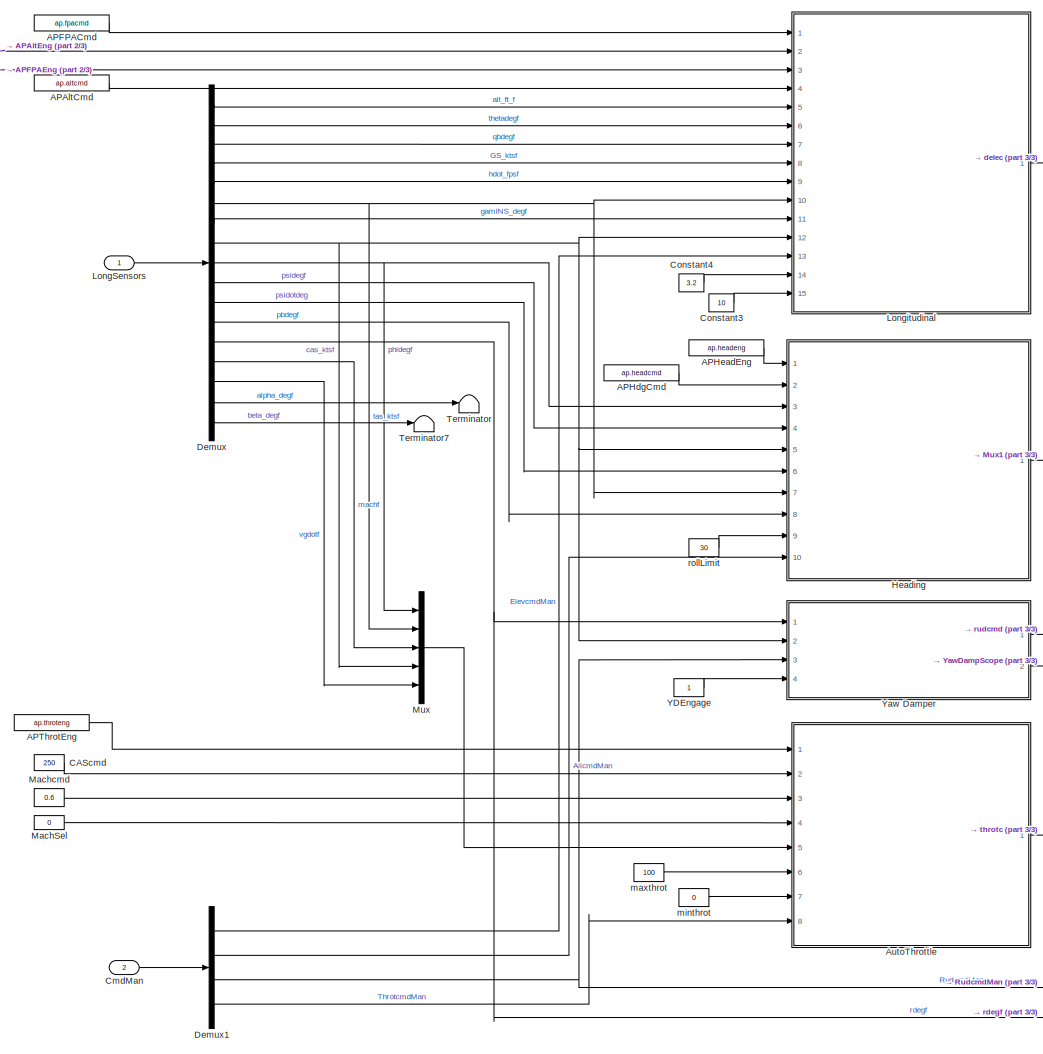
[diagram: root canvas - part 1/3, center side, full height]
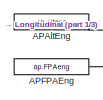
[diagram: root canvas - part 2/3, top left region]
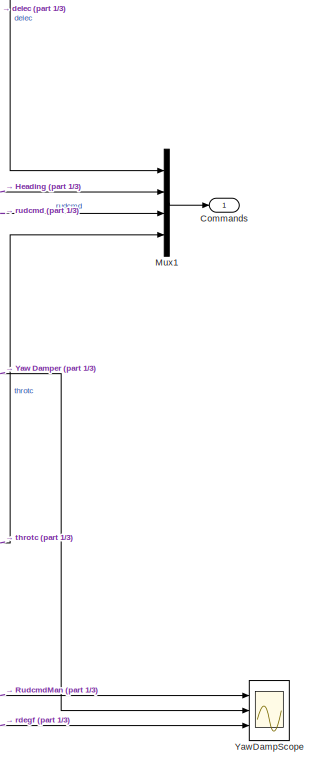
[diagram: root canvas - part 3/3, middle right region]
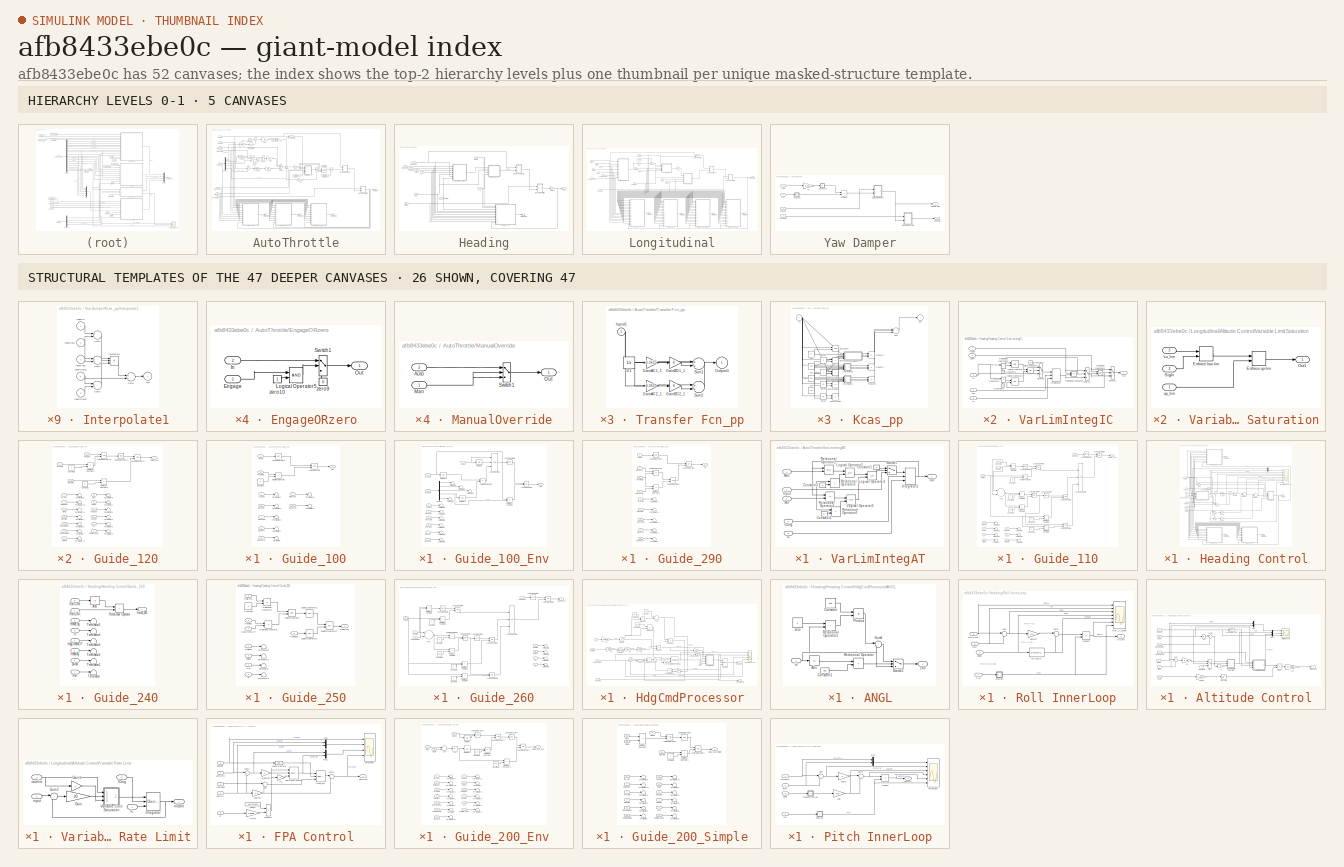
[diagram: thumbnail index - top-2 hierarchy levels (5 canvases) + 26 structural-template representatives of the remaining 47 canvases]
MODEL slx_afb8433ebe0c
KIND model
CONFIG AbsTol = auto
CONFIG FixedStep = auto
CONFIG MaxStep = auto
CONFIG MinStep = auto
CONFIG RelTol = 1e-3
CONFIG SampleTimeConstraint = Unconstrained
CONFIG Solver = ode45
CONFIG SolverMode = Auto
CONFIG SolverName = ode45
CONFIG StartTime = 0.0
CONFIG StopTime = 10.0
BLOCK [Constant] APAltCmd
  Value = ap.altcmd
BLOCK [Constant] APAltEng
  OutDataTypeStr = boolean
  Value = ap.alteng
BLOCK [Constant] APFPACmd 
  Value = ap.fpacmd
BLOCK [Constant] APFPAEng
  OutDataTypeStr = boolean
  Value = ap.FPAeng
BLOCK [Constant] APHdgCmd
  Value = ap.headcmd
BLOCK [Constant] APHeadEng
  OutDataTypeStr = boolean
  Value = ap.headeng
BLOCK [Constant] APThrotEng
  OutDataTypeStr = boolean
  Value = ap.throteng
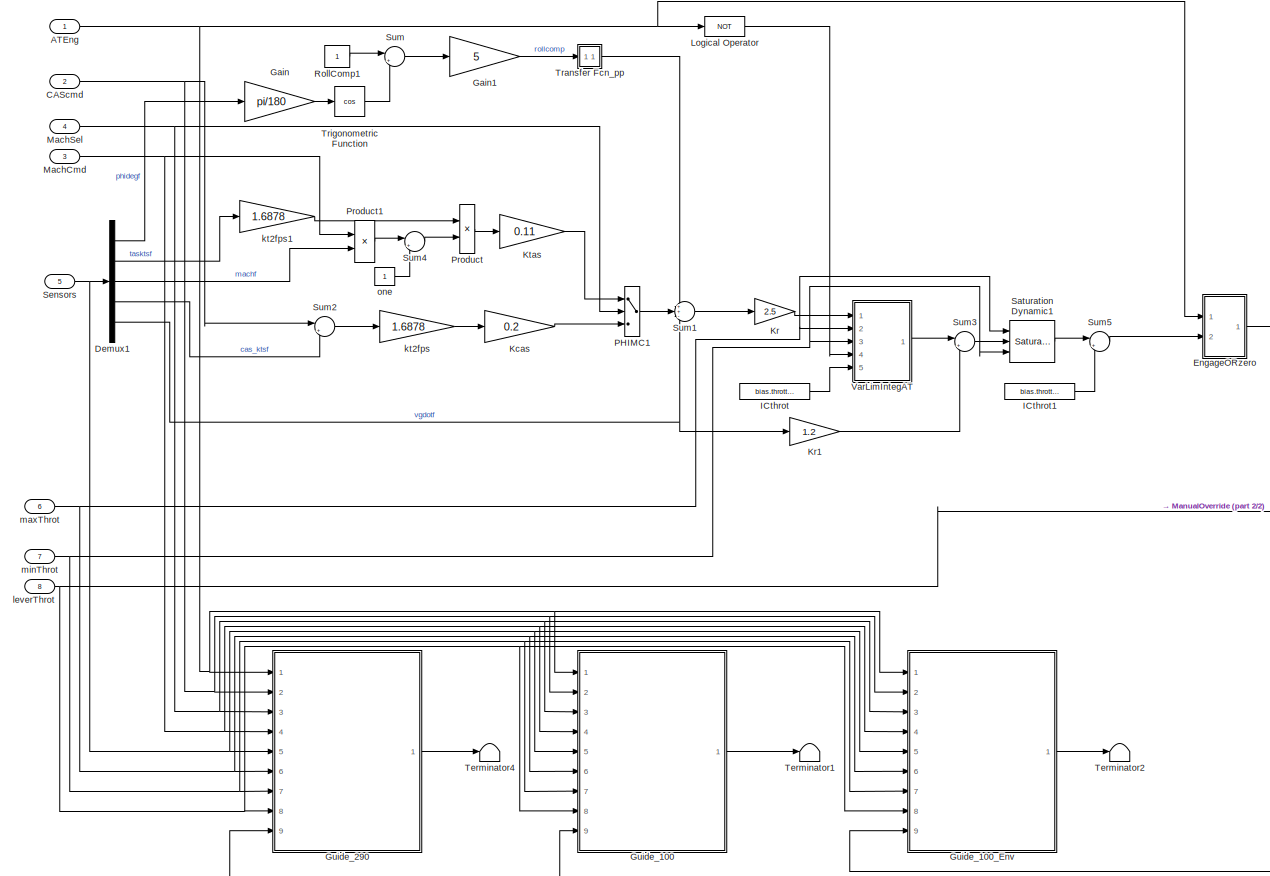
[diagram: AutoThrottle - part 1/2, most of the canvas]
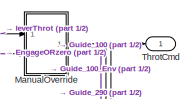
[diagram: AutoThrottle - part 2/2, middle right region]
BLOCK [SubSystem] AutoThrottle
  Ports = [8, 1]
  RequestExecContextInheritance = off
  TreatAsAtomicUnit = on
  Variant = off
BLOCK [Inport] AutoThrottle/ATEng
  IconDisplay = Port number
BLOCK [Inport] AutoThrottle/CAScmd
  IconDisplay = Port number
  Port = 2
BLOCK [Demux] AutoThrottle/Demux1
  DisplayOption = bar
  Outputs = 5
  Ports = [1, 5]
BLOCK [SubSystem] AutoThrottle/EngageORzero
  Ports = [2, 1]
  RequestExecContextInheritance = off
  Variant = off
BLOCK [Inport] AutoThrottle/EngageORzero/Engage
  IconDisplay = Port number
BLOCK [Inport] AutoThrottle/EngageORzero/In
  IconDisplay = Port number
  Port = 2
BLOCK [Logic] AutoThrottle/EngageORzero/Logical Operator5
  AllPortsSameDT = off
  OutDataTypeStr = boolean
  Ports = [2, 1]
BLOCK [Outport] AutoThrottle/EngageORzero/Out
  IconDisplay = Port number
BLOCK [Switch] AutoThrottle/EngageORzero/Switch1
  InputSameDT = off
  SaturateOnIntegerOverflow = off
  Threshold = 0.5
BLOCK [Constant] AutoThrottle/EngageORzero/zero10
BLOCK [Constant] AutoThrottle/EngageORzero/zero9
  Value = 0
BLOCK [Gain] AutoThrottle/Gain
  Gain = pi/180
  OutDataTypeStr = Inherit: Inherit via internal rule
  ParamDataTypeStr = Inherit: Inherit via internal rule
  SaturateOnIntegerOverflow = off
BLOCK [Gain] AutoThrottle/Gain1
  Gain = 5
  OutDataTypeStr = Inherit: Inherit via internal rule
  ParamDataTypeStr = Inherit: Inherit via internal rule
  SaturateOnIntegerOverflow = off
BLOCK [SubSystem] AutoThrottle/Guide_100
  Ports = [9, 1]
  RequestExecContextInheritance = off
  TreatAsAtomicUnit = on
  Variant = off
BLOCK [Inport] AutoThrottle/Guide_100/ATEng
  IconDisplay = Port number
BLOCK [Inport] AutoThrottle/Guide_100/CAScmd
  IconDisplay = Port number
  Port = 2
BLOCK [Constant] AutoThrottle/Guide_100/Constant
  Value = 0
BLOCK [Logic] AutoThrottle/Guide_100/Logical Operator
  AllPortsSameDT = off
  Operator = OR
  OutDataTypeStr = boolean
  Ports = [2, 1]
BLOCK [Logic] AutoThrottle/Guide_100/Logical Operator2
  AllPortsSameDT = off
  Operator = NOT
  OutDataTypeStr = boolean
  Ports = [1, 1]
BLOCK [Inport] AutoThrottle/Guide_100/MachCmd
  IconDisplay = Port number
  Port = 4
BLOCK [Inport] AutoThrottle/Guide_100/MachSel
  IconDisplay = Port number
  Port = 3
BLOCK [Outport] AutoThrottle/Guide_100/Out1
  IconDisplay = Port number
BLOCK [RelationalOperator] AutoThrottle/Guide_100/Relational Operator
  InputSameDT = off
  Operator = ~=
  OutDataTypeStr = boolean
  Ports = [2, 1]
BLOCK [Inport] AutoThrottle/Guide_100/Sensors
  IconDisplay = Port number
  Port = 5
BLOCK [Terminator] AutoThrottle/Guide_100/Terminator
BLOCK [Terminator] AutoThrottle/Guide_100/Terminator1
BLOCK [Terminator] AutoThrottle/Guide_100/Terminator2
BLOCK [Terminator] AutoThrottle/Guide_100/Terminator3
BLOCK [Terminator] AutoThrottle/Guide_100/Terminator4
BLOCK [Terminator] AutoThrottle/Guide_100/Terminator5
BLOCK [Terminator] AutoThrottle/Guide_100/Terminator6
BLOCK [Inport] AutoThrottle/Guide_100/ThrotCmd
  IconDisplay = Port number
  Port = 9
BLOCK [Inport] AutoThrottle/Guide_100/levelThrot
  IconDisplay = Port number
  Port = 8
BLOCK [Inport] AutoThrottle/Guide_100/maxThrot
  IconDisplay = Port number
  Port = 6
BLOCK [Inport] AutoThrottle/Guide_100/minThrot
  IconDisplay = Port number
  Port = 7
BLOCK [SubSystem] AutoThrottle/Guide_100_Env
  Ports = [9, 1]
  RequestExecContextInheritance = off
  TreatAsAtomicUnit = on
  Variant = off
BLOCK [Inport] AutoThrottle/Guide_100_Env/ATEng
  IconDisplay = Port number
BLOCK [Inport] AutoThrottle/Guide_100_Env/CAScmd
  IconDisplay = Port number
  Port = 2
BLOCK [Demux] AutoThrottle/Guide_100_Env/Demux1
  DisplayOption = bar
  Outputs = 5
  Ports = [1, 5]
BLOCK [Logic] AutoThrottle/Guide_100_Env/Logical Operator
  AllPortsSameDT = off
  Inputs = 3
  OutDataTypeStr = boolean
  Ports = [3, 1]
BLOCK [Logic] AutoThrottle/Guide_100_Env/Logical Operator1
  AllPortsSameDT = off
  Operator = NOT
  OutDataTypeStr = boolean
  Ports = [1, 1]
BLOCK [Logic] AutoThrottle/Guide_100_Env/Logical Operator2
  AllPortsSameDT = off
  Operator = OR
  OutDataTypeStr = boolean
  Ports = [2, 1]
BLOCK [Inport] AutoThrottle/Guide_100_Env/MachCmd
  IconDisplay = Port number
  Port = 4
BLOCK [Inport] AutoThrottle/Guide_100_Env/MachSel
  IconDisplay = Port number
  Port = 3
BLOCK [Outport] AutoThrottle/Guide_100_Env/Out1
  IconDisplay = Port number
BLOCK [RelationalOperator] AutoThrottle/Guide_100_Env/Relational Operator
  InputSameDT = off
  Operator = ==
  OutDataTypeStr = boolean
  Ports = [2, 1]
BLOCK [RelationalOperator] AutoThrottle/Guide_100_Env/Relational Operator1
  InputSameDT = off
  Operator = ==
  OutDataTypeStr = boolean
  Ports = [2, 1]
BLOCK [Inport] AutoThrottle/Guide_100_Env/Sensors
  IconDisplay = Port number
  Port = 5
BLOCK [Terminator] AutoThrottle/Guide_100_Env/Terminator
BLOCK [Terminator] AutoThrottle/Guide_100_Env/Terminator1
BLOCK [Terminator] AutoThrottle/Guide_100_Env/Terminator2
BLOCK [Terminator] AutoThrottle/Guide_100_Env/Terminator3
BLOCK [Terminator] AutoThrottle/Guide_100_Env/Terminator4
BLOCK [Terminator] AutoThrottle/Guide_100_Env/Terminator5
BLOCK [Terminator] AutoThrottle/Guide_100_Env/Terminator6
BLOCK [Terminator] AutoThrottle/Guide_100_Env/Terminator7
BLOCK [Terminator] AutoThrottle/Guide_100_Env/Terminator8
BLOCK [Terminator] AutoThrottle/Guide_100_Env/Terminator9
BLOCK [Inport] AutoThrottle/Guide_100_Env/ThrotCmd
  IconDisplay = Port number
  Port = 9
BLOCK [UnitDelay] AutoThrottle/Guide_100_Env/Unit Delay
BLOCK [UnitDelay] AutoThrottle/Guide_100_Env/Unit Delay1
BLOCK [UnitDelay] AutoThrottle/Guide_100_Env/Unit Delay2
BLOCK [Inport] AutoThrottle/Guide_100_Env/levelThrot
  IconDisplay = Port number
  Port = 8
BLOCK [Inport] AutoThrottle/Guide_100_Env/maxThrot
  IconDisplay = Port number
  Port = 6
BLOCK [Inport] AutoThrottle/Guide_100_Env/minThrot
  IconDisplay = Port number
  Port = 7
BLOCK [SubSystem] AutoThrottle/Guide_290
  Ports = [9, 1]
  RequestExecContextInheritance = off
  TreatAsAtomicUnit = on
  Variant = off
BLOCK [Inport] AutoThrottle/Guide_290/ATEng
  IconDisplay = Port number
BLOCK [Inport] AutoThrottle/Guide_290/CAScmd
  IconDisplay = Port number
  Port = 2
BLOCK [Logic] AutoThrottle/Guide_290/Logical Operator
  AllPortsSameDT = off
  Operator = OR
  OutDataTypeStr = boolean
  Ports = [2, 1]
BLOCK [Logic] AutoThrottle/Guide_290/Logical Operator1
  AllPortsSameDT = off
  OutDataTypeStr = boolean
  Ports = [2, 1]
BLOCK [Logic] AutoThrottle/Guide_290/Logical Operator2
  AllPortsSameDT = off
  Operator = NOT
  OutDataTypeStr = boolean
  Ports = [1, 1]
BLOCK [Inport] AutoThrottle/Guide_290/MachCmd
  IconDisplay = Port number
  Port = 4
BLOCK [Inport] AutoThrottle/Guide_290/MachSel
  IconDisplay = Port number
  Port = 3
BLOCK [Outport] AutoThrottle/Guide_290/Out1
  IconDisplay = Port number
BLOCK [RelationalOperator] AutoThrottle/Guide_290/Relational Operator
  InputSameDT = off
  Operator = <=
  OutDataTypeStr = boolean
  Ports = [2, 1]
BLOCK [RelationalOperator] AutoThrottle/Guide_290/Relational Operator1
  InputSameDT = off
  Operator = <=
  OutDataTypeStr = boolean
  Ports = [2, 1]
BLOCK [Inport] AutoThrottle/Guide_290/Sensors
  IconDisplay = Port number
  Port = 5
BLOCK [Terminator] AutoThrottle/Guide_290/Terminator
BLOCK [Terminator] AutoThrottle/Guide_290/Terminator1
BLOCK [Terminator] AutoThrottle/Guide_290/Terminator2
BLOCK [Terminator] AutoThrottle/Guide_290/Terminator3
BLOCK [Terminator] AutoThrottle/Guide_290/Terminator4
BLOCK [Inport] AutoThrottle/Guide_290/ThrotCmd
  IconDisplay = Port number
  Port = 9
BLOCK [Inport] AutoThrottle/Guide_290/levelThrot
  IconDisplay = Port number
  Port = 8
BLOCK [Inport] AutoThrottle/Guide_290/maxThrot
  IconDisplay = Port number
  Port = 6
BLOCK [Inport] AutoThrottle/Guide_290/minThrot
  IconDisplay = Port number
  Port = 7
BLOCK [Constant] AutoThrottle/ICthrot
  SampleTime = -1
  Value = bias.throttle
BLOCK [Constant] AutoThrottle/ICthrot1
  SampleTime = -1
  Value = bias.throttle
BLOCK [Gain] AutoThrottle/Kcas
  Gain = 0.2
  OutDataTypeStr = Inherit: Inherit via internal rule
  ParamDataTypeStr = Inherit: Inherit via internal rule
  SaturateOnIntegerOverflow = off
BLOCK [Gain] AutoThrottle/Kr
  Gain = 2.5
  OutDataTypeStr = Inherit: Inherit via internal rule
  ParamDataTypeStr = Inherit: Inherit via internal rule
  SaturateOnIntegerOverflow = off
BLOCK [Gain] AutoThrottle/Kr1
  Gain = 1.2
  OutDataTypeStr = Inherit: Inherit via internal rule
  ParamDataTypeStr = Inherit: Inherit via internal rule
  SaturateOnIntegerOverflow = off
BLOCK [Gain] AutoThrottle/Ktas
  Gain = 0.11
  OutDataTypeStr = Inherit: Inherit via internal rule
  ParamDataTypeStr = Inherit: Inherit via internal rule
  SaturateOnIntegerOverflow = off
BLOCK [Logic] AutoThrottle/Logical Operator
  AllPortsSameDT = off
  Operator = NOT
  OutDataTypeStr = boolean
  Ports = [1, 1]
BLOCK [Inport] AutoThrottle/MachCmd
  IconDisplay = Port number
  Port = 3
BLOCK [Inport] AutoThrottle/MachSel
  IconDisplay = Port number
  Port = 4
BLOCK [SubSystem] AutoThrottle/ManualOverride
  Ports = [2, 1]
  RequestExecContextInheritance = off
  Variant = off
BLOCK [Inport] AutoThrottle/ManualOverride/Auto
  IconDisplay = Port number
  Port = 2
BLOCK [Inport] AutoThrottle/ManualOverride/Man
  IconDisplay = Port number
BLOCK [Outport] AutoThrottle/ManualOverride/Out
  IconDisplay = Port number
BLOCK [Switch] AutoThrottle/ManualOverride/Switch1
  Criteria = u2 ~= 0
  InputSameDT = off
  SaturateOnIntegerOverflow = off
  Threshold = 0.5
BLOCK [Switch] AutoThrottle/PHIMC1
  InputSameDT = off
  SampleTime = 0.02
  Threshold = 0.5
BLOCK [Product] AutoThrottle/Product
  InputSameDT = off
  OutDataTypeStr = Inherit: Inherit via internal rule
  Ports = [2, 1]
  SaturateOnIntegerOverflow = off
BLOCK [Product] AutoThrottle/Product1
  InputSameDT = off
  Inputs = */
  OutDataTypeStr = Inherit: Inherit via internal rule
  Ports = [2, 1]
  SaturateOnIntegerOverflow = off
BLOCK [Constant] AutoThrottle/RollComp1
  SampleTime = -1
BLOCK [Reference] AutoThrottle/Saturation Dynamic1  REF=simulink/Discontinuities/Saturation
Dynamic
  Ports = [3, 1]
  SourceBlock = simulink/Discontinuities/Saturation\nDynamic
  SourceType = Saturation Dynamic
BLOCK [Inport] AutoThrottle/Sensors
  IconDisplay = Port number
  Port = 5
BLOCK [Sum] AutoThrottle/Sum
  IconShape = round
  InputSameDT = off
  Inputs = |+-
  OutDataTypeStr = Inherit: Inherit via internal rule
  Ports = [2, 1]
  SaturateOnIntegerOverflow = off
BLOCK [Sum] AutoThrottle/Sum1
  IconShape = round
  InputSameDT = off
  Inputs = ++-
  OutDataTypeStr = Inherit: Inherit via internal rule
  Ports = [3, 1]
  SaturateOnIntegerOverflow = off
BLOCK [Sum] AutoThrottle/Sum2
  IconShape = round
  InputSameDT = off
  Inputs = |+-
  OutDataTypeStr = Inherit: Inherit via internal rule
  Ports = [2, 1]
  SaturateOnIntegerOverflow = off
BLOCK [Sum] AutoThrottle/Sum3
  IconShape = round
  InputSameDT = off
  Inputs = |+-
  OutDataTypeStr = Inherit: Inherit via internal rule
  Ports = [2, 1]
  SaturateOnIntegerOverflow = off
BLOCK [Sum] AutoThrottle/Sum4
  IconShape = round
  InputSameDT = off
  Inputs = |+-
  OutDataTypeStr = Inherit: Inherit via internal rule
  Ports = [2, 1]
  SaturateOnIntegerOverflow = off
BLOCK [Sum] AutoThrottle/Sum5
  IconShape = round
  InputSameDT = off
  Inputs = |+-
  OutDataTypeStr = Inherit: Inherit via internal rule
  Ports = [2, 1]
  SaturateOnIntegerOverflow = off
BLOCK [Terminator] AutoThrottle/Terminator1
BLOCK [Terminator] AutoThrottle/Terminator2
BLOCK [Terminator] AutoThrottle/Terminator4
BLOCK [Outport] AutoThrottle/ThrotCmd
  IconDisplay = Port number
BLOCK [SubSystem] AutoThrottle/Transfer Fcn_pp
  Ports = [1, 1]
  RequestExecContextInheritance = off
  TreatAsAtomicUnit = on
  Variant = off
BLOCK [UnitDelay] AutoThrottle/Transfer Fcn_pp/D1
  SampleTime = -1
BLOCK [Gain] AutoThrottle/Transfer Fcn_pp/GainAC1_1
  Gain = -0.0625
BLOCK [Gain] AutoThrottle/Transfer Fcn_pp/GainAC2_1
  Gain = -0.0625
BLOCK [Gain] AutoThrottle/Transfer Fcn_pp/GainBD1_1
BLOCK [Gain] AutoThrottle/Transfer Fcn_pp/GainBD2_1
BLOCK [Inport] AutoThrottle/Transfer Fcn_pp/Inport1
  IconDisplay = Port number
BLOCK [Outport] AutoThrottle/Transfer Fcn_pp/Outport1
  IconDisplay = Port number
BLOCK [Sum] AutoThrottle/Transfer Fcn_pp/Sum1
  Ports = [2, 1]
BLOCK [Sum] AutoThrottle/Transfer Fcn_pp/Sum2
  Ports = [2, 1]
BLOCK [Trigonometry] AutoThrottle/Trigonometric Function
  Operator = cos
  Ports = [1, 1]
BLOCK [SubSystem] AutoThrottle/VarLimIntegAT
  Ports = [5, 1]
  RequestExecContextInheritance = off
  TreatAsAtomicUnit = on
  Variant = off
BLOCK [Constant] AutoThrottle/VarLimIntegAT/Constant1
  SampleTime = -1
  Value = 0
BLOCK [Constant] AutoThrottle/VarLimIntegAT/Constant2
  SampleTime = -1
  Value = 0
BLOCK [Constant] AutoThrottle/VarLimIntegAT/Constant3
  SampleTime = -1
  Value = 0
BLOCK [Inport] AutoThrottle/VarLimIntegAT/IC
  IconDisplay = Port number
  Port = 5
BLOCK [Inport] AutoThrottle/VarLimIntegAT/ICtrig
  IconDisplay = Port number
  Port = 4
BLOCK [Inport] AutoThrottle/VarLimIntegAT/Input
  IconDisplay = Port number
BLOCK [DiscreteIntegrator] AutoThrottle/VarLimIntegAT/Integrator1
  ExternalReset = level
  ICPrevOutput = DiscIntNeverNeededParam
  ICPrevScaledInput = DiscIntNeverNeededParam
  InitialConditionSource = external
  Ports = [3, 1]
  SampleTime = 1.0
BLOCK [Logic] AutoThrottle/VarLimIntegAT/Logical Operator1
  Operator = OR
  Ports = [2, 1]
BLOCK [Logic] AutoThrottle/VarLimIntegAT/Logical Operator2
  Ports = [2, 1]
BLOCK [Logic] AutoThrottle/VarLimIntegAT/Logical Operator3
  Ports = [2, 1]
BLOCK [Inport] AutoThrottle/VarLimIntegAT/Max
  IconDisplay = Port number
  Port = 2
BLOCK [Inport] AutoThrottle/VarLimIntegAT/Min
  IconDisplay = Port number
  Port = 3
BLOCK [Outport] AutoThrottle/VarLimIntegAT/Out
  IconDisplay = Port number
BLOCK [RelationalOperator] AutoThrottle/VarLimIntegAT/Relational Operator1
  Operator = <=
  Ports = [2, 1]
BLOCK [RelationalOperator] AutoThrottle/VarLimIntegAT/Relational Operator2
  Ports = [2, 1]
BLOCK [RelationalOperator] AutoThrottle/VarLimIntegAT/Relational Operator3
  Operator = >
  Ports = [2, 1]
BLOCK [RelationalOperator] AutoThrottle/VarLimIntegAT/Relational Operator4
  Operator = <
  Ports = [2, 1]
BLOCK [Switch] AutoThrottle/VarLimIntegAT/Switch1
  Threshold = 0.1
BLOCK [Gain] AutoThrottle/kt2fps
  Gain = 1.6878
  OutDataTypeStr = Inherit: Inherit via internal rule
  ParamDataTypeStr = Inherit: Inherit via internal rule
  SaturateOnIntegerOverflow = off
BLOCK [Gain] AutoThrottle/kt2fps1
  Gain = 1.6878
  OutDataTypeStr = Inherit: Inherit via internal rule
  ParamDataTypeStr = Inherit: Inherit via internal rule
  SaturateOnIntegerOverflow = off
BLOCK [Inport] AutoThrottle/leverThrot
  IconDisplay = Port number
  Port = 8
BLOCK [Inport] AutoThrottle/maxThrot
  IconDisplay = Port number
  Port = 6
BLOCK [Inport] AutoThrottle/minThrot
  IconDisplay = Port number
  Port = 7
BLOCK [Constant] AutoThrottle/one
  SampleTime = -1
BLOCK [Constant] CAScmd
  Value = 250
BLOCK [Inport] CmdMan
  IconDisplay = Port number
  Port = 2
  PortDimensions = 9
BLOCK [Outport] Commands
  IconDisplay = Port number
BLOCK [Constant] Constant3
  Value = 10
BLOCK [Constant] Constant4
  Value = 3.2
BLOCK [Demux] Demux
  DisplayOption = bar
  Outputs = 17
  Ports = [1, 17]
BLOCK [Demux] Demux1
  DisplayOption = bar
  Ports = [1, 4]
BLOCK [SubSystem] Heading
  Ports = [10, 1]
  RequestExecContextInheritance = off
  TreatAsAtomicUnit = on
  Variant = off
BLOCK [Outport] Heading/AilCmd
  IconDisplay = Port number
BLOCK [Inport] Heading/AilStick
  IconDisplay = Port number
  Port = 10
BLOCK [Inport] Heading/CAS
  IconDisplay = Port number
  Port = 5
BLOCK [SubSystem] Heading/EngageORzero
  Ports = [2, 1]
  RequestExecContextInheritance = off
  Variant = off
BLOCK [Inport] Heading/EngageORzero/Engage
  IconDisplay = Port number
BLOCK [Inport] Heading/EngageORzero/In
  IconDisplay = Port number
  Port = 2
BLOCK [Logic] Heading/EngageORzero/Logical Operator5
  AllPortsSameDT = off
  OutDataTypeStr = boolean
  Ports = [2, 1]
BLOCK [Outport] Heading/EngageORzero/Out
  IconDisplay = Port number
BLOCK [Switch] Heading/EngageORzero/Switch1
  InputSameDT = off
  SaturateOnIntegerOverflow = off
  Threshold = 0.5
BLOCK [Constant] Heading/EngageORzero/zero10
BLOCK [Constant] Heading/EngageORzero/zero9
  Value = 0
BLOCK [Gain] Heading/Gain1
  Gain = -1
BLOCK [SubSystem] Heading/Guide_110
  Ports = [11, 1]
  RequestExecContextInheritance = off
  TreatAsAtomicUnit = on
  Variant = off
BLOCK [Inport] Heading/Guide_110/AilCmd
  IconDisplay = Port number
  Port = 11
BLOCK [Inport] Heading/Guide_110/AilStick
  IconDisplay = Port number
  Port = 10
BLOCK [Inport] Heading/Guide_110/CAS
  IconDisplay = Port number
  Port = 2
BLOCK [Constant] Heading/Guide_110/Constant
  Value = 0
BLOCK [Constant] Heading/Guide_110/Constant1
  Value = 0
BLOCK [Constant] Heading/Guide_110/Constant2
  Value = 0
BLOCK [Constant] Heading/Guide_110/Constant3
  Value = 0
BLOCK [Constant] Heading/Guide_110/Constant4
  Value = 180
BLOCK [Outport] Heading/Guide_110/Guide_110
  IconDisplay = Port number
BLOCK [Inport] Heading/Guide_110/HeadCmd
  IconDisplay = Port number
  Port = 6
BLOCK [Inport] Heading/Guide_110/HeadEng
  IconDisplay = Port number
  Port = 5
BLOCK [Inport] Heading/Guide_110/Heading
  IconDisplay = Port number
  Port = 7
BLOCK [Logic] Heading/Guide_110/Logical Operator1
  AllPortsSameDT = off
  Operator = NOT
  OutDataTypeStr = boolean
  Ports = [1, 1]
BLOCK [Logic] Heading/Guide_110/Logical Operator2
  AllPortsSameDT = off
  Operator = OR
  OutDataTypeStr = boolean
  Ports = [2, 1]
BLOCK [Logic] Heading/Guide_110/Logical Operator3
  AllPortsSameDT = off
  Inputs = 3
  OutDataTypeStr = boolean
  Ports = [3, 1]
BLOCK [Logic] Heading/Guide_110/Logical Operator4
  AllPortsSameDT = off
  Operator = NOT
  OutDataTypeStr = boolean
  Ports = [1, 1]
BLOCK [Logic] Heading/Guide_110/Logical Operator5
  AllPortsSameDT = off
  Operator = OR
  OutDataTypeStr = boolean
  Ports = [2, 1]
BLOCK [Logic] Heading/Guide_110/Logical Operator6
  AllPortsSameDT = off
  Operator = OR
  OutDataTypeStr = boolean
  Ports = [2, 1]
BLOCK [Logic] Heading/Guide_110/Logical Operator7
  AllPortsSameDT = off
  Operator = NOT
  OutDataTypeStr = boolean
  Ports = [1, 1]
BLOCK [Logic] Heading/Guide_110/Logical Operator8
  AllPortsSameDT = off
  Operator = OR
  OutDataTypeStr = boolean
  Ports = [2, 1]
BLOCK [Logic] Heading/Guide_110/Logical Operator9
  AllPortsSameDT = off
  Operator = OR
  OutDataTypeStr = boolean
  Ports = [2, 1]
BLOCK [RelationalOperator] Heading/Guide_110/Relational Operator
  InputSameDT = off
  Operator = ==
  OutDataTypeStr = boolean
  Ports = [2, 1]
BLOCK [RelationalOperator] Heading/Guide_110/Relational Operator1
  InputSameDT = off
  Operator = >
  OutDataTypeStr = boolean
  Ports = [2, 1]
BLOCK [RelationalOperator] Heading/Guide_110/Relational Operator2
  InputSameDT = off
  Operator = <
  OutDataTypeStr = boolean
  Ports = [2, 1]
BLOCK [RelationalOperator] Heading/Guide_110/Relational Operator3
  InputSameDT = off
  Operator = ==
  OutDataTypeStr = boolean
  Ports = [2, 1]
BLOCK [RelationalOperator] Heading/Guide_110/Relational Operator4
  InputSameDT = off
  Operator = <
  OutDataTypeStr = boolean
  Ports = [2, 1]
BLOCK [RelationalOperator] Heading/Guide_110/Relational Operator5
  InputSameDT = off
  Operator = >
  OutDataTypeStr = boolean
  Ports = [2, 1]
BLOCK [Inport] Heading/Guide_110/RollLimit
  IconDisplay = Port number
  Port = 3
BLOCK [Sum] Heading/Guide_110/Sum
  InputSameDT = off
  Inputs = +-
  OutDataTypeStr = Inherit: Inherit via internal rule
  Ports = [2, 1]
  SaturateOnIntegerOverflow = off
BLOCK [Terminator] Heading/Guide_110/Terminator
BLOCK [Terminator] Heading/Guide_110/Terminator1
BLOCK [Terminator] Heading/Guide_110/Terminator2
BLOCK [Terminator] Heading/Guide_110/Terminator3
BLOCK [Terminator] Heading/Guide_110/Terminator4
BLOCK [Terminator] Heading/Guide_110/Terminator5
BLOCK [Terminator] Heading/Guide_110/Terminator6
BLOCK [Inport] Heading/Guide_110/Vt
  IconDisplay = Port number
  Port = 9
BLOCK [Inport] Heading/Guide_110/pbdegf
  IconDisplay = Port number
BLOCK [Inport] Heading/Guide_110/phidegf
  IconDisplay = Port number
  Port = 4
BLOCK [Inport] Heading/Guide_110/psidot
  IconDisplay = Port number
  Port = 8
BLOCK [Inport] Heading/HeadCmd
  IconDisplay = Port number
  Port = 2
BLOCK [Inport] Heading/HeadEng
  IconDisplay = Port number
BLOCK [Inport] Heading/Heading
  IconDisplay = Port number
  Port = 4
BLOCK [SubSystem] Heading/Heading Control
  Ports = [7, 1]
  RequestExecContextInheritance = off
  TreatAsAtomicUnit = on
  Variant = off
BLOCK [SubSystem] Heading/Heading Control/Guide_240
  Ports = [8, 1]
  RequestExecContextInheritance = off
  TreatAsAtomicUnit = on
  Variant = off
BLOCK [Abs] Heading/Heading Control/Guide_240/Abs
  SaturateOnIntegerOverflow = off
BLOCK [Outport] Heading/Heading Control/Guide_240/Guide_240
  IconDisplay = Port number
BLOCK [Inport] Heading/Heading Control/Guide_240/HdgCmdMCP
  IconDisplay = Port number
  Port = 4
BLOCK [Inport] Heading/Heading Control/Guide_240/HeadEng
  IconDisplay = Port number
  Port = 2
BLOCK [Inport] Heading/Heading Control/Guide_240/Heading
  IconDisplay = Port number
  Port = 5
BLOCK [RelationalOperator] Heading/Heading Control/Guide_240/Relational Operator
  InputSameDT = off
  Operator = <
  OutDataTypeStr = boolean
  Ports = [2, 1]
BLOCK [Inport] Heading/Heading Control/Guide_240/Roll
  IconDisplay = Port number
  Port = 7
BLOCK [Inport] Heading/Heading Control/Guide_240/RollCmd
  IconDisplay = Port number
  Port = 8
BLOCK [Inport] Heading/Heading Control/Guide_240/RollLimit
  IconDisplay = Port number
BLOCK [Terminator] Heading/Heading Control/Guide_240/Terminator
BLOCK [Terminator] Heading/Heading Control/Guide_240/Terminator1
BLOCK [Terminator] Heading/Heading Control/Guide_240/Terminator2
BLOCK [Terminator] Heading/Heading Control/Guide_240/Terminator3
BLOCK [Terminator] Heading/Heading Control/Guide_240/Terminator4
BLOCK [Terminator] Heading/Heading Control/Guide_240/Terminator5
BLOCK [Inport] Heading/Heading Control/Guide_240/Vt
  IconDisplay = Port number
  Port = 3
BLOCK [Inport] Heading/Heading Control/Guide_240/psidot
  IconDisplay = Port number
  Port = 6
BLOCK [SubSystem] Heading/Heading Control/Guide_250
  Ports = [8, 1]
  RequestExecContextInheritance = off
  TreatAsAtomicUnit = on
  Variant = off
BLOCK [Constant] Heading/Heading Control/Guide_250/Constant
  Value = 0
BLOCK [Outport] Heading/Heading Control/Guide_250/Guide_250
  IconDisplay = Port number
BLOCK [Inport] Heading/Heading Control/Guide_250/HdgCmdMCP
  IconDisplay = Port number
  Port = 4
BLOCK [Inport] Heading/Heading Control/Guide_250/HeadEng
  IconDisplay = Port number
  Port = 2
BLOCK [Inport] Heading/Heading Control/Guide_250/Heading
  IconDisplay = Port number
  Port = 5
BLOCK [Logic] Heading/Heading Control/Guide_250/Logical Operator
  AllPortsSameDT = off
  Operator = XOR
  OutDataTypeStr = boolean
  Ports = [2, 1]
BLOCK [Logic] Heading/Heading Control/Guide_250/Logical Operator1
  AllPortsSameDT = off
  Operator = NOT
  OutDataTypeStr = boolean
  Ports = [1, 1]
BLOCK [Logic] Heading/Heading Control/Guide_250/Logical Operator2
  AllPortsSameDT = off
  Operator = OR
  OutDataTypeStr = boolean
  Ports = [2, 1]
BLOCK [Logic] Heading/Heading Control/Guide_250/Logical Operator3
  AllPortsSameDT = off
  Operator = NOT
  OutDataTypeStr = boolean
  Ports = [1, 1]
BLOCK [RelationalOperator] Heading/Heading Control/Guide_250/Relational Operator
  InputSameDT = off
  Operator = ==
  OutDataTypeStr = boolean
  Ports = [2, 1]
BLOCK [RelationalOperator] Heading/Heading Control/Guide_250/Relational Operator2
  InputSameDT = off
  Operator = ==
  OutDataTypeStr = boolean
  Ports = [2, 1]
BLOCK [Inport] Heading/Heading Control/Guide_250/Roll
  IconDisplay = Port number
  Port = 7
BLOCK [Inport] Heading/Heading Control/Guide_250/RollCmd
  IconDisplay = Port number
  Port = 8
BLOCK [Inport] Heading/Heading Control/Guide_250/RollLimit
  IconDisplay = Port number
BLOCK [Terminator] Heading/Heading Control/Guide_250/Terminator
BLOCK [Terminator] Heading/Heading Control/Guide_250/Terminator1
BLOCK [Terminator] Heading/Heading Control/Guide_250/Terminator2
BLOCK [Terminator] Heading/Heading Control/Guide_250/Terminator4
BLOCK [Inport] Heading/Heading Control/Guide_250/Vt
  IconDisplay = Port number
  Port = 3
BLOCK [Inport] Heading/Heading Control/Guide_250/psidot
  IconDisplay = Port number
  Port = 6
BLOCK [SubSystem] Heading/Heading Control/Guide_260
  Ports = [8, 1]
  RequestExecContextInheritance = off
  TreatAsAtomicUnit = on
  Variant = off
BLOCK [Constant] Heading/Heading Control/Guide_260/Constant
  Value = 0
BLOCK [Constant] Heading/Heading Control/Guide_260/Constant1
  Value = 180
BLOCK [Constant] Heading/Heading Control/Guide_260/Constant2
  Value = 0
BLOCK [Constant] Heading/Heading Control/Guide_260/Constant3
  Value = 0
BLOCK [Constant] Heading/Heading Control/Guide_260/Constant4
  Value = 0
BLOCK [Outport] Heading/Heading Control/Guide_260/Guide_260
  IconDisplay = Port number
BLOCK [Inport] Heading/Heading Control/Guide_260/HdgCmdMCP
  IconDisplay = Port number
  Port = 4
BLOCK [Inport] Heading/Heading Control/Guide_260/HeadEng
  IconDisplay = Port number
  Port = 2
BLOCK [Inport] Heading/Heading Control/Guide_260/Heading
  IconDisplay = Port number
  Port = 5
BLOCK [Logic] Heading/Heading Control/Guide_260/Logical Operator
  AllPortsSameDT = off
  Operator = OR
  OutDataTypeStr = boolean
  Ports = [2, 1]
BLOCK [Logic] Heading/Heading Control/Guide_260/Logical Operator1
  AllPortsSameDT = off
  Operator = NOT
  OutDataTypeStr = boolean
  Ports = [1, 1]
BLOCK [Logic] Heading/Heading Control/Guide_260/Logical Operator2
  AllPortsSameDT = off
  Operator = OR
  OutDataTypeStr = boolean
  Ports = [2, 1]
BLOCK [Logic] Heading/Heading Control/Guide_260/Logical Operator3
  AllPortsSameDT = off
  Operator = NOT
  OutDataTypeStr = boolean
  Ports = [1, 1]
BLOCK [Logic] Heading/Heading Control/Guide_260/Logical Operator4
  AllPortsSameDT = off
  Operator = OR
  OutDataTypeStr = boolean
  Ports = [2, 1]
BLOCK [Logic] Heading/Heading Control/Guide_260/Logical Operator5
  AllPortsSameDT = off
  Inputs = 3
  OutDataTypeStr = boolean
  Ports = [3, 1]
BLOCK [Logic] Heading/Heading Control/Guide_260/Logical Operator6
  AllPortsSameDT = off
  Operator = NOT
  OutDataTypeStr = boolean
  Ports = [1, 1]
BLOCK [Logic] Heading/Heading Control/Guide_260/Logical Operator7
  AllPortsSameDT = off
  Operator = OR
  OutDataTypeStr = boolean
  Ports = [2, 1]
BLOCK [Logic] Heading/Heading Control/Guide_260/Logical Operator8
  AllPortsSameDT = off
  Operator = OR
  OutDataTypeStr = boolean
  Ports = [2, 1]
BLOCK [RelationalOperator] Heading/Heading Control/Guide_260/Relational Operator
  InputSameDT = off
  Operator = <
  OutDataTypeStr = boolean
  Ports = [2, 1]
BLOCK [RelationalOperator] Heading/Heading Control/Guide_260/Relational Operator1
  InputSameDT = off
  Operator = >
  OutDataTypeStr = boolean
  Ports = [2, 1]
BLOCK [RelationalOperator] Heading/Heading Control/Guide_260/Relational Operator2
  InputSameDT = off
  Operator = ==
  OutDataTypeStr = boolean
  Ports = [2, 1]
BLOCK [RelationalOperator] Heading/Heading Control/Guide_260/Relational Operator3
  InputSameDT = off
  Operator = ==
  OutDataTypeStr = boolean
  Ports = [2, 1]
BLOCK [RelationalOperator] Heading/Heading Control/Guide_260/Relational Operator4
  InputSameDT = off
  Operator = >
  OutDataTypeStr = boolean
  Ports = [2, 1]
BLOCK [RelationalOperator] Heading/Heading Control/Guide_260/Relational Operator5
  InputSameDT = off
  Operator = <
  OutDataTypeStr = boolean
  Ports = [2, 1]
BLOCK [Inport] Heading/Heading Control/Guide_260/Roll
  IconDisplay = Port number
  Port = 7
BLOCK [Inport] Heading/Heading Control/Guide_260/RollCmd
  IconDisplay = Port number
  Port = 8
BLOCK [Inport] Heading/Heading Control/Guide_260/RollLimit
  IconDisplay = Port number
BLOCK [Sum] Heading/Heading Control/Guide_260/Sum
  InputSameDT = off
  Inputs = +-
  OutDataTypeStr = Inherit: Inherit via internal rule
  Ports = [2, 1]
  SaturateOnIntegerOverflow = off
BLOCK [Terminator] Heading/Heading Control/Guide_260/Terminator
BLOCK [Terminator] Heading/Heading Control/Guide_260/Terminator1
BLOCK [Terminator] Heading/Heading Control/Guide_260/Terminator2
BLOCK [Terminator] Heading/Heading Control/Guide_260/Terminator4
BLOCK [Inport] Heading/Heading Control/Guide_260/Vt
  IconDisplay = Port number
  Port = 3
BLOCK [Inport] Heading/Heading Control/Guide_260/psidot
  IconDisplay = Port number
  Port = 6
BLOCK [Inport] Heading/Heading Control/HdgCmdMCP
  IconDisplay = Port number
BLOCK [SubSystem] Heading/Heading Control/HdgCmdProcessor
  Ports = [4, 2]
  RequestExecContextInheritance = off
  Variant = off
BLOCK [Product] Heading/Heading Control/HdgCmdProcessor/2zetaOmega
  InputSameDT = off
  OutDataTypeStr = Inherit: Inherit via internal rule
  Ports = [2, 1]
  SaturateOnIntegerOverflow = off
BLOCK [SubSystem] Heading/Heading Control/HdgCmdProcessor/ANGL
  Ports = [1, 1]
  RequestExecContextInheritance = off
  Variant = off
BLOCK [Outport] Heading/Heading Control/HdgCmdProcessor/ANGL/180
  IconDisplay = Port number
BLOCK [Abs] Heading/Heading Control/HdgCmdProcessor/ANGL/Abs
  SaturateOnIntegerOverflow = off
BLOCK [Constant] Heading/Heading Control/HdgCmdProcessor/ANGL/Constant
  Value = 360
BLOCK [Constant] Heading/Heading Control/HdgCmdProcessor/ANGL/Constant1
  Value = 180
BLOCK [Product] Heading/Heading Control/HdgCmdProcessor/ANGL/Product
  InputSameDT = off
  OutDataTypeStr = Inherit: Inherit via internal rule
  Ports = [2, 1]
  SaturateOnIntegerOverflow = off
BLOCK [RelationalOperator] Heading/Heading Control/HdgCmdProcessor/ANGL/Relational Operator
  InputSameDT = off
  Operator = >
  Ports = [2, 1]
BLOCK [RelationalOperator] Heading/Heading Control/HdgCmdProcessor/ANGL/Relational Operator1
  InputSameDT = off
  Operator = <
  OutDataTypeStr = boolean
  Ports = [2, 1]
BLOCK [Sum] Heading/Heading Control/HdgCmdProcessor/ANGL/Sum6
  IconShape = round
  InputSameDT = off
  Inputs = |-+
  OutDataTypeStr = Inherit: Inherit via internal rule
  Ports = [2, 1]
BLOCK [Switch] Heading/Heading Control/HdgCmdProcessor/ANGL/Switch1
  InputSameDT = off
  Threshold = 0.1
BLOCK [Inport] Heading/Heading Control/HdgCmdProcessor/ANGL/in
  IconDisplay = Port number
BLOCK [Constant] Heading/Heading Control/HdgCmdProcessor/ANGL/zero
  Value = 0
BLOCK [Constant] Heading/Heading Control/HdgCmdProcessor/Constant
  Value = 1.6
BLOCK [Constant] Heading/Heading Control/HdgCmdProcessor/Constant1
  Value = 0.0
BLOCK [Constant] Heading/Heading Control/HdgCmdProcessor/Constant2
  Value = 514.8
BLOCK [Outport] Heading/Heading Control/HdgCmdProcessor/HdgCmd
  IconDisplay = Port number
BLOCK [Inport] Heading/Heading Control/HdgCmdProcessor/HdgCmdMCP
  IconDisplay = Port number
  Port = 2
BLOCK [Scope] Heading/Heading Control/HdgCmdProcessor/HdgCmdScope
  NumInputPorts = 4
  Ports = [4]
  ScopeSpecificationString = C++SS(StrPVP('Location','[661, 662, 1361, 1168]'),StrPVP('Open','off'),MxPVP('AxesTitles',24,'struct(''axes1'',''%<SignalLabel>'',''axes2'',''%<SignalLabel>'',''axes3'',''%<SignalLabel>'',''axes4'',''%<SignalLabel>'')'),StrPVP('ShowLegends','off'),StrPVP('YMin','-2~-4~-40~-40'),StrPVP('YMax','2~4~40~40'),StrPVP('SaveName','ScopeData6'),StrPVP('DataFormat','StructureWithTime'),StrPVP('LimitDataPoin...<+136ch>
BLOCK [Outport] Heading/Heading Control/HdgCmdProcessor/HdgRteCmd
  IconDisplay = Port number
  Port = 2
BLOCK [Inport] Heading/Heading Control/HdgCmdProcessor/Heading
  IconDisplay = Port number
  Port = 3
BLOCK [DiscreteIntegrator] Heading/Heading Control/HdgCmdProcessor/Integrator1
  ExternalReset = level
  ICPrevOutput = DiscIntNeverNeededParam
  ICPrevScaledInput = DiscIntNeverNeededParam
  InitialConditionSource = external
  Ports = [3, 1]
  SampleTime = 1.0
BLOCK [Logic] Heading/Heading Control/HdgCmdProcessor/Logical Operator
  AllPortsSameDT = off
  Operator = NOT
  OutDataTypeStr = boolean
  Ports = [1, 1]
BLOCK [Product] Heading/Heading Control/HdgCmdProcessor/Product1
  InputSameDT = off
  OutDataTypeStr = Inherit: Inherit via internal rule
  Ports = [2, 1]
  SaturateOnIntegerOverflow = off
BLOCK [Product] Heading/Heading Control/HdgCmdProcessor/Product2
  InputSameDT = off
  Inputs = */
  OutDataTypeStr = Inherit: Inherit via internal rule
  Ports = [2, 1]
  SaturateOnIntegerOverflow = off
BLOCK [Product] Heading/Heading Control/HdgCmdProcessor/Product3
  InputSameDT = off
  Inputs = /*
  OutDataTypeStr = Inherit: Inherit via internal rule
  Ports = [2, 1]
  SaturateOnIntegerOverflow = off
BLOCK [Inport] Heading/Heading Control/HdgCmdProcessor/RollLimit
  IconDisplay = Port number
  Port = 4
BLOCK [Saturate] Heading/Heading Control/HdgCmdProcessor/Saturation
  InputPortMap = u0
  LowerLimit = 0.0001
  Ports = [1, 1]
  UpperLimit = 1000
BLOCK [Reference] Heading/Heading Control/HdgCmdProcessor/Saturation Dynamic1  REF=simulink/Discontinuities/Saturation
Dynamic
  Ports = [3, 1]
  SourceBlock = simulink/Discontinuities/Saturation\nDynamic
  SourceType = Saturation Dynamic
BLOCK [Sum] Heading/Heading Control/HdgCmdProcessor/Sum
  InputSameDT = off
  Inputs = +-
  OutDataTypeStr = Inherit: Inherit via internal rule
  Ports = [2, 1]
  SaturateOnIntegerOverflow = off
BLOCK [Sum] Heading/Heading Control/HdgCmdProcessor/Sum2
  IconShape = round
  InputSameDT = off
  Inputs = |+-
  OutDataTypeStr = Inherit: Inherit via internal rule
  Ports = [2, 1]
  SaturateOnIntegerOverflow = off
BLOCK [Sum] Heading/Heading Control/HdgCmdProcessor/Sum3
  IconShape = round
  InputSameDT = off
  Inputs = |+-
  OutDataTypeStr = Inherit: Inherit via internal rule
  Ports = [2, 1]
  SaturateOnIntegerOverflow = off
BLOCK [Trigonometry] Heading/Heading Control/HdgCmdProcessor/Trigonometric Function
  Operator = tan
  Ports = [1, 1]
BLOCK [SubSystem] Heading/Heading Control/HdgCmdProcessor/VarLimIntegIC
  Ports = [5, 1]
  RequestExecContextInheritance = off
  Variant = off
BLOCK [Constant] Heading/Heading Control/HdgCmdProcessor/VarLimIntegIC/Constant1
  Value = 0
BLOCK [Constant] Heading/Heading Control/HdgCmdProcessor/VarLimIntegIC/Constant2
  Value = 0
BLOCK [Constant] Heading/Heading Control/HdgCmdProcessor/VarLimIntegIC/Constant3
  Value = 0
BLOCK [Inport] Heading/Heading Control/HdgCmdProcessor/VarLimIntegIC/IC
  IconDisplay = Port number
  Port = 5
BLOCK [Inport] Heading/Heading Control/HdgCmdProcessor/VarLimIntegIC/In
  IconDisplay = Port number
  Port = 3
BLOCK [DiscreteIntegrator] Heading/Heading Control/HdgCmdProcessor/VarLimIntegIC/Integrator
  ExternalReset = level
  ICPrevOutput = DiscIntNeverNeededParam
  ICPrevScaledInput = DiscIntNeverNeededParam
  InitialConditionSource = external
  Ports = [3, 1]
  SampleTime = 1.0
BLOCK [Inport] Heading/Heading Control/HdgCmdProcessor/VarLimIntegIC/LoLim
  IconDisplay = Port number
  Port = 2
BLOCK [Logic] Heading/Heading Control/HdgCmdProcessor/VarLimIntegIC/Logical Operator
  AllPortsSameDT = off
  Ports = [2, 1]
BLOCK [Logic] Heading/Heading Control/HdgCmdProcessor/VarLimIntegIC/Logical Operator1
  AllPortsSameDT = off
  Ports = [2, 1]
BLOCK [Logic] Heading/Heading Control/HdgCmdProcessor/VarLimIntegIC/Logical Operator2
  AllPortsSameDT = off
  Operator = OR
  Ports = [2, 1]
BLOCK [Outport] Heading/Heading Control/HdgCmdProcessor/VarLimIntegIC/Out
  IconDisplay = Port number
BLOCK [RelationalOperator] Heading/Heading Control/HdgCmdProcessor/VarLimIntegIC/Relational Operator
  InputSameDT = off
  Operator = <=
  Ports = [2, 1]
BLOCK [RelationalOperator] Heading/Heading Control/HdgCmdProcessor/VarLimIntegIC/Relational Operator1
  InputSameDT = off
  Ports = [2, 1]
BLOCK [RelationalOperator] Heading/Heading Control/HdgCmdProcessor/VarLimIntegIC/Relational Operator2
  InputSameDT = off
  Operator = >
  Ports = [2, 1]
BLOCK [RelationalOperator] Heading/Heading Control/HdgCmdProcessor/VarLimIntegIC/Relational Operator3
  InputSameDT = off
  Operator = <
  Ports = [2, 1]
BLOCK [Switch] Heading/Heading Control/HdgCmdProcessor/VarLimIntegIC/Switch1
  Threshold = 0.5
BLOCK [Switch] Heading/Heading Control/HdgCmdProcessor/VarLimIntegIC/Switch2
  Threshold = 0.5
BLOCK [Switch] Heading/Heading Control/HdgCmdProcessor/VarLimIntegIC/Switch3
  Threshold = 0.5
BLOCK [Inport] Heading/Heading Control/HdgCmdProcessor/VarLimIntegIC/Trig
  IconDisplay = Port number
  Port = 4
BLOCK [Inport] Heading/Heading Control/HdgCmdProcessor/VarLimIntegIC/UpLim
  IconDisplay = Port number
BLOCK [Inport] Heading/Heading Control/HdgCmdProcessor/Vt
  IconDisplay = Port number
BLOCK [Constant] Heading/Heading Control/HdgCmdProcessor/init
  Value = 0
BLOCK [Gain] Heading/Heading Control/HdgCmdProcessor/k
  Gain = -1.0
  OutDataTypeStr = Inherit: Inherit via internal rule
  ParamDataTypeStr = Inherit: Inherit via internal rule
  SaturateOnIntegerOverflow = off
BLOCK [Gain] Heading/Heading Control/HdgCmdProcessor/k1
  Gain = -1.0
  OutDataTypeStr = Inherit: Inherit via internal rule
  ParamDataTypeStr = Inherit: Inherit via internal rule
  SaturateOnIntegerOverflow = off
BLOCK [Gain] Heading/Heading Control/HdgCmdProcessor/k2
  Gain = 1.6878
  OutDataTypeStr = Inherit: Inherit via internal rule
  ParamDataTypeStr = Inherit: Inherit via internal rule
  SaturateOnIntegerOverflow = off
BLOCK [Gain] Heading/Heading Control/HdgCmdProcessor/k3
  Gain = pi/180
  OutDataTypeStr = Inherit: Inherit via internal rule
  ParamDataTypeStr = Inherit: Inherit via internal rule
  SaturateOnIntegerOverflow = off
BLOCK [Gain] Heading/Heading Control/HdgCmdProcessor/k4
  Gain = 32.174
  OutDataTypeStr = Inherit: Inherit via internal rule
  ParamDataTypeStr = Inherit: Inherit via internal rule
  SaturateOnIntegerOverflow = off
BLOCK [Gain] Heading/Heading Control/HdgCmdProcessor/k5
  Gain = 180/pi
  OutDataTypeStr = Inherit: Inherit via internal rule
  ParamDataTypeStr = Inherit: Inherit via internal rule
  SaturateOnIntegerOverflow = off
BLOCK [Gain] Heading/Heading Control/HdgCmdProcessor/k6
  Gain = 2
  OutDataTypeStr = Inherit: Inherit via internal rule
  ParamDataTypeStr = Inherit: Inherit via internal rule
  SaturateOnIntegerOverflow = off
BLOCK [Product] Heading/Heading Control/HdgCmdProcessor/omegaSq
  InputSameDT = off
  OutDataTypeStr = Inherit: Inherit via internal rule
  Ports = [2, 1]
  SaturateOnIntegerOverflow = off
BLOCK [Product] Heading/Heading Control/HdgCmdProcessor/omegaSq2
  InputSameDT = off
  OutDataTypeStr = Inherit: Inherit via internal rule
  Ports = [2, 1]
  SaturateOnIntegerOverflow = off
BLOCK [Scope] Heading/Heading Control/HdgRollCmdScope
  NumInputPorts = 8
  Ports = [8]
  ScopeSpecificationString = C++SS(StrPVP('Location','[803, 84, 1609, 1060]'),StrPVP('Open','off'),MxPVP('AxesTitles',24,'struct(''axes1'',''HdgCmdMCP,  psic'',''axes2'',''%<SignalLabel>'',''axes3'',''%<SignalLabel>'',''axes4'',''%<SignalLabel>'',''axes5'',''%<SignalLabel>'',''axes6'',''%<SignalLabel>'',''axes7'',''%<SignalLabel>'',''axes8'',''%<SignalLabel>'')'),StrPVP('ShowLegends','off'),StrPVP('YMin','-30~-30~-10~-10~-4~-...<+278ch>
BLOCK [Inport] Heading/Heading Control/HeadEng
  IconDisplay = Port number
  Port = 6
BLOCK [Inport] Heading/Heading Control/Heading
  IconDisplay = Port number
  Port = 2
BLOCK [Gain] Heading/Heading Control/Khdg
  Gain = 0.05
  OutDataTypeStr = Inherit: Inherit via internal rule
  ParamDataTypeStr = Inherit: Inherit via internal rule
  SaturateOnIntegerOverflow = off
BLOCK [Gain] Heading/Heading Control/Khdg1
  OutDataTypeStr = Inherit: Inherit via internal rule
  ParamDataTypeStr = Inherit: Inherit via internal rule
  SaturateOnIntegerOverflow = off
BLOCK [Gain] Heading/Heading Control/Khdg2
  OutDataTypeStr = Inherit: Inherit via internal rule
  ParamDataTypeStr = Inherit: Inherit via internal rule
  SaturateOnIntegerOverflow = off
BLOCK [Gain] Heading/Heading Control/Khdgrte
  Gain = 3
  OutDataTypeStr = Inherit: Inherit via internal rule
  ParamDataTypeStr = Inherit: Inherit via internal rule
  SaturateOnIntegerOverflow = off
BLOCK [Logic] Heading/Heading Control/Logical Operator
  AllPortsSameDT = off
  Operator = NOT
  OutDataTypeStr = boolean
  Ports = [1, 1]
BLOCK [MinMax] Heading/Heading Control/MinMax
  InputSameDT = off
  Inputs = 2
  Ports = [2, 1]
  SaturateOnIntegerOverflow = off
BLOCK [MinMax] Heading/Heading Control/MinMax1
  Function = max
  InputSameDT = off
  Inputs = 2
  Ports = [2, 1]
  SaturateOnIntegerOverflow = off
BLOCK [Mux] Heading/Heading Control/Mux
  DisplayOption = bar
  Inputs = 2
  Ports = [2, 1]
BLOCK [Inport] Heading/Heading Control/Roll
  IconDisplay = Port number
  Port = 5
BLOCK [Outport] Heading/Heading Control/RollCmd
  IconDisplay = Port number
BLOCK [Inport] Heading/Heading Control/RollLimit
  IconDisplay = Port number
  Port = 7
BLOCK [Sum] Heading/Heading Control/Sum
  IconShape = round
  InputSameDT = off
  Inputs = |+-
  OutDataTypeStr = Inherit: Inherit via internal rule
  Ports = [2, 1]
  SaturateOnIntegerOverflow = off
BLOCK [Sum] Heading/Heading Control/Sum1
  IconShape = round
  InputSameDT = off
  Inputs = |++
  OutDataTypeStr = Inherit: Inherit via internal rule
  Ports = [2, 1]
  SaturateOnIntegerOverflow = off
BLOCK [Sum] Heading/Heading Control/Sum2
  IconShape = round
  InputSameDT = off
  Inputs = |+-
  OutDataTypeStr = Inherit: Inherit via internal rule
  Ports = [2, 1]
  SaturateOnIntegerOverflow = off
BLOCK [Sum] Heading/Heading Control/Sum3
  IconShape = round
  InputSameDT = off
  Inputs = |--
  OutDataTypeStr = Inherit: Inherit via internal rule
  Ports = [2, 1]
  SaturateOnIntegerOverflow = off
BLOCK [Sum] Heading/Heading Control/Sum4
  IconShape = round
  InputSameDT = off
  Inputs = +-|
  OutDataTypeStr = Inherit: Inherit via internal rule
  Ports = [2, 1]
  SaturateOnIntegerOverflow = off
BLOCK [Terminator] Heading/Heading Control/Terminator1
BLOCK [Terminator] Heading/Heading Control/Terminator2
BLOCK [Terminator] Heading/Heading Control/Terminator5
BLOCK [SubSystem] Heading/Heading Control/VarLimIntegIC
  Ports = [5, 1]
  RequestExecContextInheritance = off
  Variant = off
BLOCK [Constant] Heading/Heading Control/VarLimIntegIC/Constant1
  Value = 0
BLOCK [Constant] Heading/Heading Control/VarLimIntegIC/Constant2
  Value = 0
BLOCK [Constant] Heading/Heading Control/VarLimIntegIC/Constant3
  Value = 0
BLOCK [Inport] Heading/Heading Control/VarLimIntegIC/IC
  IconDisplay = Port number
  Port = 5
BLOCK [Inport] Heading/Heading Control/VarLimIntegIC/In
  IconDisplay = Port number
  Port = 3
BLOCK [DiscreteIntegrator] Heading/Heading Control/VarLimIntegIC/Integrator
  ExternalReset = level
  ICPrevOutput = DiscIntNeverNeededParam
  ICPrevScaledInput = DiscIntNeverNeededParam
  InitialConditionSource = external
  Ports = [3, 1]
  SampleTime = 1.0
BLOCK [Inport] Heading/Heading Control/VarLimIntegIC/LoLim
  IconDisplay = Port number
  Port = 2
BLOCK [Logic] Heading/Heading Control/VarLimIntegIC/Logical Operator
  AllPortsSameDT = off
  Ports = [2, 1]
BLOCK [Logic] Heading/Heading Control/VarLimIntegIC/Logical Operator1
  AllPortsSameDT = off
  Ports = [2, 1]
BLOCK [Logic] Heading/Heading Control/VarLimIntegIC/Logical Operator2
  AllPortsSameDT = off
  Operator = OR
  Ports = [2, 1]
BLOCK [Outport] Heading/Heading Control/VarLimIntegIC/Out
  IconDisplay = Port number
BLOCK [RelationalOperator] Heading/Heading Control/VarLimIntegIC/Relational Operator
  InputSameDT = off
  Operator = <=
  Ports = [2, 1]
BLOCK [RelationalOperator] Heading/Heading Control/VarLimIntegIC/Relational Operator1
  InputSameDT = off
  Ports = [2, 1]
BLOCK [RelationalOperator] Heading/Heading Control/VarLimIntegIC/Relational Operator2
  InputSameDT = off
  Operator = >
  Ports = [2, 1]
BLOCK [RelationalOperator] Heading/Heading Control/VarLimIntegIC/Relational Operator3
  InputSameDT = off
  Operator = <
  Ports = [2, 1]
BLOCK [Switch] Heading/Heading Control/VarLimIntegIC/Switch1
  Threshold = 0.5
BLOCK [Switch] Heading/Heading Control/VarLimIntegIC/Switch2
  Threshold = 0.5
BLOCK [Switch] Heading/Heading Control/VarLimIntegIC/Switch3
  Threshold = 0.5
BLOCK [Inport] Heading/Heading Control/VarLimIntegIC/Trig
  IconDisplay = Port number
  Port = 4
BLOCK [Inport] Heading/Heading Control/VarLimIntegIC/UpLim
  IconDisplay = Port number
BLOCK [Inport] Heading/Heading Control/Vt
  IconDisplay = Port number
  Port = 4
BLOCK [Inport] Heading/Heading Control/psidot
  IconDisplay = Port number
  Port = 3
BLOCK [Gain] Heading/Heading Control/sgn
  Gain = -1
  OutDataTypeStr = Inherit: Inherit via internal rule
  ParamDataTypeStr = Inherit: Inherit via internal rule
  SaturateOnIntegerOverflow = off
BLOCK [SubSystem] Heading/ManualOverride
  Ports = [2, 1]
  RequestExecContextInheritance = off
  Variant = off
BLOCK [Inport] Heading/ManualOverride/Auto
  IconDisplay = Port number
  Port = 2
BLOCK [Inport] Heading/ManualOverride/Man
  IconDisplay = Port number
BLOCK [Outport] Heading/ManualOverride/Out
  IconDisplay = Port number
BLOCK [Switch] Heading/ManualOverride/Switch1
  Criteria = u2 ~= 0
  InputSameDT = off
  SaturateOnIntegerOverflow = off
  Threshold = 0.5
BLOCK [Inport] Heading/Roll
  IconDisplay = Port number
  Port = 3
BLOCK [SubSystem] Heading/Roll InnerLoop
  Ports = [4, 1]
  RequestExecContextInheritance = off
  TreatAsAtomicUnit = on
  Variant = off
BLOCK [Outport] Heading/Roll InnerLoop/AilCmd
  IconDisplay = Port number
BLOCK [Inport] Heading/Roll InnerLoop/CAS
  IconDisplay = Port number
  Port = 4
BLOCK [SubSystem] Heading/Roll InnerLoop/Kcas_pp
  Ports = [1, 1]
  RequestExecContextInheritance = off
  TreatAsAtomicUnit = on
  Variant = off
BLOCK [RelationalOperator] Heading/Roll InnerLoop/Kcas_pp/CompInfEq2
  Operator = <=
  Ports = [2, 1]
BLOCK [RelationalOperator] Heading/Roll InnerLoop/Kcas_pp/CompInfEq3
  Operator = <=
  Ports = [2, 1]
BLOCK [RelationalOperator] Heading/Roll InnerLoop/Kcas_pp/CompInfEq4
  Operator = <=
  Ports = [2, 1]
BLOCK [RelationalOperator] Heading/Roll InnerLoop/Kcas_pp/CompSup1
  Ports = [2, 1]
BLOCK [RelationalOperator] Heading/Roll InnerLoop/Kcas_pp/CompSup2
  Operator = >
  Ports = [2, 1]
BLOCK [RelationalOperator] Heading/Roll InnerLoop/Kcas_pp/CompSup3
  Operator = >
  Ports = [2, 1]
BLOCK [Constant] Heading/Roll InnerLoop/Kcas_pp/Data1
BLOCK [Constant] Heading/Roll InnerLoop/Kcas_pp/Data2
BLOCK [Constant] Heading/Roll InnerLoop/Kcas_pp/Data3
  Value = 0.3
BLOCK [Constant] Heading/Roll InnerLoop/Kcas_pp/Data4
  Value = 0.3
BLOCK [Constant] Heading/Roll InnerLoop/Kcas_pp/Idx1
  Value = 0
BLOCK [Constant] Heading/Roll InnerLoop/Kcas_pp/Idx2
  Value = 120
BLOCK [Constant] Heading/Roll InnerLoop/Kcas_pp/Idx3
  Value = 350
BLOCK [Constant] Heading/Roll InnerLoop/Kcas_pp/Idx4
  Value = 500
BLOCK [Inport] Heading/Roll InnerLoop/Kcas_pp/In
  IconDisplay = Port number
BLOCK [SubSystem] Heading/Roll InnerLoop/Kcas_pp/Interpolate1
  Ports = [5, 1]
  RequestExecContextInheritance = off
  Variant = off
BLOCK [Inport] Heading/Roll InnerLoop/Kcas_pp/Interpolate1/InportData1
  IconDisplay = Port number
  Port = 4
BLOCK [Inport] Heading/Roll InnerLoop/Kcas_pp/Interpolate1/InportData2
  IconDisplay = Port number
  Port = 5
BLOCK [Inport] Heading/Roll InnerLoop/Kcas_pp/Interpolate1/InportIdx1
  IconDisplay = Port number
  Port = 2
BLOCK [Inport] Heading/Roll InnerLoop/Kcas_pp/Interpolate1/InportIdx2
  IconDisplay = Port number
  Port = 3
BLOCK [Inport] Heading/Roll InnerLoop/Kcas_pp/Interpolate1/InportIn
  IconDisplay = Port number
BLOCK [Product] Heading/Roll InnerLoop/Kcas_pp/Interpolate1/Interpolate
  Inputs = */*
  Ports = [3, 1]
BLOCK [Outport] Heading/Roll InnerLoop/Kcas_pp/Interpolate1/Out
  IconDisplay = Port number
BLOCK [Sum] Heading/Roll InnerLoop/Kcas_pp/Interpolate1/Sum1
  Inputs = +-
  Ports = [2, 1]
BLOCK [Sum] Heading/Roll InnerLoop/Kcas_pp/Interpolate1/Sum2
  Inputs = -+
  Ports = [2, 1]
BLOCK [Sum] Heading/Roll InnerLoop/Kcas_pp/Interpolate1/Sum3
  Inputs = -+
  Ports = [2, 1]
BLOCK [Sum] Heading/Roll InnerLoop/Kcas_pp/Interpolate1/Sum4
  Ports = [2, 1]
BLOCK [SubSystem] Heading/Roll InnerLoop/Kcas_pp/Interpolate2
  Ports = [5, 1]
  RequestExecContextInheritance = off
  Variant = off
BLOCK [Inport] Heading/Roll InnerLoop/Kcas_pp/Interpolate2/InportData1
  IconDisplay = Port number
  Port = 4
BLOCK [Inport] Heading/Roll InnerLoop/Kcas_pp/Interpolate2/InportData2
  IconDisplay = Port number
  Port = 5
BLOCK [Inport] Heading/Roll InnerLoop/Kcas_pp/Interpolate2/InportIdx1
  IconDisplay = Port number
  Port = 2
BLOCK [Inport] Heading/Roll InnerLoop/Kcas_pp/Interpolate2/InportIdx2
  IconDisplay = Port number
  Port = 3
BLOCK [Inport] Heading/Roll InnerLoop/Kcas_pp/Interpolate2/InportIn
  IconDisplay = Port number
BLOCK [Product] Heading/Roll InnerLoop/Kcas_pp/Interpolate2/Interpolate
  Inputs = */*
  Ports = [3, 1]
BLOCK [Outport] Heading/Roll InnerLoop/Kcas_pp/Interpolate2/Out
  IconDisplay = Port number
BLOCK [Sum] Heading/Roll InnerLoop/Kcas_pp/Interpolate2/Sum1
  Inputs = +-
  Ports = [2, 1]
BLOCK [Sum] Heading/Roll InnerLoop/Kcas_pp/Interpolate2/Sum2
  Inputs = -+
  Ports = [2, 1]
BLOCK [Sum] Heading/Roll InnerLoop/Kcas_pp/Interpolate2/Sum3
  Inputs = -+
  Ports = [2, 1]
BLOCK [Sum] Heading/Roll InnerLoop/Kcas_pp/Interpolate2/Sum4
  Ports = [2, 1]
BLOCK [SubSystem] Heading/Roll InnerLoop/Kcas_pp/Interpolate3
  Ports = [5, 1]
  RequestExecContextInheritance = off
  Variant = off
BLOCK [Inport] Heading/Roll InnerLoop/Kcas_pp/Interpolate3/InportData1
  IconDisplay = Port number
  Port = 4
BLOCK [Inport] Heading/Roll InnerLoop/Kcas_pp/Interpolate3/InportData2
  IconDisplay = Port number
  Port = 5
BLOCK [Inport] Heading/Roll InnerLoop/Kcas_pp/Interpolate3/InportIdx1
  IconDisplay = Port number
  Port = 2
BLOCK [Inport] Heading/Roll InnerLoop/Kcas_pp/Interpolate3/InportIdx2
  IconDisplay = Port number
  Port = 3
BLOCK [Inport] Heading/Roll InnerLoop/Kcas_pp/Interpolate3/InportIn
  IconDisplay = Port number
BLOCK [Product] Heading/Roll InnerLoop/Kcas_pp/Interpolate3/Interpolate
  Inputs = */*
  Ports = [3, 1]
BLOCK [Outport] Heading/Roll InnerLoop/Kcas_pp/Interpolate3/Out
  IconDisplay = Port number
BLOCK [Sum] Heading/Roll InnerLoop/Kcas_pp/Interpolate3/Sum1
  Inputs = +-
  Ports = [2, 1]
BLOCK [Sum] Heading/Roll InnerLoop/Kcas_pp/Interpolate3/Sum2
  Inputs = -+
  Ports = [2, 1]
BLOCK [Sum] Heading/Roll InnerLoop/Kcas_pp/Interpolate3/Sum3
  Inputs = -+
  Ports = [2, 1]
BLOCK [Sum] Heading/Roll InnerLoop/Kcas_pp/Interpolate3/Sum4
  Ports = [2, 1]
BLOCK [Outport] Heading/Roll InnerLoop/Kcas_pp/Out
  IconDisplay = Port number
BLOCK [Product] Heading/Roll InnerLoop/Kcas_pp/Product1
  InputSameDT = off
  Inputs = ***
  Ports = [3, 1]
BLOCK [Product] Heading/Roll InnerLoop/Kcas_pp/Product2
  InputSameDT = off
  Inputs = ***
  Ports = [3, 1]
BLOCK [Product] Heading/Roll InnerLoop/Kcas_pp/Product3
  InputSameDT = off
  Inputs = ***
  Ports = [3, 1]
BLOCK [Sum] Heading/Roll InnerLoop/Kcas_pp/Sum
  Inputs = +++
  Ports = [3, 1]
BLOCK [Gain] Heading/Roll InnerLoop/Kphierr
  Gain = 0.5
  OutDataTypeStr = Inherit: Inherit via internal rule
  ParamDataTypeStr = Inherit: Inherit via internal rule
  SaturateOnIntegerOverflow = off
BLOCK [Product] Heading/Roll InnerLoop/Product
  InputSameDT = off
  OutDataTypeStr = Inherit: Inherit via internal rule
  Ports = [2, 1]
  SaturateOnIntegerOverflow = off
BLOCK [Inport] Heading/Roll InnerLoop/Roll
  IconDisplay = Port number
  Port = 2
BLOCK [Inport] Heading/Roll InnerLoop/RollCmd
  IconDisplay = Port number
BLOCK [Scope] Heading/Roll InnerLoop/Roll_IL_scope
  NumInputPorts = 7
  Ports = [7]
  ScopeSpecificationString = C++SS(StrPVP('Location','[1077, 75, 1857, 890]'),StrPVP('Open','off'),MxPVP('AxesTitles',24,'struct(''axes1'',''%<SignalLabel>'',''axes2'',''%<SignalLabel>'',''axes3'',''%<SignalLabel>'',''axes4'',''%<SignalLabel>'',''axes5'',''%<SignalLabel>'',''axes6'',''%<SignalLabel>'',''axes7'',''%<SignalLabel>'')'),StrPVP('ShowLegends','off'),StrPVP('YMin','-30~-30~-10~-10~-4~-10~0'),StrPVP('YMax','30~30~10~...<+242ch>
BLOCK [Sum] Heading/Roll InnerLoop/Sum
  IconShape = round
  InputSameDT = off
  Inputs = |+-
  OutDataTypeStr = Inherit: Inherit via internal rule
  Ports = [2, 1]
  SaturateOnIntegerOverflow = off
BLOCK [Sum] Heading/Roll InnerLoop/Sum1
  IconShape = round
  InputSameDT = off
  Inputs = |+-
  OutDataTypeStr = Inherit: Inherit via internal rule
  Ports = [2, 1]
  SaturateOnIntegerOverflow = off
BLOCK [Inport] Heading/Roll InnerLoop/pdeg
  IconDisplay = Port number
  Port = 3
BLOCK [Reference] Heading/Roll InnerLoop/rollrate_IL  REF=discretizing/Discretized  (lib defined in mdl_5048aa1cd587)
Zero-Pole
  Ports = [1, 1]
  SourceBlock = discretizing/Discretized\nZero-Pole
  SourceType = DiscretizedZeroPole
BLOCK [Inport] Heading/RollLimit
  IconDisplay = Port number
  Port = 9
BLOCK [Terminator] Heading/Terminator2
BLOCK [Inport] Heading/Vt
  IconDisplay = Port number
  Port = 7
BLOCK [Inport] Heading/pDeg
  IconDisplay = Port number
  Port = 8
BLOCK [Inport] Heading/psidot
  IconDisplay = Port number
  Port = 6
BLOCK [Inport] LongSensors
  IconDisplay = Port number
  PortDimensions = 17
BLOCK [SubSystem] Longitudinal
  Ports = [15, 1]
  RequestExecContextInheritance = off
  TreatAsAtomicUnit = on
  Variant = off
BLOCK [Inport] Longitudinal/Alt
  IconDisplay = Port number
  Port = 5
BLOCK [Inport] Longitudinal/AltCmd
  IconDisplay = Port number
  Port = 4
BLOCK [SubSystem] Longitudinal/Altitude Control
  Ports = [7, 1]
  RequestExecContextInheritance = off
  TreatAsAtomicUnit = on
  Variant = off
BLOCK [Abs] Longitudinal/Altitude Control/Abs
BLOCK [Inport] Longitudinal/Altitude Control/AltCmd
  IconDisplay = Port number
  Port = 2
BLOCK [Scope] Longitudinal/Altitude Control/AltCtnlScope
  NumInputPorts = 3
  Ports = [3]
  ScopeSpecificationString = C++SS(StrPVP('Location','[888, 71, 1614, 502]'),StrPVP('Open','off'),MxPVP('AxesTitles',24,'struct(''axes1'',''AltCmd,  Altitude'',''axes2'',''hdotc,  hdotcLim'',''axes3'',''%<SignalLabel>'')'),StrPVP('ShowLegends','off'),StrPVP('TimeRange','30'),StrPVP('YMin','10000~-5~0'),StrPVP('YMax','10200~15~1'),StrPVP('SaveName','ScopeData3'),StrPVP('DataFormat','StructureWithTime'),StrPVP('LimitDataPoints'...<+133ch>
BLOCK [Inport] Longitudinal/Altitude Control/Altitude
  IconDisplay = Port number
  Port = 3
BLOCK [Constant] Longitudinal/Altitude Control/Constant1
  Value = 0
BLOCK [Product] Longitudinal/Altitude Control/Divide
  InputSameDT = off
  Inputs = */
  OutDataTypeStr = Inherit: Inherit via internal rule
  Ports = [2, 1]
  RndMeth = Floor
  SaturateOnIntegerOverflow = off
BLOCK [Gain] Longitudinal/Altitude Control/Kh
  Gain = 0.08
  OutDataTypeStr = Inherit: Inherit via internal rule
  ParamDataTypeStr = Inherit: Inherit via internal rule
  SaturateOnIntegerOverflow = off
BLOCK [Logic] Longitudinal/Altitude Control/Logical Operator
  Operator = NOT
  Ports = [1, 1]
BLOCK [Mux] Longitudinal/Altitude Control/Mux
  DisplayOption = bar
  Inputs = 2
  Ports = [2, 1]
BLOCK [Mux] Longitudinal/Altitude Control/Mux1
  DisplayOption = bar
  Inputs = 2
  Ports = [2, 1]
BLOCK [Saturate] Longitudinal/Altitude Control/Saturation
  InputPortMap = u0
  LowerLimit = 0.0001
  Ports = [1, 1]
  UpperLimit = 1000
BLOCK [Sum] Longitudinal/Altitude Control/Sum
  IconShape = round
  InputSameDT = off
  Inputs = |+-
  OutDataTypeStr = Inherit: Inherit via internal rule
  Ports = [2, 1]
  SaturateOnIntegerOverflow = off
BLOCK [Sum] Longitudinal/Altitude Control/Sum3
  IconShape = round
  Inputs = |++
  Ports = [2, 1]
BLOCK [Switch] Longitudinal/Altitude Control/Switch
  InputSameDT = off
  SaturateOnIntegerOverflow = off
BLOCK [SubSystem] Longitudinal/Altitude Control/Variable Limit Saturation
  Ports = [3, 1]
  RequestExecContextInheritance = off
  TreatAsAtomicUnit = on
  Variant = off
BLOCK [MinMax] Longitudinal/Altitude Control/Variable Limit Saturation/Enforce low lim
  Function = max
  InputSameDT = off
  Inputs = 2
  Ports = [2, 1]
  SaturateOnIntegerOverflow = off
BLOCK [MinMax] Longitudinal/Altitude Control/Variable Limit Saturation/Enforce up lim
  InputSameDT = off
  Inputs = 2
  Ports = [2, 1]
  SaturateOnIntegerOverflow = off
BLOCK [Inport] Longitudinal/Altitude Control/Variable Limit Saturation/Lo_lim
  IconDisplay = Port number
  Port = 3
BLOCK [Outport] Longitudinal/Altitude Control/Variable Limit Saturation/Out1
  IconDisplay = Port number
BLOCK [Inport] Longitudinal/Altitude Control/Variable Limit Saturation/SigIn
  IconDisplay = Port number
  Port = 2
BLOCK [Inport] Longitudinal/Altitude Control/Variable Limit Saturation/up_lim
  IconDisplay = Port number
BLOCK [SubSystem] Longitudinal/Altitude Control/Variable Rate Limit
  Ports = [4, 1]
  RequestExecContextInheritance = off
  TreatAsAtomicUnit = on
  Variant = off
BLOCK [Gain] Longitudinal/Altitude Control/Variable Rate Limit/Gain
  Gain = 20
BLOCK [Gain] Longitudinal/Altitude Control/Variable Rate Limit/Gain1
  Gain = -1
BLOCK [Inport] Longitudinal/Altitude Control/Variable Rate Limit/IC
  IconDisplay = Port number
  Port = 4
BLOCK [Inport] Longitudinal/Altitude Control/Variable Rate Limit/ICtrig
  IconDisplay = Port number
  Port = 3
BLOCK [DiscreteIntegrator] Longitudinal/Altitude Control/Variable Rate Limit/Integrator
  ExternalReset = level
  ICPrevOutput = DiscIntNeverNeededParam
  ICPrevScaledInput = DiscIntNeverNeededParam
  InitialConditionSource = external
  Ports = [3, 1]
  SampleTime = 1.0
BLOCK [Sum] Longitudinal/Altitude Control/Variable Rate Limit/Sum2
  IconShape = round
  InputSameDT = off
  Inputs = |+-
  OutDataTypeStr = Inherit: Inherit via internal rule
  Ports = [2, 1]
BLOCK [SubSystem] Longitudinal/Altitude Control/Variable Rate Limit/Variable Limit Saturation
  Ports = [3, 1]
  RequestExecContextInheritance = off
  Variant = off
BLOCK [MinMax] Longitudinal/Altitude Control/Variable Rate Limit/Variable Limit Saturation/Enforce low lim
  Function = max
  InputSameDT = off
  Inputs = 2
  Ports = [2, 1]
  SaturateOnIntegerOverflow = off
BLOCK [MinMax] Longitudinal/Altitude Control/Variable Rate Limit/Variable Limit Saturation/Enforce up lim
  InputSameDT = off
  Inputs = 2
  Ports = [2, 1]
  SaturateOnIntegerOverflow = off
BLOCK [Inport] Longitudinal/Altitude Control/Variable Rate Limit/Variable Limit Saturation/Lo_lim
  IconDisplay = Port number
  Port = 3
BLOCK [Outport] Longitudinal/Altitude Control/Variable Rate Limit/Variable Limit Saturation/Out1
  IconDisplay = Port number
BLOCK [Inport] Longitudinal/Altitude Control/Variable Rate Limit/Variable Limit Saturation/SigIn
  IconDisplay = Port number
  Port = 2
BLOCK [Inport] Longitudinal/Altitude Control/Variable Rate Limit/Variable Limit Saturation/up_lim
  IconDisplay = Port number
BLOCK [Inport] Longitudinal/Altitude Control/Variable Rate Limit/input
  IconDisplay = Port number
  Port = 2
BLOCK [Outport] Longitudinal/Altitude Control/Variable Rate Limit/output
  IconDisplay = Port number
BLOCK [Inport] Longitudinal/Altitude Control/Variable Rate Limit/ratelim
  IconDisplay = Port number
BLOCK [Outport] Longitudinal/Altitude Control/altgamcmd
  IconDisplay = Port number
BLOCK [Inport] Longitudinal/Altitude Control/engage
  IconDisplay = Port number
BLOCK [Inport] Longitudinal/Altitude Control/gskts
  IconDisplay = Port number
  Port = 4
BLOCK [Inport] Longitudinal/Altitude Control/hdot
  IconDisplay = Port number
  Port = 5
BLOCK [Inport] Longitudinal/Altitude Control/hdotChgRate
  IconDisplay = Port number
  Port = 6
BLOCK [Gain] Longitudinal/Altitude Control/k
  Gain = -1
  OutDataTypeStr = Inherit: Inherit via internal rule
  ParamDataTypeStr = Inherit: Inherit via internal rule
  SaturateOnIntegerOverflow = off
BLOCK [Gain] Longitudinal/Altitude Control/kts2fps
  Gain = 1.6878
  OutDataTypeStr = Inherit: Inherit via internal rule
  ParamDataTypeStr = Inherit: Inherit via internal rule
  SaturateOnIntegerOverflow = off
BLOCK [Inport] Longitudinal/Altitude Control/maxHdotChg
  IconDisplay = Port number
  Port = 7
BLOCK [Gain] Longitudinal/Altitude Control/r2d
  Gain = 57.2958
  OutDataTypeStr = Inherit: Inherit via internal rule
  ParamDataTypeStr = Inherit: Inherit via internal rule
  SaturateOnIntegerOverflow = off
BLOCK [Inport] Longitudinal/AntEng
  IconDisplay = Port number
  Port = 2
BLOCK [Inport] Longitudinal/CAS
  IconDisplay = Port number
  Port = 12
BLOCK [Outport] Longitudinal/ElevCmd
  IconDisplay = Port number
BLOCK [Inport] Longitudinal/ElevStick
  IconDisplay = Port number
  Port = 13
BLOCK [SubSystem] Longitudinal/EngageORzero
  Ports = [2, 1]
  RequestExecContextInheritance = off
  Variant = off
BLOCK [Inport] Longitudinal/EngageORzero/Engage
  IconDisplay = Port number
BLOCK [Inport] Longitudinal/EngageORzero/In
  IconDisplay = Port number
  Port = 2
BLOCK [Logic] Longitudinal/EngageORzero/Logical Operator5
  AllPortsSameDT = off
  OutDataTypeStr = boolean
  Ports = [2, 1]
BLOCK [Outport] Longitudinal/EngageORzero/Out
  IconDisplay = Port number
BLOCK [Switch] Longitudinal/EngageORzero/Switch1
  InputSameDT = off
  SaturateOnIntegerOverflow = off
  Threshold = 0.5
BLOCK [Constant] Longitudinal/EngageORzero/zero10
BLOCK [Constant] Longitudinal/EngageORzero/zero9
  Value = 0
BLOCK [SubSystem] Longitudinal/FPA Control
  Ports = [5, 1]
  RequestExecContextInheritance = off
  TreatAsAtomicUnit = on
  Variant = off
BLOCK [Scope] Longitudinal/FPA Control/FPAScope
  NumInputPorts = 4
  Ports = [4]
  ScopeSpecificationString = C++SS(StrPVP('Location','[747, 82, 1479, 770]'),StrPVP('Open','off'),MxPVP('AxesTitles',24,'struct(''axes1'',''%<SignalLabel>'',''axes2'',''FPAcmd,  FPA'',''axes3'',''%<SignalLabel>'',''axes4'',''%<SignalLabel>'')'),StrPVP('ShowLegends','off'),StrPVP('YMin','-1~-5~-2~-5'),StrPVP('YMax','2~5~2~10'),StrPVP('SaveName','ScopeData12'),StrPVP('DataFormat','StructureWithTime'),StrPVP('LimitDataPoints','o...<+130ch>
BLOCK [DiscreteIntegrator] Longitudinal/FPA Control/Integ_FPA
  ExternalReset = level
  ICPrevOutput = DiscIntNeverNeededParam
  ICPrevScaledInput = DiscIntNeverNeededParam
  InitialConditionSource = external
  Ports = [3, 1]
  SampleTime = 1.0
BLOCK [Gain] Longitudinal/FPA Control/KIgamerr
  OutDataTypeStr = Inherit: Inherit via internal rule
  ParamDataTypeStr = Inherit: Inherit via internal rule
  SaturateOnIntegerOverflow = off
BLOCK [Gain] Longitudinal/FPA Control/Kgamerr
  Gain = 1.4
  OutDataTypeStr = Inherit: Inherit via internal rule
  ParamDataTypeStr = Inherit: Inherit via internal rule
  SaturateOnIntegerOverflow = off
BLOCK [Logic] Longitudinal/FPA Control/Logical Operator
  AllPortsSameDT = off
  Operator = NOT
  OutDataTypeStr = boolean
  Ports = [1, 1]
BLOCK [Mux] Longitudinal/FPA Control/Mux
  DisplayOption = bar
  Inputs = 2
  Ports = [2, 1]
BLOCK [Mux] Longitudinal/FPA Control/Mux1
  DisplayOption = bar
  Inputs = 2
  Ports = [2, 1]
BLOCK [Outport] Longitudinal/FPA Control/PitchCmd
  IconDisplay = Port number
BLOCK [Product] Longitudinal/FPA Control/Product1
  InputSameDT = off
  OutDataTypeStr = Inherit: Inherit via internal rule
  Ports = [2, 1]
  SaturateOnIntegerOverflow = off
BLOCK [Reference] Longitudinal/FPA Control/Saturation Dynamic  REF=simulink/Discontinuities/Saturation
Dynamic
  Ports = [3, 1]
  SourceBlock = simulink/Discontinuities/Saturation\nDynamic
  SourceType = Saturation Dynamic
BLOCK [Sum] Longitudinal/FPA Control/Sum
  IconShape = round
  InputSameDT = off
  Inputs = |++
  OutDataTypeStr = Inherit: Inherit via internal rule
  Ports = [2, 1]
  SaturateOnIntegerOverflow = off
BLOCK [Sum] Longitudinal/FPA Control/Sum1
  IconShape = round
  InputSameDT = off
  Inputs = |+-
  OutDataTypeStr = Inherit: Inherit via internal rule
  Ports = [2, 1]
  SaturateOnIntegerOverflow = off
BLOCK [Sum] Longitudinal/FPA Control/Sum2
  IconShape = round
  InputSameDT = off
  Inputs = |+-
  OutDataTypeStr = Inherit: Inherit via internal rule
  Ports = [2, 1]
  SaturateOnIntegerOverflow = off
BLOCK [Inport] Longitudinal/FPA Control/VT
  IconDisplay = Port number
  Port = 5
BLOCK [Inport] Longitudinal/FPA Control/engage
  IconDisplay = Port number
BLOCK [Inport] Longitudinal/FPA Control/gamcmd
  IconDisplay = Port number
  Port = 2
BLOCK [Inport] Longitudinal/FPA Control/gamma
  IconDisplay = Port number
  Port = 3
BLOCK [Constant] Longitudinal/FPA Control/hddLim
  Value = 4.83*57.2958
BLOCK [Gain] Longitudinal/FPA Control/kt2fps
  Gain = 1.6878
  OutDataTypeStr = Inherit: Inherit via internal rule
  ParamDataTypeStr = Inherit: Inherit via internal rule
  SaturateOnIntegerOverflow = off
BLOCK [Gain] Longitudinal/FPA Control/m1
  Gain = -1
  OutDataTypeStr = Inherit: Inherit via internal rule
  ParamDataTypeStr = Inherit: Inherit via internal rule
  SaturateOnIntegerOverflow = off
BLOCK [Inport] Longitudinal/FPA Control/thetadeg
  IconDisplay = Port number
  Port = 4
BLOCK [Inport] Longitudinal/FPACmd
  IconDisplay = Port number
BLOCK [Inport] Longitudinal/FpaEng
  IconDisplay = Port number
  Port = 3
BLOCK [Inport] Longitudinal/Gamma
  IconDisplay = Port number
  Port = 11
BLOCK [Inport] Longitudinal/GsKts
  IconDisplay = Port number
  Port = 8
BLOCK [SubSystem] Longitudinal/Guide_120
  Ports = [16, 1]
  RequestExecContextInheritance = off
  TreatAsAtomicUnit = on
  Variant = off
BLOCK [Inport] Longitudinal/Guide_120/AltCmd
  IconDisplay = Port number
  Port = 14
BLOCK [Inport] Longitudinal/Guide_120/AntEng
  IconDisplay = Port number
  Port = 15
BLOCK [Inport] Longitudinal/Guide_120/CAS
  IconDisplay = Port number
  Port = 2
BLOCK [Constant] Longitudinal/Guide_120/Constant1
  Value = 0
BLOCK [Constant] Longitudinal/Guide_120/Constant2
  Value = 0
BLOCK [Inport] Longitudinal/Guide_120/ElevCmd
  IconDisplay = Port number
  Port = 16
BLOCK [Inport] Longitudinal/Guide_120/ElevStick
  IconDisplay = Port number
  Port = 8
BLOCK [Inport] Longitudinal/Guide_120/FPACmd
  IconDisplay = Port number
  Port = 4
BLOCK [Inport] Longitudinal/Guide_120/FpaEng
  IconDisplay = Port number
  Port = 3
BLOCK [Inport] Longitudinal/Guide_120/GSktsf
  IconDisplay = Port number
  Port = 12
BLOCK [Outport] Longitudinal/Guide_120/Guide_120
  IconDisplay = Port number
BLOCK [Logic] Longitudinal/Guide_120/Logical Operator10
  AllPortsSameDT = off
  OutDataTypeStr = boolean
  Ports = [2, 1]
BLOCK [Logic] Longitudinal/Guide_120/Logical Operator11
  AllPortsSameDT = off
  Operator = NOT
  OutDataTypeStr = boolean
  Ports = [1, 1]
BLOCK [Logic] Longitudinal/Guide_120/Logical Operator12
  AllPortsSameDT = off
  Operator = OR
  OutDataTypeStr = boolean
  Ports = [2, 1]
BLOCK [RelationalOperator] Longitudinal/Guide_120/Relational Operator1
  InputSameDT = off
  Operator = <
  OutDataTypeStr = boolean
  Ports = [2, 1]
BLOCK [RelationalOperator] Longitudinal/Guide_120/Relational Operator2
  InputSameDT = off
  Operator = <
  OutDataTypeStr = boolean
  Ports = [2, 1]
BLOCK [Terminator] Longitudinal/Guide_120/Terminator
BLOCK [Terminator] Longitudinal/Guide_120/Terminator1
BLOCK [Terminator] Longitudinal/Guide_120/Terminator10
BLOCK [Terminator] Longitudinal/Guide_120/Terminator11
BLOCK [Terminator] Longitudinal/Guide_120/Terminator12
BLOCK [Terminator] Longitudinal/Guide_120/Terminator2
BLOCK [Terminator] Longitudinal/Guide_120/Terminator3
BLOCK [Terminator] Longitudinal/Guide_120/Terminator4
BLOCK [Terminator] Longitudinal/Guide_120/Terminator5
BLOCK [Terminator] Longitudinal/Guide_120/Terminator6
BLOCK [Terminator] Longitudinal/Guide_120/Terminator7
BLOCK [Terminator] Longitudinal/Guide_120/Terminator8
BLOCK [Terminator] Longitudinal/Guide_120/Terminator9
BLOCK [Inport] Longitudinal/Guide_120/alt_ft_f
  IconDisplay = Port number
  Port = 13
BLOCK [Inport] Longitudinal/Guide_120/gamINS_degf
  IconDisplay = Port number
  Port = 5
BLOCK [Inport] Longitudinal/Guide_120/hdotChgRate
  IconDisplay = Port number
  Port = 10
BLOCK [Inport] Longitudinal/Guide_120/hdot_fpsf
  IconDisplay = Port number
  Port = 11
BLOCK [Inport] Longitudinal/Guide_120/maxHdotChg
  IconDisplay = Port number
  Port = 9
BLOCK [Inport] Longitudinal/Guide_120/qbdegf
  IconDisplay = Port number
BLOCK [Inport] Longitudinal/Guide_120/tas_ktsf
  IconDisplay = Port number
  Port = 6
BLOCK [Inport] Longitudinal/Guide_120/thetadegf
  IconDisplay = Port number
  Port = 7
BLOCK [SubSystem] Longitudinal/Guide_130
  Ports = [16, 1]
  RequestExecContextInheritance = off
  TreatAsAtomicUnit = on
  Variant = off
BLOCK [Inport] Longitudinal/Guide_130/AltCmd
  IconDisplay = Port number
  Port = 14
BLOCK [Inport] Longitudinal/Guide_130/AntEng
  IconDisplay = Port number
  Port = 15
BLOCK [Inport] Longitudinal/Guide_130/CAS
  IconDisplay = Port number
  Port = 2
BLOCK [Constant] Longitudinal/Guide_130/Constant1
  Value = 0
BLOCK [Constant] Longitudinal/Guide_130/Constant2
  Value = 0
BLOCK [Inport] Longitudinal/Guide_130/ElevCmd
  IconDisplay = Port number
  Port = 16
BLOCK [Inport] Longitudinal/Guide_130/ElevStick
  IconDisplay = Port number
  Port = 8
BLOCK [Inport] Longitudinal/Guide_130/FPACmd
  IconDisplay = Port number
  Port = 4
BLOCK [Inport] Longitudinal/Guide_130/FpaEng
  IconDisplay = Port number
  Port = 3
BLOCK [Inport] Longitudinal/Guide_130/GSktsf
  IconDisplay = Port number
  Port = 12
BLOCK [Outport] Longitudinal/Guide_130/Guide_130
  IconDisplay = Port number
BLOCK [Logic] Longitudinal/Guide_130/Logical Operator10
  AllPortsSameDT = off
  OutDataTypeStr = boolean
  Ports = [2, 1]
BLOCK [Logic] Longitudinal/Guide_130/Logical Operator11
  AllPortsSameDT = off
  Operator = NOT
  OutDataTypeStr = boolean
  Ports = [1, 1]
BLOCK [Logic] Longitudinal/Guide_130/Logical Operator12
  AllPortsSameDT = off
  Operator = OR
  OutDataTypeStr = boolean
  Ports = [2, 1]
BLOCK [RelationalOperator] Longitudinal/Guide_130/Relational Operator1
  InputSameDT = off
  Operator = >
  OutDataTypeStr = boolean
  Ports = [2, 1]
BLOCK [RelationalOperator] Longitudinal/Guide_130/Relational Operator2
  InputSameDT = off
  Operator = >
  OutDataTypeStr = boolean
  Ports = [2, 1]
BLOCK [Terminator] Longitudinal/Guide_130/Terminator
BLOCK [Terminator] Longitudinal/Guide_130/Terminator1
BLOCK [Terminator] Longitudinal/Guide_130/Terminator10
BLOCK [Terminator] Longitudinal/Guide_130/Terminator11
BLOCK [Terminator] Longitudinal/Guide_130/Terminator12
BLOCK [Terminator] Longitudinal/Guide_130/Terminator2
BLOCK [Terminator] Longitudinal/Guide_130/Terminator3
BLOCK [Terminator] Longitudinal/Guide_130/Terminator4
BLOCK [Terminator] Longitudinal/Guide_130/Terminator5
BLOCK [Terminator] Longitudinal/Guide_130/Terminator6
BLOCK [Terminator] Longitudinal/Guide_130/Terminator7
BLOCK [Terminator] Longitudinal/Guide_130/Terminator8
BLOCK [Terminator] Longitudinal/Guide_130/Terminator9
BLOCK [Inport] Longitudinal/Guide_130/alt_ft_f
  IconDisplay = Port number
  Port = 13
BLOCK [Inport] Longitudinal/Guide_130/gamINS_degf
  IconDisplay = Port number
  Port = 5
BLOCK [Inport] Longitudinal/Guide_130/hdotChgRate
  IconDisplay = Port number
  Port = 10
BLOCK [Inport] Longitudinal/Guide_130/hdot_fpsf
  IconDisplay = Port number
  Port = 11
BLOCK [Inport] Longitudinal/Guide_130/maxHdotChg
  IconDisplay = Port number
  Port = 9
BLOCK [Inport] Longitudinal/Guide_130/qbdegf
  IconDisplay = Port number
BLOCK [Inport] Longitudinal/Guide_130/tas_ktsf
  IconDisplay = Port number
  Port = 6
BLOCK [Inport] Longitudinal/Guide_130/thetadegf
  IconDisplay = Port number
  Port = 7
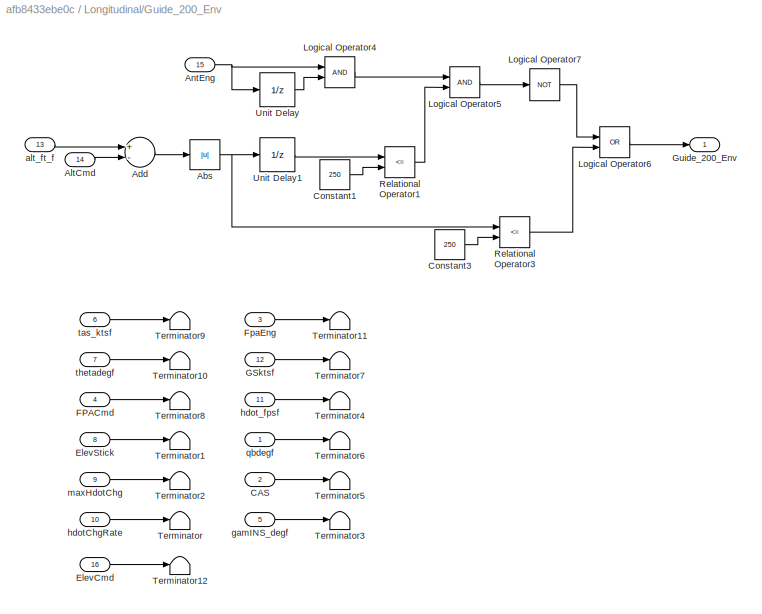
BLOCK [SubSystem] Longitudinal/Guide_200_Env
  Ports = [16, 1]
  RequestExecContextInheritance = off
  TreatAsAtomicUnit = on
  Variant = off
BLOCK [Abs] Longitudinal/Guide_200_Env/Abs
  SaturateOnIntegerOverflow = off
BLOCK [Sum] Longitudinal/Guide_200_Env/Add
  InputSameDT = off
  Inputs = +-
  OutDataTypeStr = Inherit: Inherit via internal rule
  Ports = [2, 1]
  SaturateOnIntegerOverflow = off
BLOCK [Inport] Longitudinal/Guide_200_Env/AltCmd
  IconDisplay = Port number
  Port = 14
BLOCK [Inport] Longitudinal/Guide_200_Env/AntEng
  IconDisplay = Port number
  Port = 15
BLOCK [Inport] Longitudinal/Guide_200_Env/CAS
  IconDisplay = Port number
  Port = 2
BLOCK [Constant] Longitudinal/Guide_200_Env/Constant1
  Value = 250
BLOCK [Constant] Longitudinal/Guide_200_Env/Constant3
  Value = 250
BLOCK [Inport] Longitudinal/Guide_200_Env/ElevCmd
  IconDisplay = Port number
  Port = 16
BLOCK [Inport] Longitudinal/Guide_200_Env/ElevStick
  IconDisplay = Port number
  Port = 8
BLOCK [Inport] Longitudinal/Guide_200_Env/FPACmd
  IconDisplay = Port number
  Port = 4
BLOCK [Inport] Longitudinal/Guide_200_Env/FpaEng
  IconDisplay = Port number
  Port = 3
BLOCK [Inport] Longitudinal/Guide_200_Env/GSktsf
  IconDisplay = Port number
  Port = 12
BLOCK [Outport] Longitudinal/Guide_200_Env/Guide_200_Env
  IconDisplay = Port number
BLOCK [Logic] Longitudinal/Guide_200_Env/Logical Operator4
  AllPortsSameDT = off
  OutDataTypeStr = boolean
  Ports = [2, 1]
BLOCK [Logic] Longitudinal/Guide_200_Env/Logical Operator5
  AllPortsSameDT = off
  OutDataTypeStr = boolean
  Ports = [2, 1]
BLOCK [Logic] Longitudinal/Guide_200_Env/Logical Operator6
  AllPortsSameDT = off
  Operator = OR
  OutDataTypeStr = boolean
  Ports = [2, 1]
BLOCK [Logic] Longitudinal/Guide_200_Env/Logical Operator7
  AllPortsSameDT = off
  Operator = NOT
  OutDataTypeStr = boolean
  Ports = [1, 1]
BLOCK [RelationalOperator] Longitudinal/Guide_200_Env/Relational Operator1
  InputSameDT = off
  Operator = <=
  OutDataTypeStr = boolean
  Ports = [2, 1]
BLOCK [RelationalOperator] Longitudinal/Guide_200_Env/Relational Operator3
  InputSameDT = off
  Operator = <=
  OutDataTypeStr = boolean
  Ports = [2, 1]
BLOCK [Terminator] Longitudinal/Guide_200_Env/Terminator
BLOCK [Terminator] Longitudinal/Guide_200_Env/Terminator1
BLOCK [Terminator] Longitudinal/Guide_200_Env/Terminator10
BLOCK [Terminator] Longitudinal/Guide_200_Env/Terminator11
BLOCK [Terminator] Longitudinal/Guide_200_Env/Terminator12
BLOCK [Terminator] Longitudinal/Guide_200_Env/Terminator2
BLOCK [Terminator] Longitudinal/Guide_200_Env/Terminator3
BLOCK [Terminator] Longitudinal/Guide_200_Env/Terminator4
BLOCK [Terminator] Longitudinal/Guide_200_Env/Terminator5
BLOCK [Terminator] Longitudinal/Guide_200_Env/Terminator6
BLOCK [Terminator] Longitudinal/Guide_200_Env/Terminator7
BLOCK [Terminator] Longitudinal/Guide_200_Env/Terminator8
BLOCK [Terminator] Longitudinal/Guide_200_Env/Terminator9
BLOCK [UnitDelay] Longitudinal/Guide_200_Env/Unit Delay
  InputProcessing = Elements as channels (sample based)
  SampleTime = -1
BLOCK [UnitDelay] Longitudinal/Guide_200_Env/Unit Delay1
  InputProcessing = Elements as channels (sample based)
  SampleTime = -1
BLOCK [Inport] Longitudinal/Guide_200_Env/alt_ft_f
  IconDisplay = Port number
  Port = 13
BLOCK [Inport] Longitudinal/Guide_200_Env/gamINS_degf
  IconDisplay = Port number
  Port = 5
BLOCK [Inport] Longitudinal/Guide_200_Env/hdotChgRate
  IconDisplay = Port number
  Port = 10
BLOCK [Inport] Longitudinal/Guide_200_Env/hdot_fpsf
  IconDisplay = Port number
  Port = 11
BLOCK [Inport] Longitudinal/Guide_200_Env/maxHdotChg
  IconDisplay = Port number
  Port = 9
BLOCK [Inport] Longitudinal/Guide_200_Env/qbdegf
  IconDisplay = Port number
BLOCK [Inport] Longitudinal/Guide_200_Env/tas_ktsf
  IconDisplay = Port number
  Port = 6
BLOCK [Inport] Longitudinal/Guide_200_Env/thetadegf
  IconDisplay = Port number
  Port = 7
BLOCK [SubSystem] Longitudinal/Guide_200_Simple
  Ports = [16, 1]
  RequestExecContextInheritance = off
  TreatAsAtomicUnit = on
  Variant = off
BLOCK [Inport] Longitudinal/Guide_200_Simple/AltCmd
  IconDisplay = Port number
  Port = 14
BLOCK [Inport] Longitudinal/Guide_200_Simple/AntEng
  IconDisplay = Port number
  Port = 15
BLOCK [Inport] Longitudinal/Guide_200_Simple/CAS
  IconDisplay = Port number
  Port = 2
BLOCK [Constant] Longitudinal/Guide_200_Simple/Constant2
  Value = 0
BLOCK [Inport] Longitudinal/Guide_200_Simple/ElevCmd
  IconDisplay = Port number
  Port = 16
BLOCK [Inport] Longitudinal/Guide_200_Simple/ElevStick
  IconDisplay = Port number
  Port = 8
BLOCK [Inport] Longitudinal/Guide_200_Simple/FPACmd
  IconDisplay = Port number
  Port = 4
BLOCK [Inport] Longitudinal/Guide_200_Simple/FpaEng
  IconDisplay = Port number
  Port = 3
BLOCK [Inport] Longitudinal/Guide_200_Simple/GSktsf
  IconDisplay = Port number
  Port = 12
BLOCK [Outport] Longitudinal/Guide_200_Simple/Guide_200_Simple
  IconDisplay = Port number
BLOCK [Logic] Longitudinal/Guide_200_Simple/Logical Operator1
  AllPortsSameDT = off
  Operator = OR
  OutDataTypeStr = boolean
  Ports = [2, 1]
BLOCK [Logic] Longitudinal/Guide_200_Simple/Logical Operator2
  AllPortsSameDT = off
  Operator = NOT
  OutDataTypeStr = boolean
  Ports = [1, 1]
BLOCK [Logic] Longitudinal/Guide_200_Simple/Logical Operator3
  AllPortsSameDT = off
  OutDataTypeStr = boolean
  Ports = [2, 1]
BLOCK [RelationalOperator] Longitudinal/Guide_200_Simple/Relational Operator2
  InputSameDT = off
  Operator = ~=
  OutDataTypeStr = boolean
  Ports = [2, 1]
BLOCK [RelationalOperator] Longitudinal/Guide_200_Simple/Relational Operator3
  InputSameDT = off
  Operator = ~=
  OutDataTypeStr = boolean
  Ports = [2, 1]
BLOCK [Terminator] Longitudinal/Guide_200_Simple/Terminator
BLOCK [Terminator] Longitudinal/Guide_200_Simple/Terminator1
BLOCK [Terminator] Longitudinal/Guide_200_Simple/Terminator10
BLOCK [Terminator] Longitudinal/Guide_200_Simple/Terminator11
BLOCK [Terminator] Longitudinal/Guide_200_Simple/Terminator2
BLOCK [Terminator] Longitudinal/Guide_200_Simple/Terminator3
BLOCK [Terminator] Longitudinal/Guide_200_Simple/Terminator4
BLOCK [Terminator] Longitudinal/Guide_200_Simple/Terminator5
BLOCK [Terminator] Longitudinal/Guide_200_Simple/Terminator6
BLOCK [Terminator] Longitudinal/Guide_200_Simple/Terminator7
BLOCK [Terminator] Longitudinal/Guide_200_Simple/Terminator8
BLOCK [Terminator] Longitudinal/Guide_200_Simple/Terminator9
BLOCK [Inport] Longitudinal/Guide_200_Simple/alt_ft_f
  IconDisplay = Port number
  Port = 13
BLOCK [Inport] Longitudinal/Guide_200_Simple/gamINS_degf
  IconDisplay = Port number
  Port = 5
BLOCK [Inport] Longitudinal/Guide_200_Simple/hdotChgRate
  IconDisplay = Port number
  Port = 10
BLOCK [Inport] Longitudinal/Guide_200_Simple/hdot_fpsf
  IconDisplay = Port number
  Port = 11
BLOCK [Inport] Longitudinal/Guide_200_Simple/maxHdotChg
  IconDisplay = Port number
  Port = 9
BLOCK [Inport] Longitudinal/Guide_200_Simple/qbdegf
  IconDisplay = Port number
BLOCK [Inport] Longitudinal/Guide_200_Simple/tas_ktsf
  IconDisplay = Port number
  Port = 6
BLOCK [Inport] Longitudinal/Guide_200_Simple/thetadegf
  IconDisplay = Port number
  Port = 7
BLOCK [Logic] Longitudinal/Logical Operator
  AllPortsSameDT = off
  Operator = OR
  OutDataTypeStr = boolean
  Ports = [2, 1]
BLOCK [SubSystem] Longitudinal/ManualOverride
  Ports = [2, 1]
  RequestExecContextInheritance = off
  Variant = off
BLOCK [Inport] Longitudinal/ManualOverride/Auto
  IconDisplay = Port number
  Port = 2
BLOCK [Inport] Longitudinal/ManualOverride/Man
  IconDisplay = Port number
BLOCK [Outport] Longitudinal/ManualOverride/Out
  IconDisplay = Port number
BLOCK [Switch] Longitudinal/ManualOverride/Switch1
  Criteria = u2 ~= 0
  InputSameDT = off
  SaturateOnIntegerOverflow = off
  Threshold = 0.5
BLOCK [SubSystem] Longitudinal/Pitch InnerLoop
  Ports = [4, 1]
  RequestExecContextInheritance = off
  TreatAsAtomicUnit = on
  Variant = off
BLOCK [Inport] Longitudinal/Pitch InnerLoop/CAS
  IconDisplay = Port number
  Port = 4
BLOCK [Outport] Longitudinal/Pitch InnerLoop/ElevCmd
  IconDisplay = Port number
BLOCK [SubSystem] Longitudinal/Pitch InnerLoop/Kcas_pp
  Ports = [1, 1]
  RequestExecContextInheritance = off
  TreatAsAtomicUnit = on
  Variant = off
BLOCK [RelationalOperator] Longitudinal/Pitch InnerLoop/Kcas_pp/CompInfEq2
  Operator = <=
  Ports = [2, 1]
BLOCK [RelationalOperator] Longitudinal/Pitch InnerLoop/Kcas_pp/CompInfEq3
  Operator = <=
  Ports = [2, 1]
BLOCK [RelationalOperator] Longitudinal/Pitch InnerLoop/Kcas_pp/CompInfEq4
  Operator = <=
  Ports = [2, 1]
BLOCK [RelationalOperator] Longitudinal/Pitch InnerLoop/Kcas_pp/CompSup1
  Ports = [2, 1]
BLOCK [RelationalOperator] Longitudinal/Pitch InnerLoop/Kcas_pp/CompSup2
  Operator = >
  Ports = [2, 1]
BLOCK [RelationalOperator] Longitudinal/Pitch InnerLoop/Kcas_pp/CompSup3
  Operator = >
  Ports = [2, 1]
BLOCK [Constant] Longitudinal/Pitch InnerLoop/Kcas_pp/Data1
BLOCK [Constant] Longitudinal/Pitch InnerLoop/Kcas_pp/Data2
BLOCK [Constant] Longitudinal/Pitch InnerLoop/Kcas_pp/Data3
  Value = 0.3
BLOCK [Constant] Longitudinal/Pitch InnerLoop/Kcas_pp/Data4
  Value = 0.3
BLOCK [Constant] Longitudinal/Pitch InnerLoop/Kcas_pp/Idx1
  Value = 0
BLOCK [Constant] Longitudinal/Pitch InnerLoop/Kcas_pp/Idx2
  Value = 120
BLOCK [Constant] Longitudinal/Pitch InnerLoop/Kcas_pp/Idx3
  Value = 350
BLOCK [Constant] Longitudinal/Pitch InnerLoop/Kcas_pp/Idx4
  Value = 500
BLOCK [Inport] Longitudinal/Pitch InnerLoop/Kcas_pp/In
  IconDisplay = Port number
BLOCK [SubSystem] Longitudinal/Pitch InnerLoop/Kcas_pp/Interpolate1
  Ports = [5, 1]
  RequestExecContextInheritance = off
  Variant = off
BLOCK [Inport] Longitudinal/Pitch InnerLoop/Kcas_pp/Interpolate1/InportData1
  IconDisplay = Port number
  Port = 4
BLOCK [Inport] Longitudinal/Pitch InnerLoop/Kcas_pp/Interpolate1/InportData2
  IconDisplay = Port number
  Port = 5
BLOCK [Inport] Longitudinal/Pitch InnerLoop/Kcas_pp/Interpolate1/InportIdx1
  IconDisplay = Port number
  Port = 2
BLOCK [Inport] Longitudinal/Pitch InnerLoop/Kcas_pp/Interpolate1/InportIdx2
  IconDisplay = Port number
  Port = 3
BLOCK [Inport] Longitudinal/Pitch InnerLoop/Kcas_pp/Interpolate1/InportIn
  IconDisplay = Port number
BLOCK [Product] Longitudinal/Pitch InnerLoop/Kcas_pp/Interpolate1/Interpolate
  Inputs = */*
  Ports = [3, 1]
BLOCK [Outport] Longitudinal/Pitch InnerLoop/Kcas_pp/Interpolate1/Out
  IconDisplay = Port number
BLOCK [Sum] Longitudinal/Pitch InnerLoop/Kcas_pp/Interpolate1/Sum1
  Inputs = +-
  Ports = [2, 1]
BLOCK [Sum] Longitudinal/Pitch InnerLoop/Kcas_pp/Interpolate1/Sum2
  Inputs = -+
  Ports = [2, 1]
BLOCK [Sum] Longitudinal/Pitch InnerLoop/Kcas_pp/Interpolate1/Sum3
  Inputs = -+
  Ports = [2, 1]
BLOCK [Sum] Longitudinal/Pitch InnerLoop/Kcas_pp/Interpolate1/Sum4
  Ports = [2, 1]
BLOCK [SubSystem] Longitudinal/Pitch InnerLoop/Kcas_pp/Interpolate2
  Ports = [5, 1]
  RequestExecContextInheritance = off
  Variant = off
BLOCK [Inport] Longitudinal/Pitch InnerLoop/Kcas_pp/Interpolate2/InportData1
  IconDisplay = Port number
  Port = 4
BLOCK [Inport] Longitudinal/Pitch InnerLoop/Kcas_pp/Interpolate2/InportData2
  IconDisplay = Port number
  Port = 5
BLOCK [Inport] Longitudinal/Pitch InnerLoop/Kcas_pp/Interpolate2/InportIdx1
  IconDisplay = Port number
  Port = 2
BLOCK [Inport] Longitudinal/Pitch InnerLoop/Kcas_pp/Interpolate2/InportIdx2
  IconDisplay = Port number
  Port = 3
BLOCK [Inport] Longitudinal/Pitch InnerLoop/Kcas_pp/Interpolate2/InportIn
  IconDisplay = Port number
BLOCK [Product] Longitudinal/Pitch InnerLoop/Kcas_pp/Interpolate2/Interpolate
  Inputs = */*
  Ports = [3, 1]
BLOCK [Outport] Longitudinal/Pitch InnerLoop/Kcas_pp/Interpolate2/Out
  IconDisplay = Port number
BLOCK [Sum] Longitudinal/Pitch InnerLoop/Kcas_pp/Interpolate2/Sum1
  Inputs = +-
  Ports = [2, 1]
BLOCK [Sum] Longitudinal/Pitch InnerLoop/Kcas_pp/Interpolate2/Sum2
  Inputs = -+
  Ports = [2, 1]
BLOCK [Sum] Longitudinal/Pitch InnerLoop/Kcas_pp/Interpolate2/Sum3
  Inputs = -+
  Ports = [2, 1]
BLOCK [Sum] Longitudinal/Pitch InnerLoop/Kcas_pp/Interpolate2/Sum4
  Ports = [2, 1]
BLOCK [SubSystem] Longitudinal/Pitch InnerLoop/Kcas_pp/Interpolate3
  Ports = [5, 1]
  RequestExecContextInheritance = off
  Variant = off
BLOCK [Inport] Longitudinal/Pitch InnerLoop/Kcas_pp/Interpolate3/InportData1
  IconDisplay = Port number
  Port = 4
BLOCK [Inport] Longitudinal/Pitch InnerLoop/Kcas_pp/Interpolate3/InportData2
  IconDisplay = Port number
  Port = 5
BLOCK [Inport] Longitudinal/Pitch InnerLoop/Kcas_pp/Interpolate3/InportIdx1
  IconDisplay = Port number
  Port = 2
BLOCK [Inport] Longitudinal/Pitch InnerLoop/Kcas_pp/Interpolate3/InportIdx2
  IconDisplay = Port number
  Port = 3
BLOCK [Inport] Longitudinal/Pitch InnerLoop/Kcas_pp/Interpolate3/InportIn
  IconDisplay = Port number
BLOCK [Product] Longitudinal/Pitch InnerLoop/Kcas_pp/Interpolate3/Interpolate
  Inputs = */*
  Ports = [3, 1]
BLOCK [Outport] Longitudinal/Pitch InnerLoop/Kcas_pp/Interpolate3/Out
  IconDisplay = Port number
BLOCK [Sum] Longitudinal/Pitch InnerLoop/Kcas_pp/Interpolate3/Sum1
  Inputs = +-
  Ports = [2, 1]
BLOCK [Sum] Longitudinal/Pitch InnerLoop/Kcas_pp/Interpolate3/Sum2
  Inputs = -+
  Ports = [2, 1]
BLOCK [Sum] Longitudinal/Pitch InnerLoop/Kcas_pp/Interpolate3/Sum3
  Inputs = -+
  Ports = [2, 1]
BLOCK [Sum] Longitudinal/Pitch InnerLoop/Kcas_pp/Interpolate3/Sum4
  Ports = [2, 1]
BLOCK [Outport] Longitudinal/Pitch InnerLoop/Kcas_pp/Out
  IconDisplay = Port number
BLOCK [Product] Longitudinal/Pitch InnerLoop/Kcas_pp/Product1
  InputSameDT = off
  Inputs = ***
  Ports = [3, 1]
BLOCK [Product] Longitudinal/Pitch InnerLoop/Kcas_pp/Product2
  InputSameDT = off
  Inputs = ***
  Ports = [3, 1]
BLOCK [Product] Longitudinal/Pitch InnerLoop/Kcas_pp/Product3
  InputSameDT = off
  Inputs = ***
  Ports = [3, 1]
BLOCK [Sum] Longitudinal/Pitch InnerLoop/Kcas_pp/Sum
  Inputs = +++
  Ports = [3, 1]
BLOCK [Gain] Longitudinal/Pitch InnerLoop/Kpitch
  Gain = 2
  OutDataTypeStr = Inherit: Inherit via internal rule
  ParamDataTypeStr = Inherit: Inherit via internal rule
  SaturateOnIntegerOverflow = off
BLOCK [Gain] Longitudinal/Pitch InnerLoop/Kwo
  Gain = 0.5
  OutDataTypeStr = Inherit: Inherit via internal rule
  ParamDataTypeStr = Inherit: Inherit via internal rule
  SaturateOnIntegerOverflow = off
BLOCK [Mux] Longitudinal/Pitch InnerLoop/Mux
  DisplayOption = bar
  Inputs = 2
  Ports = [2, 1]
BLOCK [Inport] Longitudinal/Pitch InnerLoop/Pitch
  IconDisplay = Port number
  Port = 2
BLOCK [Inport] Longitudinal/Pitch InnerLoop/PitchCmd
  IconDisplay = Port number
BLOCK [Scope] Longitudinal/Pitch InnerLoop/PitchScope
  NumInputPorts = 6
  Ports = [6]
  ScopeSpecificationString = C++SS(StrPVP('Location','[1011, 113, 1817, 1089]'),StrPVP('Open','off'),MxPVP('AxesTitles',24,'struct(''axes1'',''Pitchcmd,  Pitch'',''axes2'',''%<SignalLabel>'',''axes3'',''%<SignalLabel>'',''axes4'',''%<SignalLabel>'',''axes5'',''%<SignalLabel>'',''axes6'',''%<SignalLabel>'')'),StrPVP('ShowLegends','off'),StrPVP('YMin','-2~-2~-2~-20~-20~0'),StrPVP('YMax','10~2~2~20~20~1.2'),StrPVP('SaveName','Sc...<+210ch>
BLOCK [Product] Longitudinal/Pitch InnerLoop/Product
  InputSameDT = off
  OutDataTypeStr = Inherit: Inherit via internal rule
  Ports = [2, 1]
  SaturateOnIntegerOverflow = off
BLOCK [Sum] Longitudinal/Pitch InnerLoop/Sum
  IconShape = round
  InputSameDT = off
  Inputs = |+-
  OutDataTypeStr = Inherit: Inherit via internal rule
  Ports = [2, 1]
  SaturateOnIntegerOverflow = off
BLOCK [Sum] Longitudinal/Pitch InnerLoop/Sum1
  IconShape = round
  InputSameDT = off
  Inputs = |-+
  OutDataTypeStr = Inherit: Inherit via internal rule
  Ports = [2, 1]
  SaturateOnIntegerOverflow = off
BLOCK [SubSystem] Longitudinal/Pitch InnerLoop/Transfer Fcn_pp
  Ports = [1, 1]
  RequestExecContextInheritance = off
  TreatAsAtomicUnit = on
  Variant = off
BLOCK [UnitDelay] Longitudinal/Pitch InnerLoop/Transfer Fcn_pp/D1
  SampleTime = -1
BLOCK [Gain] Longitudinal/Pitch InnerLoop/Transfer Fcn_pp/GainAC1_1
  Gain = -0.0625
BLOCK [Gain] Longitudinal/Pitch InnerLoop/Transfer Fcn_pp/GainAC2_1
  Gain = -0.0625
BLOCK [Gain] Longitudinal/Pitch InnerLoop/Transfer Fcn_pp/GainBD1_1
BLOCK [Gain] Longitudinal/Pitch InnerLoop/Transfer Fcn_pp/GainBD2_1
BLOCK [Inport] Longitudinal/Pitch InnerLoop/Transfer Fcn_pp/Inport1
  IconDisplay = Port number
BLOCK [Outport] Longitudinal/Pitch InnerLoop/Transfer Fcn_pp/Outport1
  IconDisplay = Port number
BLOCK [Sum] Longitudinal/Pitch InnerLoop/Transfer Fcn_pp/Sum1
  Ports = [2, 1]
BLOCK [Sum] Longitudinal/Pitch InnerLoop/Transfer Fcn_pp/Sum2
  Ports = [2, 1]
BLOCK [Inport] Longitudinal/Pitch InnerLoop/qdeg
  IconDisplay = Port number
  Port = 3
BLOCK [Sum] Longitudinal/Sum7
  IconShape = round
  InputSameDT = off
  Inputs = ++|
  OutDataTypeStr = Inherit: Inherit via internal rule
  Ports = [2, 1]
  SaturateOnIntegerOverflow = off
BLOCK [Terminator] Longitudinal/Terminator1
BLOCK [Terminator] Longitudinal/Terminator2
BLOCK [Terminator] Longitudinal/Terminator3
BLOCK [Terminator] Longitudinal/Terminator4
BLOCK [Inport] Longitudinal/VT
  IconDisplay = Port number
  Port = 10
BLOCK [Inport] Longitudinal/hdot
  IconDisplay = Port number
  Port = 9
BLOCK [Inport] Longitudinal/hdotChgRate
  IconDisplay = Port number
  Port = 14
BLOCK [Gain] Longitudinal/k2
  OutDataTypeStr = Inherit: Inherit via internal rule
  ParamDataTypeStr = Inherit: Inherit via internal rule
  SaturateOnIntegerOverflow = off
BLOCK [Gain] Longitudinal/k5
  OutDataTypeStr = Inherit: Inherit via internal rule
  ParamDataTypeStr = Inherit: Inherit via internal rule
  SaturateOnIntegerOverflow = off
BLOCK [Inport] Longitudinal/maxHdotChg
  IconDisplay = Port number
  Port = 15
BLOCK [Inport] Longitudinal/qDeg
  IconDisplay = Port number
  Port = 7
BLOCK [Inport] Longitudinal/thetaDeg
  IconDisplay = Port number
  Port = 6
BLOCK [Constant] MachSel
  Value = 0
BLOCK [Constant] Machcmd
  Value = 0.6
BLOCK [Mux] Mux
  DisplayOption = bar
  Inputs = 5
  Ports = [5, 1]
BLOCK [Mux] Mux1
  DisplayOption = bar
  Ports = [4, 1]
BLOCK [Terminator] Terminator
BLOCK [Terminator] Terminator7
BLOCK [Constant] YDEngage
  SampleTime = -1
BLOCK [SubSystem] Yaw Damper
  Ports = [4, 2]
  RequestExecContextInheritance = off
  TreatAsAtomicUnit = on
  Variant = off
BLOCK [Inport] Yaw Damper/CAS
  IconDisplay = Port number
  Port = 2
BLOCK [Outport] Yaw Damper/DamperCmd
  IconDisplay = Port number
  Port = 2
BLOCK [Inport] Yaw Damper/Engage
  IconDisplay = Port number
  Port = 4
BLOCK [SubSystem] Yaw Damper/EngageORzero
  Ports = [2, 1]
  RequestExecContextInheritance = off
  Variant = off
BLOCK [Inport] Yaw Damper/EngageORzero/Engage
  IconDisplay = Port number
BLOCK [Inport] Yaw Damper/EngageORzero/In
  IconDisplay = Port number
  Port = 2
BLOCK [Logic] Yaw Damper/EngageORzero/Logical Operator5
  AllPortsSameDT = off
  OutDataTypeStr = boolean
  Ports = [2, 1]
BLOCK [Outport] Yaw Damper/EngageORzero/Out
  IconDisplay = Port number
BLOCK [Switch] Yaw Damper/EngageORzero/Switch1
  InputSameDT = off
  SaturateOnIntegerOverflow = off
  Threshold = 0.5
BLOCK [Constant] Yaw Damper/EngageORzero/zero10
BLOCK [Constant] Yaw Damper/EngageORzero/zero9
  Value = 0
BLOCK [SubSystem] Yaw Damper/Kcas_pp
  Ports = [1, 1]
  RequestExecContextInheritance = off
  TreatAsAtomicUnit = on
  Variant = off
BLOCK [RelationalOperator] Yaw Damper/Kcas_pp/CompInfEq2
  Operator = <=
  Ports = [2, 1]
BLOCK [RelationalOperator] Yaw Damper/Kcas_pp/CompInfEq3
  Operator = <=
  Ports = [2, 1]
BLOCK [RelationalOperator] Yaw Damper/Kcas_pp/CompInfEq4
  Operator = <=
  Ports = [2, 1]
BLOCK [RelationalOperator] Yaw Damper/Kcas_pp/CompSup1
  Ports = [2, 1]
BLOCK [RelationalOperator] Yaw Damper/Kcas_pp/CompSup2
  Operator = >
  Ports = [2, 1]
BLOCK [RelationalOperator] Yaw Damper/Kcas_pp/CompSup3
  Operator = >
  Ports = [2, 1]
BLOCK [Constant] Yaw Damper/Kcas_pp/Data1
BLOCK [Constant] Yaw Damper/Kcas_pp/Data2
BLOCK [Constant] Yaw Damper/Kcas_pp/Data3
  Value = 0.3
BLOCK [Constant] Yaw Damper/Kcas_pp/Data4
  Value = 0.3
BLOCK [Constant] Yaw Damper/Kcas_pp/Idx1
  Value = 0
BLOCK [Constant] Yaw Damper/Kcas_pp/Idx2
  Value = 120
BLOCK [Constant] Yaw Damper/Kcas_pp/Idx3
  Value = 350
BLOCK [Constant] Yaw Damper/Kcas_pp/Idx4
  Value = 500
BLOCK [Inport] Yaw Damper/Kcas_pp/In
  IconDisplay = Port number
BLOCK [SubSystem] Yaw Damper/Kcas_pp/Interpolate1
  Ports = [5, 1]
  RequestExecContextInheritance = off
  Variant = off
BLOCK [Inport] Yaw Damper/Kcas_pp/Interpolate1/InportData1
  IconDisplay = Port number
  Port = 4
BLOCK [Inport] Yaw Damper/Kcas_pp/Interpolate1/InportData2
  IconDisplay = Port number
  Port = 5
BLOCK [Inport] Yaw Damper/Kcas_pp/Interpolate1/InportIdx1
  IconDisplay = Port number
  Port = 2
BLOCK [Inport] Yaw Damper/Kcas_pp/Interpolate1/InportIdx2
  IconDisplay = Port number
  Port = 3
BLOCK [Inport] Yaw Damper/Kcas_pp/Interpolate1/InportIn
  IconDisplay = Port number
BLOCK [Product] Yaw Damper/Kcas_pp/Interpolate1/Interpolate
  Inputs = */*
  Ports = [3, 1]
BLOCK [Outport] Yaw Damper/Kcas_pp/Interpolate1/Out
  IconDisplay = Port number
BLOCK [Sum] Yaw Damper/Kcas_pp/Interpolate1/Sum1
  Inputs = +-
  Ports = [2, 1]
BLOCK [Sum] Yaw Damper/Kcas_pp/Interpolate1/Sum2
  Inputs = -+
  Ports = [2, 1]
BLOCK [Sum] Yaw Damper/Kcas_pp/Interpolate1/Sum3
  Inputs = -+
  Ports = [2, 1]
BLOCK [Sum] Yaw Damper/Kcas_pp/Interpolate1/Sum4
  Ports = [2, 1]
BLOCK [SubSystem] Yaw Damper/Kcas_pp/Interpolate2
  Ports = [5, 1]
  RequestExecContextInheritance = off
  Variant = off
BLOCK [Inport] Yaw Damper/Kcas_pp/Interpolate2/InportData1
  IconDisplay = Port number
  Port = 4
BLOCK [Inport] Yaw Damper/Kcas_pp/Interpolate2/InportData2
  IconDisplay = Port number
  Port = 5
BLOCK [Inport] Yaw Damper/Kcas_pp/Interpolate2/InportIdx1
  IconDisplay = Port number
  Port = 2
BLOCK [Inport] Yaw Damper/Kcas_pp/Interpolate2/InportIdx2
  IconDisplay = Port number
  Port = 3
BLOCK [Inport] Yaw Damper/Kcas_pp/Interpolate2/InportIn
  IconDisplay = Port number
BLOCK [Product] Yaw Damper/Kcas_pp/Interpolate2/Interpolate
  Inputs = */*
  Ports = [3, 1]
BLOCK [Outport] Yaw Damper/Kcas_pp/Interpolate2/Out
  IconDisplay = Port number
BLOCK [Sum] Yaw Damper/Kcas_pp/Interpolate2/Sum1
  Inputs = +-
  Ports = [2, 1]
BLOCK [Sum] Yaw Damper/Kcas_pp/Interpolate2/Sum2
  Inputs = -+
  Ports = [2, 1]
BLOCK [Sum] Yaw Damper/Kcas_pp/Interpolate2/Sum3
  Inputs = -+
  Ports = [2, 1]
BLOCK [Sum] Yaw Damper/Kcas_pp/Interpolate2/Sum4
  Ports = [2, 1]
BLOCK [SubSystem] Yaw Damper/Kcas_pp/Interpolate3
  Ports = [5, 1]
  RequestExecContextInheritance = off
  Variant = off
BLOCK [Inport] Yaw Damper/Kcas_pp/Interpolate3/InportData1
  IconDisplay = Port number
  Port = 4
BLOCK [Inport] Yaw Damper/Kcas_pp/Interpolate3/InportData2
  IconDisplay = Port number
  Port = 5
BLOCK [Inport] Yaw Damper/Kcas_pp/Interpolate3/InportIdx1
  IconDisplay = Port number
  Port = 2
BLOCK [Inport] Yaw Damper/Kcas_pp/Interpolate3/InportIdx2
  IconDisplay = Port number
  Port = 3
BLOCK [Inport] Yaw Damper/Kcas_pp/Interpolate3/InportIn
  IconDisplay = Port number
BLOCK [Product] Yaw Damper/Kcas_pp/Interpolate3/Interpolate
  Inputs = */*
  Ports = [3, 1]
BLOCK [Outport] Yaw Damper/Kcas_pp/Interpolate3/Out
  IconDisplay = Port number
BLOCK [Sum] Yaw Damper/Kcas_pp/Interpolate3/Sum1
  Inputs = +-
  Ports = [2, 1]
BLOCK [Sum] Yaw Damper/Kcas_pp/Interpolate3/Sum2
  Inputs = -+
  Ports = [2, 1]
BLOCK [Sum] Yaw Damper/Kcas_pp/Interpolate3/Sum3
  Inputs = -+
  Ports = [2, 1]
BLOCK [Sum] Yaw Damper/Kcas_pp/Interpolate3/Sum4
  Ports = [2, 1]
BLOCK [Outport] Yaw Damper/Kcas_pp/Out
  IconDisplay = Port number
BLOCK [Product] Yaw Damper/Kcas_pp/Product1
  InputSameDT = off
  Inputs = ***
  Ports = [3, 1]
BLOCK [Product] Yaw Damper/Kcas_pp/Product2
  InputSameDT = off
  Inputs = ***
  Ports = [3, 1]
BLOCK [Product] Yaw Damper/Kcas_pp/Product3
  InputSameDT = off
  Inputs = ***
  Ports = [3, 1]
BLOCK [Sum] Yaw Damper/Kcas_pp/Sum
  Inputs = +++
  Ports = [3, 1]
BLOCK [Gain] Yaw Damper/Kr
  Gain = 1.25
  OutDataTypeStr = Inherit: Inherit via internal rule
  ParamDataTypeStr = Inherit: Inherit via internal rule
  SaturateOnIntegerOverflow = off
BLOCK [SubSystem] Yaw Damper/ManualOverride
  MinAlgLoopOccurrences = on
  Ports = [2, 1]
  RequestExecContextInheritance = off
  TreatAsAtomicUnit = on
  Variant = off
BLOCK [Inport] Yaw Damper/ManualOverride/Auto
  IconDisplay = Port number
  Port = 2
BLOCK [Inport] Yaw Damper/ManualOverride/Man
  IconDisplay = Port number
BLOCK [Outport] Yaw Damper/ManualOverride/Out
  IconDisplay = Port number
BLOCK [Switch] Yaw Damper/ManualOverride/Switch1
  Criteria = u2 ~= 0
  InputSameDT = off
  SaturateOnIntegerOverflow = off
  Threshold = 0.5
BLOCK [Inport] Yaw Damper/PedalRud
  IconDisplay = Port number
  Port = 3
BLOCK [Product] Yaw Damper/Product
  InputSameDT = off
  OutDataTypeStr = Inherit: Inherit via internal rule
  Ports = [2, 1]
  SaturateOnIntegerOverflow = off
BLOCK [Outport] Yaw Damper/RudCmd
  IconDisplay = Port number
BLOCK [SubSystem] Yaw Damper/YD_wo_pp
  Ports = [1, 1]
  RequestExecContextInheritance = off
  TreatAsAtomicUnit = on
  Variant = off
BLOCK [UnitDelay] Yaw Damper/YD_wo_pp/D1
  SampleTime = -1
BLOCK [Gain] Yaw Damper/YD_wo_pp/GainAC1_1
  Gain = -10
BLOCK [Gain] Yaw Damper/YD_wo_pp/GainAC2_1
  Gain = -10
BLOCK [Gain] Yaw Damper/YD_wo_pp/GainBD1_1
BLOCK [Gain] Yaw Damper/YD_wo_pp/GainBD2_1
BLOCK [Inport] Yaw Damper/YD_wo_pp/Inport1
  IconDisplay = Port number
BLOCK [Outport] Yaw Damper/YD_wo_pp/Outport1
  IconDisplay = Port number
BLOCK [Sum] Yaw Damper/YD_wo_pp/Sum1
  Ports = [2, 1]
BLOCK [Sum] Yaw Damper/YD_wo_pp/Sum2
  Ports = [2, 1]
BLOCK [Inport] Yaw Damper/rdeg
  IconDisplay = Port number
BLOCK [Scope] YawDampScope
  NumInputPorts = 3
  Ports = [3]
  ScopeSpecificationString = C++SS(StrPVP('Location','[104, 387, 551, 759]'),StrPVP('Open','off'),MxPVP('AxesTitles',24,'struct(''axes1'',''%<SignalLabel>'',''axes2'',''%<SignalLabel>'',''axes3'',''%<SignalLabel>'')'),StrPVP('ShowLegends','off'),StrPVP('YMin','-5~-5~-5'),StrPVP('YMax','5~5~5'),StrPVP('DataFormat','StructureWithTime'),StrPVP('BlockParamSampleTime','0'),StrPVP('ScrollMode','off'),StrPVP('LimitDataPoints','on'),...<+63ch>
BLOCK [Constant] maxthrot
  SampleTime = -1
  Value = 100
BLOCK [Constant] minthrot
  SampleTime = -1
  Value = 0
BLOCK [Constant] rollLimit
  SampleTime = -1
  Value = 30
ANNOTATION Heading/Roll InnerLoop: orig = 0.25
ANNOTATION Heading/Roll InnerLoop: orig = 0.8
ANNOTATION Heading/Roll InnerLoop: orig =[0 60 140]
LINE APAltCmd:1 -> Longitudinal:4
LINE APAltEng:1 -> Longitudinal:2
LINE APFPACmd :1 -> Longitudinal:1
LINE APFPAEng:1 -> Longitudinal:3
LINE APHdgCmd:1 -> Heading:2
LINE APHeadEng:1 -> Heading:1
LINE APThrotEng:1 -> AutoThrottle:1
NET AutoThrottle/ATEng:1 -> AutoThrottle/EngageORzero:1, AutoThrottle/Guide_100:1, AutoThrottle/Guide_100_Env:1, AutoThrottle/Guide_290:1, AutoThrottle/Logical Operator:1
NET AutoThrottle/CAScmd:1 -> AutoThrottle/Guide_100:2, AutoThrottle/Guide_100_Env:2, AutoThrottle/Guide_290:2, AutoThrottle/Sum2:1
LINE AutoThrottle/Demux1:1 -> AutoThrottle/Gain:1
LINE AutoThrottle/Demux1:2 -> AutoThrottle/kt2fps1:1
LINE AutoThrottle/Demux1:3 -> AutoThrottle/Product1:2
LINE AutoThrottle/Demux1:4 -> AutoThrottle/Sum2:2
NET AutoThrottle/Demux1:5 -> AutoThrottle/Kr1:1, AutoThrottle/Sum1:3
LINE AutoThrottle/EngageORzero/Engage:1 -> AutoThrottle/EngageORzero/Logical Operator5:1
LINE AutoThrottle/EngageORzero/In:1 -> AutoThrottle/EngageORzero/Switch1:1
LINE AutoThrottle/EngageORzero/Logical Operator5:1 -> AutoThrottle/EngageORzero/Switch1:2
LINE AutoThrottle/EngageORzero/Switch1:1 -> AutoThrottle/EngageORzero/Out:1
LINE AutoThrottle/EngageORzero/zero10:1 -> AutoThrottle/EngageORzero/Logical Operator5:2
LINE AutoThrottle/EngageORzero/zero9:1 -> AutoThrottle/EngageORzero/Switch1:3
LINE AutoThrottle/EngageORzero:1 -> AutoThrottle/ManualOverride:2
LINE AutoThrottle/Gain1:1 -> AutoThrottle/Transfer Fcn_pp:1
LINE AutoThrottle/Gain:1 -> AutoThrottle/Trigonometric Function:1
LINE AutoThrottle/Guide_100/ATEng:1 -> AutoThrottle/Guide_100/Logical Operator2:1
LINE AutoThrottle/Guide_100/CAScmd:1 -> AutoThrottle/Guide_100/Terminator4:1
LINE AutoThrottle/Guide_100/Constant:1 -> AutoThrottle/Guide_100/Relational Operator:2
LINE AutoThrottle/Guide_100/Logical Operator2:1 -> AutoThrottle/Guide_100/Logical Operator:1
LINE AutoThrottle/Guide_100/Logical Operator:1 -> AutoThrottle/Guide_100/Out1:1
LINE AutoThrottle/Guide_100/MachCmd:1 -> AutoThrottle/Guide_100/Terminator2:1
LINE AutoThrottle/Guide_100/MachSel:1 -> AutoThrottle/Guide_100/Terminator3:1
LINE AutoThrottle/Guide_100/Relational Operator:1 -> AutoThrottle/Guide_100/Logical Operator:2
LINE AutoThrottle/Guide_100/Sensors:1 -> AutoThrottle/Guide_100/Terminator1:1
LINE AutoThrottle/Guide_100/ThrotCmd:1 -> AutoThrottle/Guide_100/Relational Operator:1
LINE AutoThrottle/Guide_100/levelThrot:1 -> AutoThrottle/Guide_100/Terminator:1
LINE AutoThrottle/Guide_100/maxThrot:1 -> AutoThrottle/Guide_100/Terminator6:1
LINE AutoThrottle/Guide_100/minThrot:1 -> AutoThrottle/Guide_100/Terminator5:1
LINE AutoThrottle/Guide_100:1 -> AutoThrottle/Terminator1:1
NET AutoThrottle/Guide_100_Env/ATEng:1 -> AutoThrottle/Guide_100_Env/Logical Operator:1, AutoThrottle/Guide_100_Env/Unit Delay:1
NET AutoThrottle/Guide_100_Env/CAScmd:1 -> AutoThrottle/Guide_100_Env/Relational Operator1:1, AutoThrottle/Guide_100_Env/Unit Delay1:1
LINE AutoThrottle/Guide_100_Env/Demux1:1 -> AutoThrottle/Guide_100_Env/Terminator7:1
LINE AutoThrottle/Guide_100_Env/Demux1:2 -> AutoThrottle/Guide_100_Env/Terminator8:1
LINE AutoThrottle/Guide_100_Env/Demux1:3 -> AutoThrottle/Guide_100_Env/Terminator9:1
NET AutoThrottle/Guide_100_Env/Demux1:4 -> AutoThrottle/Guide_100_Env/Relational Operator1:2, AutoThrottle/Guide_100_Env/Unit Delay2:1
LINE AutoThrottle/Guide_100_Env/Demux1:5 -> AutoThrottle/Guide_100_Env/Terminator1:1
LINE AutoThrottle/Guide_100_Env/Logical Operator1:1 -> AutoThrottle/Guide_100_Env/Logical Operator2:1
LINE AutoThrottle/Guide_100_Env/Logical Operator2:1 -> AutoThrottle/Guide_100_Env/Out1:1
LINE AutoThrottle/Guide_100_Env/Logical Operator:1 -> AutoThrottle/Guide_100_Env/Logical Operator1:1
LINE AutoThrottle/Guide_100_Env/MachCmd:1 -> AutoThrottle/Guide_100_Env/Terminator2:1
LINE AutoThrottle/Guide_100_Env/MachSel:1 -> AutoThrottle/Guide_100_Env/Terminator3:1
LINE AutoThrottle/Guide_100_Env/Relational Operator1:1 -> AutoThrottle/Guide_100_Env/Logical Operator2:2
LINE AutoThrottle/Guide_100_Env/Relational Operator:1 -> AutoThrottle/Guide_100_Env/Logical Operator:3
LINE AutoThrottle/Guide_100_Env/Sensors:1 -> AutoThrottle/Guide_100_Env/Demux1:1
LINE AutoThrottle/Guide_100_Env/ThrotCmd:1 -> AutoThrottle/Guide_100_Env/Terminator4:1
LINE AutoThrottle/Guide_100_Env/Unit Delay1:1 -> AutoThrottle/Guide_100_Env/Relational Operator:1
LINE AutoThrottle/Guide_100_Env/Unit Delay2:1 -> AutoThrottle/Guide_100_Env/Relational Operator:2
LINE AutoThrottle/Guide_100_Env/Unit Delay:1 -> AutoThrottle/Guide_100_Env/Logical Operator:2
LINE AutoThrottle/Guide_100_Env/levelThrot:1 -> AutoThrottle/Guide_100_Env/Terminator:1
LINE AutoThrottle/Guide_100_Env/maxThrot:1 -> AutoThrottle/Guide_100_Env/Terminator6:1
LINE AutoThrottle/Guide_100_Env/minThrot:1 -> AutoThrottle/Guide_100_Env/Terminator5:1
LINE AutoThrottle/Guide_100_Env:1 -> AutoThrottle/Terminator2:1
LINE AutoThrottle/Guide_290/ATEng:1 -> AutoThrottle/Guide_290/Logical Operator2:1
LINE AutoThrottle/Guide_290/CAScmd:1 -> AutoThrottle/Guide_290/Terminator4:1
LINE AutoThrottle/Guide_290/Logical Operator1:1 -> AutoThrottle/Guide_290/Logical Operator:2
LINE AutoThrottle/Guide_290/Logical Operator2:1 -> AutoThrottle/Guide_290/Logical Operator:1
LINE AutoThrottle/Guide_290/Logical Operator:1 -> AutoThrottle/Guide_290/Out1:1
LINE AutoThrottle/Guide_290/MachCmd:1 -> AutoThrottle/Guide_290/Terminator2:1
LINE AutoThrottle/Guide_290/MachSel:1 -> AutoThrottle/Guide_290/Terminator3:1
LINE AutoThrottle/Guide_290/Relational Operator1:1 -> AutoThrottle/Guide_290/Logical Operator1:2
LINE AutoThrottle/Guide_290/Relational Operator:1 -> AutoThrottle/Guide_290/Logical Operator1:1
LINE AutoThrottle/Guide_290/Sensors:1 -> AutoThrottle/Guide_290/Terminator1:1
NET AutoThrottle/Guide_290/ThrotCmd:1 -> AutoThrottle/Guide_290/Relational Operator1:1, AutoThrottle/Guide_290/Relational Operator:2
LINE AutoThrottle/Guide_290/levelThrot:1 -> AutoThrottle/Guide_290/Terminator:1
LINE AutoThrottle/Guide_290/maxThrot:1 -> AutoThrottle/Guide_290/Relational Operator1:2
LINE AutoThrottle/Guide_290/minThrot:1 -> AutoThrottle/Guide_290/Relational Operator:1
LINE AutoThrottle/Guide_290:1 -> AutoThrottle/Terminator4:1
LINE AutoThrottle/ICthrot1:1 -> AutoThrottle/Sum5:2
LINE AutoThrottle/ICthrot:1 -> AutoThrottle/VarLimIntegAT:5
LINE AutoThrottle/Kcas:1 -> AutoThrottle/PHIMC1:3
LINE AutoThrottle/Kr1:1 -> AutoThrottle/Sum3:2
LINE AutoThrottle/Kr:1 -> AutoThrottle/VarLimIntegAT:1
LINE AutoThrottle/Ktas:1 -> AutoThrottle/PHIMC1:1
LINE AutoThrottle/Logical Operator:1 -> AutoThrottle/VarLimIntegAT:4
NET AutoThrottle/MachCmd:1 -> AutoThrottle/Guide_100:4, AutoThrottle/Guide_100_Env:4, AutoThrottle/Guide_290:4, AutoThrottle/Product1:1
NET AutoThrottle/MachSel:1 -> AutoThrottle/Guide_100:3, AutoThrottle/Guide_100_Env:3, AutoThrottle/Guide_290:3, AutoThrottle/PHIMC1:2
LINE AutoThrottle/ManualOverride/Auto:1 -> AutoThrottle/ManualOverride/Switch1:1
NET AutoThrottle/ManualOverride/Man:1 -> AutoThrottle/ManualOverride/Switch1:2, AutoThrottle/ManualOverride/Switch1:3
LINE AutoThrottle/ManualOverride/Switch1:1 -> AutoThrottle/ManualOverride/Out:1
NET AutoThrottle/ManualOverride:1 -> AutoThrottle/Guide_100:9, AutoThrottle/Guide_100_Env:9, AutoThrottle/Guide_290:9, AutoThrottle/ThrotCmd:1
LINE AutoThrottle/PHIMC1:1 -> AutoThrottle/Sum1:2
LINE AutoThrottle/Product1:1 -> AutoThrottle/Sum4:1
LINE AutoThrottle/Product:1 -> AutoThrottle/Ktas:1
LINE AutoThrottle/RollComp1:1 -> AutoThrottle/Sum:1
LINE AutoThrottle/Saturation Dynamic1:1 -> AutoThrottle/Sum5:1
NET AutoThrottle/Sensors:1 -> AutoThrottle/Demux1:1, AutoThrottle/Guide_100:5, AutoThrottle/Guide_100_Env:5, AutoThrottle/Guide_290:5
LINE AutoThrottle/Sum1:1 -> AutoThrottle/Kr:1
LINE AutoThrottle/Sum2:1 -> AutoThrottle/kt2fps:1
LINE AutoThrottle/Sum3:1 -> AutoThrottle/Saturation Dynamic1:2
LINE AutoThrottle/Sum4:1 -> AutoThrottle/Product:2
LINE AutoThrottle/Sum5:1 -> AutoThrottle/EngageORzero:2
LINE AutoThrottle/Sum:1 -> AutoThrottle/Gain1:1
NET AutoThrottle/Transfer Fcn_pp/D1:1 -> AutoThrottle/Transfer Fcn_pp/GainAC1_1:1, AutoThrottle/Transfer Fcn_pp/GainAC2_1:1
LINE AutoThrottle/Transfer Fcn_pp/GainAC1_1:1 -> AutoThrottle/Transfer Fcn_pp/Sum1:1
LINE AutoThrottle/Transfer Fcn_pp/GainAC2_1:1 -> AutoThrottle/Transfer Fcn_pp/Sum2:1
LINE AutoThrottle/Transfer Fcn_pp/GainBD1_1:1 -> AutoThrottle/Transfer Fcn_pp/Sum1:2
LINE AutoThrottle/Transfer Fcn_pp/GainBD2_1:1 -> AutoThrottle/Transfer Fcn_pp/Sum2:2
NET AutoThrottle/Transfer Fcn_pp/Inport1:1 -> AutoThrottle/Transfer Fcn_pp/GainBD1_1:1, AutoThrottle/Transfer Fcn_pp/GainBD2_1:1
LINE AutoThrottle/Transfer Fcn_pp/Sum1:1 -> AutoThrottle/Transfer Fcn_pp/D1:1
LINE AutoThrottle/Transfer Fcn_pp/Sum2:1 -> AutoThrottle/Transfer Fcn_pp/Outport1:1
LINE AutoThrottle/Transfer Fcn_pp:1 -> AutoThrottle/Sum1:1
LINE AutoThrottle/Trigonometric Function:1 -> AutoThrottle/Sum:2
LINE AutoThrottle/VarLimIntegAT/Constant1:1 -> AutoThrottle/VarLimIntegAT/Switch1:1
LINE AutoThrottle/VarLimIntegAT/Constant2:1 -> AutoThrottle/VarLimIntegAT/Relational Operator3:2
LINE AutoThrottle/VarLimIntegAT/Constant3:1 -> AutoThrottle/VarLimIntegAT/Relational Operator4:2
LINE AutoThrottle/VarLimIntegAT/IC:1 -> AutoThrottle/VarLimIntegAT/Integrator1:3
LINE AutoThrottle/VarLimIntegAT/ICtrig:1 -> AutoThrottle/VarLimIntegAT/Integrator1:2
NET AutoThrottle/VarLimIntegAT/Input:1 -> AutoThrottle/VarLimIntegAT/Relational Operator3:1, AutoThrottle/VarLimIntegAT/Relational Operator4:1, AutoThrottle/VarLimIntegAT/Switch1:3
NET AutoThrottle/VarLimIntegAT/Integrator1:1 -> AutoThrottle/VarLimIntegAT/Out:1, AutoThrottle/VarLimIntegAT/Relational Operator1:1, AutoThrottle/VarLimIntegAT/Relational Operator2:1
LINE AutoThrottle/VarLimIntegAT/Logical Operator1:1 -> AutoThrottle/VarLimIntegAT/Switch1:2
LINE AutoThrottle/VarLimIntegAT/Logical Operator2:1 -> AutoThrottle/VarLimIntegAT/Logical Operator1:1
LINE AutoThrottle/VarLimIntegAT/Logical Operator3:1 -> AutoThrottle/VarLimIntegAT/Logical Operator1:2
LINE AutoThrottle/VarLimIntegAT/Max:1 -> AutoThrottle/VarLimIntegAT/Relational Operator2:2
LINE AutoThrottle/VarLimIntegAT/Min:1 -> AutoThrottle/VarLimIntegAT/Relational Operator1:2
LINE AutoThrottle/VarLimIntegAT/Relational Operator1:1 -> AutoThrottle/VarLimIntegAT/Logical Operator3:1
LINE AutoThrottle/VarLimIntegAT/Relational Operator2:1 -> AutoThrottle/VarLimIntegAT/Logical Operator2:1
LINE AutoThrottle/VarLimIntegAT/Relational Operator3:1 -> AutoThrottle/VarLimIntegAT/Logical Operator2:2
LINE AutoThrottle/VarLimIntegAT/Relational Operator4:1 -> AutoThrottle/VarLimIntegAT/Logical Operator3:2
LINE AutoThrottle/VarLimIntegAT/Switch1:1 -> AutoThrottle/VarLimIntegAT/Integrator1:1
LINE AutoThrottle/VarLimIntegAT:1 -> AutoThrottle/Sum3:1
LINE AutoThrottle/kt2fps1:1 -> AutoThrottle/Product:1
LINE AutoThrottle/kt2fps:1 -> AutoThrottle/Kcas:1
NET AutoThrottle/leverThrot:1 -> AutoThrottle/Guide_100:8, AutoThrottle/Guide_100_Env:8, AutoThrottle/Guide_290:8, AutoThrottle/ManualOverride:1
NET AutoThrottle/maxThrot:1 -> AutoThrottle/Guide_100:6, AutoThrottle/Guide_100_Env:6, AutoThrottle/Guide_290:6, AutoThrottle/Saturation Dynamic1:1, AutoThrottle/VarLimIntegAT:2
NET AutoThrottle/minThrot:1 -> AutoThrottle/Guide_100:7, AutoThrottle/Guide_100_Env:7, AutoThrottle/Guide_290:7, AutoThrottle/Saturation Dynamic1:3, AutoThrottle/VarLimIntegAT:3
LINE AutoThrottle/one:1 -> AutoThrottle/Sum4:2
LINE AutoThrottle:1 -> Mux1:4
LINE CAScmd:1 -> AutoThrottle:2
LINE CmdMan:1 -> Demux1:1
LINE Constant3:1 -> Longitudinal:15
LINE Constant4:1 -> Longitudinal:14
LINE Demux1:1 -> Longitudinal:13
LINE Demux1:2 -> Heading:10
NET Demux1:3 -> Yaw Damper:3, YawDampScope:1
LINE Demux1:4 -> AutoThrottle:8
LINE Demux:1 -> Longitudinal:5
LINE Demux:10 -> Heading:4
LINE Demux:11 -> Heading:6
LINE Demux:12 -> Heading:8
NET Demux:13 -> Yaw Damper:1, YawDampScope:3
LINE Demux:14 -> Mux:3
LINE Demux:15 -> Mux:5
LINE Demux:16 -> Terminator:1
LINE Demux:17 -> Terminator7:1
LINE Demux:2 -> Longitudinal:6
LINE Demux:3 -> Longitudinal:7
LINE Demux:4 -> Longitudinal:8
LINE Demux:5 -> Longitudinal:9
NET Demux:6 -> Heading:7, Longitudinal:10, Mux:2
LINE Demux:7 -> Longitudinal:11
NET Demux:8 -> Heading:5, Longitudinal:12, Mux:4, Yaw Damper:2
NET Demux:9 -> Heading:3, Mux:1
NET Heading/AilStick:1 -> Heading/Guide_110:10, Heading/ManualOverride:1
NET Heading/CAS:1 -> Heading/Guide_110:2, Heading/Roll InnerLoop:4
LINE Heading/EngageORzero/Engage:1 -> Heading/EngageORzero/Logical Operator5:1
LINE Heading/EngageORzero/In:1 -> Heading/EngageORzero/Switch1:1
LINE Heading/EngageORzero/Logical Operator5:1 -> Heading/EngageORzero/Switch1:2
LINE Heading/EngageORzero/Switch1:1 -> Heading/EngageORzero/Out:1
LINE Heading/EngageORzero/zero10:1 -> Heading/EngageORzero/Logical Operator5:2
LINE Heading/EngageORzero/zero9:1 -> Heading/EngageORzero/Switch1:3
LINE Heading/EngageORzero:1 -> Heading/ManualOverride:2
NET Heading/Gain1:1 -> Heading/AilCmd:1, Heading/Guide_110:11
NET Heading/Guide_110/AilCmd:1 -> Heading/Guide_110/Relational Operator1:1, Heading/Guide_110/Relational Operator2:1, Heading/Guide_110/Relational Operator:1
LINE Heading/Guide_110/AilStick:1 -> Heading/Guide_110/Terminator:1
LINE Heading/Guide_110/CAS:1 -> Heading/Guide_110/Terminator5:1
LINE Heading/Guide_110/Constant1:1 -> Heading/Guide_110/Relational Operator1:2
LINE Heading/Guide_110/Constant2:1 -> Heading/Guide_110/Relational Operator2:2
LINE Heading/Guide_110/Constant3:1 -> Heading/Guide_110/Relational Operator4:2
LINE Heading/Guide_110/Constant4:1 -> Heading/Guide_110/Relational Operator5:2
LINE Heading/Guide_110/Constant:1 -> Heading/Guide_110/Relational Operator:2
NET Heading/Guide_110/HeadCmd:1 -> Heading/Guide_110/Relational Operator3:1, Heading/Guide_110/Sum:2
LINE Heading/Guide_110/HeadEng:1 -> Heading/Guide_110/Logical Operator1:1
NET Heading/Guide_110/Heading:1 -> Heading/Guide_110/Relational Operator3:2, Heading/Guide_110/Sum:1
LINE Heading/Guide_110/Logical Operator1:1 -> Heading/Guide_110/Logical Operator2:1
LINE Heading/Guide_110/Logical Operator2:1 -> Heading/Guide_110/Guide_110:1
LINE Heading/Guide_110/Logical Operator3:1 -> Heading/Guide_110/Logical Operator2:2
LINE Heading/Guide_110/Logical Operator4:1 -> Heading/Guide_110/Logical Operator5:1
LINE Heading/Guide_110/Logical Operator5:1 -> Heading/Guide_110/Logical Operator3:1
NET Heading/Guide_110/Logical Operator6:1 -> Heading/Guide_110/Logical Operator7:1, Heading/Guide_110/Logical Operator9:1
LINE Heading/Guide_110/Logical Operator7:1 -> Heading/Guide_110/Logical Operator8:1
LINE Heading/Guide_110/Logical Operator8:1 -> Heading/Guide_110/Logical Operator3:2
LINE Heading/Guide_110/Logical Operator9:1 -> Heading/Guide_110/Logical Operator3:3
LINE Heading/Guide_110/Relational Operator1:1 -> Heading/Guide_110/Logical Operator8:2
LINE Heading/Guide_110/Relational Operator2:1 -> Heading/Guide_110/Logical Operator9:2
LINE Heading/Guide_110/Relational Operator3:1 -> Heading/Guide_110/Logical Operator4:1
LINE Heading/Guide_110/Relational Operator4:1 -> Heading/Guide_110/Logical Operator6:1
LINE Heading/Guide_110/Relational Operator5:1 -> Heading/Guide_110/Logical Operator6:2
LINE Heading/Guide_110/Relational Operator:1 -> Heading/Guide_110/Logical Operator5:2
LINE Heading/Guide_110/RollLimit:1 -> Heading/Guide_110/Terminator4:1
NET Heading/Guide_110/Sum:1 -> Heading/Guide_110/Relational Operator4:1, Heading/Guide_110/Relational Operator5:1
LINE Heading/Guide_110/Vt:1 -> Heading/Guide_110/Terminator2:1
LINE Heading/Guide_110/pbdegf:1 -> Heading/Guide_110/Terminator6:1
LINE Heading/Guide_110/phidegf:1 -> Heading/Guide_110/Terminator3:1
LINE Heading/Guide_110/psidot:1 -> Heading/Guide_110/Terminator1:1
LINE Heading/Guide_110:1 -> Heading/Terminator2:1
NET Heading/HeadCmd:1 -> Heading/Guide_110:6, Heading/Heading Control:1
NET Heading/HeadEng:1 -> Heading/EngageORzero:1, Heading/Guide_110:5, Heading/Heading Control:6
LINE Heading/Heading Control/Guide_240/Abs:1 -> Heading/Heading Control/Guide_240/Relational Operator:1
LINE Heading/Heading Control/Guide_240/HdgCmdMCP:1 -> Heading/Heading Control/Guide_240/Terminator3:1
LINE Heading/Heading Control/Guide_240/HeadEng:1 -> Heading/Heading Control/Guide_240/Terminator5:1
LINE Heading/Heading Control/Guide_240/Heading:1 -> Heading/Heading Control/Guide_240/Terminator2:1
LINE Heading/Heading Control/Guide_240/Relational Operator:1 -> Heading/Heading Control/Guide_240/Guide_240:1
LINE Heading/Heading Control/Guide_240/Roll:1 -> Heading/Heading Control/Guide_240/Terminator:1
LINE Heading/Heading Control/Guide_240/RollCmd:1 -> Heading/Heading Control/Guide_240/Abs:1
LINE Heading/Heading Control/Guide_240/RollLimit:1 -> Heading/Heading Control/Guide_240/Relational Operator:2
LINE Heading/Heading Control/Guide_240/Vt:1 -> Heading/Heading Control/Guide_240/Terminator4:1
LINE Heading/Heading Control/Guide_240/psidot:1 -> Heading/Heading Control/Guide_240/Terminator1:1
LINE Heading/Heading Control/Guide_240:1 -> Heading/Heading Control/Terminator5:1
LINE Heading/Heading Control/Guide_250/Constant:1 -> Heading/Heading Control/Guide_250/Relational Operator2:2
LINE Heading/Heading Control/Guide_250/HdgCmdMCP:1 -> Heading/Heading Control/Guide_250/Relational Operator:2
LINE Heading/Heading Control/Guide_250/HeadEng:1 -> Heading/Heading Control/Guide_250/Logical Operator3:1
LINE Heading/Heading Control/Guide_250/Heading:1 -> Heading/Heading Control/Guide_250/Relational Operator:1
LINE Heading/Heading Control/Guide_250/Logical Operator1:1 -> Heading/Heading Control/Guide_250/Logical Operator2:1
LINE Heading/Heading Control/Guide_250/Logical Operator2:1 -> Heading/Heading Control/Guide_250/Guide_250:1
LINE Heading/Heading Control/Guide_250/Logical Operator3:1 -> Heading/Heading Control/Guide_250/Logical Operator2:2
LINE Heading/Heading Control/Guide_250/Logical Operator:1 -> Heading/Heading Control/Guide_250/Logical Operator1:1
LINE Heading/Heading Control/Guide_250/Relational Operator2:1 -> Heading/Heading Control/Guide_250/Logical Operator:1
LINE Heading/Heading Control/Guide_250/Relational Operator:1 -> Heading/Heading Control/Guide_250/Logical Operator:2
LINE Heading/Heading Control/Guide_250/Roll:1 -> Heading/Heading Control/Guide_250/Terminator:1
LINE Heading/Heading Control/Guide_250/RollCmd:1 -> Heading/Heading Control/Guide_250/Relational Operator2:1
LINE Heading/Heading Control/Guide_250/RollLimit:1 -> Heading/Heading Control/Guide_250/Terminator2:1
LINE Heading/Heading Control/Guide_250/Vt:1 -> Heading/Heading Control/Guide_250/Terminator4:1
LINE Heading/Heading Control/Guide_250/psidot:1 -> Heading/Heading Control/Guide_250/Terminator1:1
LINE Heading/Heading Control/Guide_250:1 -> Heading/Heading Control/Terminator1:1
LINE Heading/Heading Control/Guide_260/Constant1:1 -> Heading/Heading Control/Guide_260/Relational Operator1:2
LINE Heading/Heading Control/Guide_260/Constant2:1 -> Heading/Heading Control/Guide_260/Relational Operator3:2
LINE Heading/Heading Control/Guide_260/Constant3:1 -> Heading/Heading Control/Guide_260/Relational Operator4:2
LINE Heading/Heading Control/Guide_260/Constant4:1 -> Heading/Heading Control/Guide_260/Relational Operator5:2
LINE Heading/Heading Control/Guide_260/Constant:1 -> Heading/Heading Control/Guide_260/Relational Operator:2
NET Heading/Heading Control/Guide_260/HdgCmdMCP:1 -> Heading/Heading Control/Guide_260/Relational Operator2:2, Heading/Heading Control/Guide_260/Sum:2
LINE Heading/Heading Control/Guide_260/HeadEng:1 -> Heading/Heading Control/Guide_260/Logical Operator1:1
NET Heading/Heading Control/Guide_260/Heading:1 -> Heading/Heading Control/Guide_260/Relational Operator2:1, Heading/Heading Control/Guide_260/Sum:1
LINE Heading/Heading Control/Guide_260/Logical Operator1:1 -> Heading/Heading Control/Guide_260/Logical Operator2:1
LINE Heading/Heading Control/Guide_260/Logical Operator2:1 -> Heading/Heading Control/Guide_260/Guide_260:1
LINE Heading/Heading Control/Guide_260/Logical Operator3:1 -> Heading/Heading Control/Guide_260/Logical Operator4:1
LINE Heading/Heading Control/Guide_260/Logical Operator4:1 -> Heading/Heading Control/Guide_260/Logical Operator5:1
LINE Heading/Heading Control/Guide_260/Logical Operator5:1 -> Heading/Heading Control/Guide_260/Logical Operator2:2
LINE Heading/Heading Control/Guide_260/Logical Operator6:1 -> Heading/Heading Control/Guide_260/Logical Operator7:1
LINE Heading/Heading Control/Guide_260/Logical Operator7:1 -> Heading/Heading Control/Guide_260/Logical Operator5:2
LINE Heading/Heading Control/Guide_260/Logical Operator8:1 -> Heading/Heading Control/Guide_260/Logical Operator5:3
NET Heading/Heading Control/Guide_260/Logical Operator:1 -> Heading/Heading Control/Guide_260/Logical Operator6:1, Heading/Heading Control/Guide_260/Logical Operator8:1
LINE Heading/Heading Control/Guide_260/Relational Operator1:1 -> Heading/Heading Control/Guide_260/Logical Operator:2
LINE Heading/Heading Control/Guide_260/Relational Operator2:1 -> Heading/Heading Control/Guide_260/Logical Operator3:1
LINE Heading/Heading Control/Guide_260/Relational Operator3:1 -> Heading/Heading Control/Guide_260/Logical Operator4:2
LINE Heading/Heading Control/Guide_260/Relational Operator4:1 -> Heading/Heading Control/Guide_260/Logical Operator7:2
LINE Heading/Heading Control/Guide_260/Relational Operator5:1 -> Heading/Heading Control/Guide_260/Logical Operator8:2
LINE Heading/Heading Control/Guide_260/Relational Operator:1 -> Heading/Heading Control/Guide_260/Logical Operator:1
LINE Heading/Heading Control/Guide_260/Roll:1 -> Heading/Heading Control/Guide_260/Terminator:1
NET Heading/Heading Control/Guide_260/RollCmd:1 -> Heading/Heading Control/Guide_260/Relational Operator3:1, Heading/Heading Control/Guide_260/Relational Operator4:1, Heading/Heading Control/Guide_260/Relational Operator5:1
LINE Heading/Heading Control/Guide_260/RollLimit:1 -> Heading/Heading Control/Guide_260/Terminator2:1
NET Heading/Heading Control/Guide_260/Sum:1 -> Heading/Heading Control/Guide_260/Relational Operator1:1, Heading/Heading Control/Guide_260/Relational Operator:1
LINE Heading/Heading Control/Guide_260/Vt:1 -> Heading/Heading Control/Guide_260/Terminator4:1
LINE Heading/Heading Control/Guide_260/psidot:1 -> Heading/Heading Control/Guide_260/Terminator1:1
LINE Heading/Heading Control/Guide_260:1 -> Heading/Heading Control/Terminator2:1
NET Heading/Heading Control/HdgCmdMCP:1 -> Heading/Heading Control/Guide_240:4, Heading/Heading Control/Guide_250:4, Heading/Heading Control/Guide_260:4, Heading/Heading Control/HdgCmdProcessor:2, Heading/Heading Control/Mux:1
LINE Heading/Heading Control/HdgCmdProcessor/2zetaOmega:1 -> Heading/Heading Control/HdgCmdProcessor/Sum3:2
LINE Heading/Heading Control/HdgCmdProcessor/ANGL/Abs:1 -> Heading/Heading Control/HdgCmdProcessor/ANGL/Relational Operator:1
LINE Heading/Heading Control/HdgCmdProcessor/ANGL/Constant1:1 -> Heading/Heading Control/HdgCmdProcessor/ANGL/Relational Operator:2
LINE Heading/Heading Control/HdgCmdProcessor/ANGL/Constant:1 -> Heading/Heading Control/HdgCmdProcessor/ANGL/Product:1
LINE Heading/Heading Control/HdgCmdProcessor/ANGL/Product:1 -> Heading/Heading Control/HdgCmdProcessor/ANGL/Sum6:1
LINE Heading/Heading Control/HdgCmdProcessor/ANGL/Relational Operator1:1 -> Heading/Heading Control/HdgCmdProcessor/ANGL/Product:2
LINE Heading/Heading Control/HdgCmdProcessor/ANGL/Relational Operator:1 -> Heading/Heading Control/HdgCmdProcessor/ANGL/Switch1:2
LINE Heading/Heading Control/HdgCmdProcessor/ANGL/Sum6:1 -> Heading/Heading Control/HdgCmdProcessor/ANGL/Switch1:1
LINE Heading/Heading Control/HdgCmdProcessor/ANGL/Switch1:1 -> Heading/Heading Control/HdgCmdProcessor/ANGL/180:1
NET Heading/Heading Control/HdgCmdProcessor/ANGL/in:1 -> Heading/Heading Control/HdgCmdProcessor/ANGL/Abs:1, Heading/Heading Control/HdgCmdProcessor/ANGL/Relational Operator1:2, Heading/Heading Control/HdgCmdProcessor/ANGL/Sum6:2, Heading/Heading Control/HdgCmdProcessor/ANGL/Switch1:3
LINE Heading/Heading Control/HdgCmdProcessor/ANGL/zero:1 -> Heading/Heading Control/HdgCmdProcessor/ANGL/Relational Operator1:1
LINE Heading/Heading Control/HdgCmdProcessor/ANGL:1 -> Heading/Heading Control/HdgCmdProcessor/omegaSq2:2
LINE Heading/Heading Control/HdgCmdProcessor/Constant1:1 -> Heading/Heading Control/HdgCmdProcessor/Product1:1
LINE Heading/Heading Control/HdgCmdProcessor/Constant2:1 -> Heading/Heading Control/HdgCmdProcessor/Product2:1
LINE Heading/Heading Control/HdgCmdProcessor/Constant:1 -> Heading/Heading Control/HdgCmdProcessor/Sum:1
NET Heading/Heading Control/HdgCmdProcessor/HdgCmdMCP:1 -> Heading/Heading Control/HdgCmdProcessor/HdgCmdScope:4, Heading/Heading Control/HdgCmdProcessor/Logical Operator:1, Heading/Heading Control/HdgCmdProcessor/Sum2:1
LINE Heading/Heading Control/HdgCmdProcessor/Heading:1 -> Heading/Heading Control/HdgCmdProcessor/Integrator1:3
NET Heading/Heading Control/HdgCmdProcessor/Integrator1:1 -> Heading/Heading Control/HdgCmdProcessor/HdgCmd:1, Heading/Heading Control/HdgCmdProcessor/HdgCmdScope:3, Heading/Heading Control/HdgCmdProcessor/Sum2:2
NET Heading/Heading Control/HdgCmdProcessor/Logical Operator:1 -> Heading/Heading Control/HdgCmdProcessor/Integrator1:2, Heading/Heading Control/HdgCmdProcessor/VarLimIntegIC:4
LINE Heading/Heading Control/HdgCmdProcessor/Product1:1 -> Heading/Heading Control/HdgCmdProcessor/Sum:2
NET Heading/Heading Control/HdgCmdProcessor/Product2:1 -> Heading/Heading Control/HdgCmdProcessor/Saturation Dynamic1:1, Heading/Heading Control/HdgCmdProcessor/k:1
NET Heading/Heading Control/HdgCmdProcessor/Product3:1 -> Heading/Heading Control/HdgCmdProcessor/VarLimIntegIC:1, Heading/Heading Control/HdgCmdProcessor/k1:1
LINE Heading/Heading Control/HdgCmdProcessor/RollLimit:1 -> Heading/Heading Control/HdgCmdProcessor/k3:1
NET Heading/Heading Control/HdgCmdProcessor/Saturation Dynamic1:1 -> Heading/Heading Control/HdgCmdProcessor/HdgCmdScope:1, Heading/Heading Control/HdgCmdProcessor/VarLimIntegIC:3
NET Heading/Heading Control/HdgCmdProcessor/Saturation:1 -> Heading/Heading Control/HdgCmdProcessor/Product1:2, Heading/Heading Control/HdgCmdProcessor/Product2:2, Heading/Heading Control/HdgCmdProcessor/Product3:2
LINE Heading/Heading Control/HdgCmdProcessor/Sum2:1 -> Heading/Heading Control/HdgCmdProcessor/ANGL:1
LINE Heading/Heading Control/HdgCmdProcessor/Sum3:1 -> Heading/Heading Control/HdgCmdProcessor/Saturation Dynamic1:2
NET Heading/Heading Control/HdgCmdProcessor/Sum:1 -> Heading/Heading Control/HdgCmdProcessor/k6:1, Heading/Heading Control/HdgCmdProcessor/omegaSq:1, Heading/Heading Control/HdgCmdProcessor/omegaSq:2
LINE Heading/Heading Control/HdgCmdProcessor/Trigonometric Function:1 -> Heading/Heading Control/HdgCmdProcessor/k4:1
LINE Heading/Heading Control/HdgCmdProcessor/VarLimIntegIC/Constant1:1 -> Heading/Heading Control/HdgCmdProcessor/VarLimIntegIC/Relational Operator2:2
LINE Heading/Heading Control/HdgCmdProcessor/VarLimIntegIC/Constant2:1 -> Heading/Heading Control/HdgCmdProcessor/VarLimIntegIC/Relational Operator3:2
LINE Heading/Heading Control/HdgCmdProcessor/VarLimIntegIC/Constant3:1 -> Heading/Heading Control/HdgCmdProcessor/VarLimIntegIC/Switch3:1
LINE Heading/Heading Control/HdgCmdProcessor/VarLimIntegIC/IC:1 -> Heading/Heading Control/HdgCmdProcessor/VarLimIntegIC/Integrator:3
NET Heading/Heading Control/HdgCmdProcessor/VarLimIntegIC/In:1 -> Heading/Heading Control/HdgCmdProcessor/VarLimIntegIC/Relational Operator2:1, Heading/Heading Control/HdgCmdProcessor/VarLimIntegIC/Relational Operator3:1, Heading/Heading Control/HdgCmdProcessor/VarLimIntegIC/Switch3:3
NET Heading/Heading Control/HdgCmdProcessor/VarLimIntegIC/Integrator:1 -> Heading/Heading Control/HdgCmdProcessor/VarLimIntegIC/Relational Operator:2, Heading/Heading Control/HdgCmdProcessor/VarLimIntegIC/Switch1:3
NET Heading/Heading Control/HdgCmdProcessor/VarLimIntegIC/LoLim:1 -> Heading/Heading Control/HdgCmdProcessor/VarLimIntegIC/Relational Operator1:1, Heading/Heading Control/HdgCmdProcessor/VarLimIntegIC/Switch2:1
LINE Heading/Heading Control/HdgCmdProcessor/VarLimIntegIC/Logical Operator1:1 -> Heading/Heading Control/HdgCmdProcessor/VarLimIntegIC/Logical Operator2:2
LINE Heading/Heading Control/HdgCmdProcessor/VarLimIntegIC/Logical Operator2:1 -> Heading/Heading Control/HdgCmdProcessor/VarLimIntegIC/Switch3:2
LINE Heading/Heading Control/HdgCmdProcessor/VarLimIntegIC/Logical Operator:1 -> Heading/Heading Control/HdgCmdProcessor/VarLimIntegIC/Logical Operator2:1
NET Heading/Heading Control/HdgCmdProcessor/VarLimIntegIC/Relational Operator1:1 -> Heading/Heading Control/HdgCmdProcessor/VarLimIntegIC/Logical Operator1:2, Heading/Heading Control/HdgCmdProcessor/VarLimIntegIC/Switch2:2
LINE Heading/Heading Control/HdgCmdProcessor/VarLimIntegIC/Relational Operator2:1 -> Heading/Heading Control/HdgCmdProcessor/VarLimIntegIC/Logical Operator:2
LINE Heading/Heading Control/HdgCmdProcessor/VarLimIntegIC/Relational Operator3:1 -> Heading/Heading Control/HdgCmdProcessor/VarLimIntegIC/Logical Operator1:1
NET Heading/Heading Control/HdgCmdProcessor/VarLimIntegIC/Relational Operator:1 -> Heading/Heading Control/HdgCmdProcessor/VarLimIntegIC/Logical Operator:1, Heading/Heading Control/HdgCmdProcessor/VarLimIntegIC/Switch1:2
NET Heading/Heading Control/HdgCmdProcessor/VarLimIntegIC/Switch1:1 -> Heading/Heading Control/HdgCmdProcessor/VarLimIntegIC/Relational Operator1:2, Heading/Heading Control/HdgCmdProcessor/VarLimIntegIC/Switch2:3
LINE Heading/Heading Control/HdgCmdProcessor/VarLimIntegIC/Switch2:1 -> Heading/Heading Control/HdgCmdProcessor/VarLimIntegIC/Out:1
LINE Heading/Heading Control/HdgCmdProcessor/VarLimIntegIC/Switch3:1 -> Heading/Heading Control/HdgCmdProcessor/VarLimIntegIC/Integrator:1
LINE Heading/Heading Control/HdgCmdProcessor/VarLimIntegIC/Trig:1 -> Heading/Heading Control/HdgCmdProcessor/VarLimIntegIC/Integrator:2
NET Heading/Heading Control/HdgCmdProcessor/VarLimIntegIC/UpLim:1 -> Heading/Heading Control/HdgCmdProcessor/VarLimIntegIC/Relational Operator:1, Heading/Heading Control/HdgCmdProcessor/VarLimIntegIC/Switch1:1
NET Heading/Heading Control/HdgCmdProcessor/VarLimIntegIC:1 -> Heading/Heading Control/HdgCmdProcessor/2zetaOmega:1, Heading/Heading Control/HdgCmdProcessor/HdgCmdScope:2, Heading/Heading Control/HdgCmdProcessor/HdgRteCmd:1, Heading/Heading Control/HdgCmdProcessor/Integrator1:1
LINE Heading/Heading Control/HdgCmdProcessor/Vt:1 -> Heading/Heading Control/HdgCmdProcessor/k2:1
LINE Heading/Heading Control/HdgCmdProcessor/init:1 -> Heading/Heading Control/HdgCmdProcessor/VarLimIntegIC:5
LINE Heading/Heading Control/HdgCmdProcessor/k1:1 -> Heading/Heading Control/HdgCmdProcessor/VarLimIntegIC:2
LINE Heading/Heading Control/HdgCmdProcessor/k2:1 -> Heading/Heading Control/HdgCmdProcessor/Saturation:1
LINE Heading/Heading Control/HdgCmdProcessor/k3:1 -> Heading/Heading Control/HdgCmdProcessor/Trigonometric Function:1
LINE Heading/Heading Control/HdgCmdProcessor/k4:1 -> Heading/Heading Control/HdgCmdProcessor/k5:1
LINE Heading/Heading Control/HdgCmdProcessor/k5:1 -> Heading/Heading Control/HdgCmdProcessor/Product3:1
LINE Heading/Heading Control/HdgCmdProcessor/k6:1 -> Heading/Heading Control/HdgCmdProcessor/2zetaOmega:2
LINE Heading/Heading Control/HdgCmdProcessor/k:1 -> Heading/Heading Control/HdgCmdProcessor/Saturation Dynamic1:3
LINE Heading/Heading Control/HdgCmdProcessor/omegaSq2:1 -> Heading/Heading Control/HdgCmdProcessor/Sum3:1
LINE Heading/Heading Control/HdgCmdProcessor/omegaSq:1 -> Heading/Heading Control/HdgCmdProcessor/omegaSq2:1
NET Heading/Heading Control/HdgCmdProcessor:1 -> Heading/Heading Control/Mux:2, Heading/Heading Control/Sum:1
NET Heading/Heading Control/HdgCmdProcessor:2 -> Heading/Heading Control/HdgRollCmdScope:2, Heading/Heading Control/Sum2:1
NET Heading/Heading Control/HeadEng:1 -> Heading/Heading Control/Guide_240:2, Heading/Heading Control/Guide_250:2, Heading/Heading Control/Guide_260:2, Heading/Heading Control/Logical Operator:1
NET Heading/Heading Control/Heading:1 -> Heading/Heading Control/Guide_240:5, Heading/Heading Control/Guide_250:5, Heading/Heading Control/Guide_260:5, Heading/Heading Control/HdgCmdProcessor:3, Heading/Heading Control/Sum:2
LINE Heading/Heading Control/Khdg1:1 -> Heading/Heading Control/MinMax1:2
LINE Heading/Heading Control/Khdg2:1 -> Heading/Heading Control/MinMax:2
LINE Heading/Heading Control/Khdg:1 -> Heading/Heading Control/Sum1:1
NET Heading/Heading Control/Khdgrte:1 -> Heading/Heading Control/HdgRollCmdScope:5, Heading/Heading Control/MinMax1:1
LINE Heading/Heading Control/Logical Operator:1 -> Heading/Heading Control/VarLimIntegIC:4
NET Heading/Heading Control/MinMax1:1 -> Heading/Heading Control/HdgRollCmdScope:6, Heading/Heading Control/MinMax:1
NET Heading/Heading Control/MinMax:1 -> Heading/Heading Control/HdgRollCmdScope:7, Heading/Heading Control/VarLimIntegIC:3
LINE Heading/Heading Control/Mux:1 -> Heading/Heading Control/HdgRollCmdScope:1
NET Heading/Heading Control/Roll:1 -> Heading/Heading Control/Guide_240:7, Heading/Heading Control/Guide_250:7, Heading/Heading Control/Guide_260:7, Heading/Heading Control/VarLimIntegIC:5
NET Heading/Heading Control/RollLimit:1 -> Heading/Heading Control/Guide_240:1, Heading/Heading Control/Guide_250:1, Heading/Heading Control/Guide_260:1, Heading/Heading Control/HdgCmdProcessor:4, Heading/Heading Control/Sum3:2, Heading/Heading Control/Sum4:1, Heading/Heading Control/VarLimIntegIC:1, Heading/Heading Control/sgn:1
LINE Heading/Heading Control/Sum1:1 -> Heading/Heading Control/Khdgrte:1
NET Heading/Heading Control/Sum2:1 -> Heading/Heading Control/HdgRollCmdScope:4, Heading/Heading Control/Sum1:2
LINE Heading/Heading Control/Sum3:1 -> Heading/Heading Control/Khdg1:1
LINE Heading/Heading Control/Sum4:1 -> Heading/Heading Control/Khdg2:1
NET Heading/Heading Control/Sum:1 -> Heading/Heading Control/HdgRollCmdScope:3, Heading/Heading Control/Khdg:1
LINE Heading/Heading Control/VarLimIntegIC/Constant1:1 -> Heading/Heading Control/VarLimIntegIC/Relational Operator2:2
LINE Heading/Heading Control/VarLimIntegIC/Constant2:1 -> Heading/Heading Control/VarLimIntegIC/Relational Operator3:2
LINE Heading/Heading Control/VarLimIntegIC/Constant3:1 -> Heading/Heading Control/VarLimIntegIC/Switch3:1
LINE Heading/Heading Control/VarLimIntegIC/IC:1 -> Heading/Heading Control/VarLimIntegIC/Integrator:3
NET Heading/Heading Control/VarLimIntegIC/In:1 -> Heading/Heading Control/VarLimIntegIC/Relational Operator2:1, Heading/Heading Control/VarLimIntegIC/Relational Operator3:1, Heading/Heading Control/VarLimIntegIC/Switch3:3
NET Heading/Heading Control/VarLimIntegIC/Integrator:1 -> Heading/Heading Control/VarLimIntegIC/Relational Operator:2, Heading/Heading Control/VarLimIntegIC/Switch1:3
NET Heading/Heading Control/VarLimIntegIC/LoLim:1 -> Heading/Heading Control/VarLimIntegIC/Relational Operator1:1, Heading/Heading Control/VarLimIntegIC/Switch2:1
LINE Heading/Heading Control/VarLimIntegIC/Logical Operator1:1 -> Heading/Heading Control/VarLimIntegIC/Logical Operator2:2
LINE Heading/Heading Control/VarLimIntegIC/Logical Operator2:1 -> Heading/Heading Control/VarLimIntegIC/Switch3:2
LINE Heading/Heading Control/VarLimIntegIC/Logical Operator:1 -> Heading/Heading Control/VarLimIntegIC/Logical Operator2:1
NET Heading/Heading Control/VarLimIntegIC/Relational Operator1:1 -> Heading/Heading Control/VarLimIntegIC/Logical Operator1:2, Heading/Heading Control/VarLimIntegIC/Switch2:2
LINE Heading/Heading Control/VarLimIntegIC/Relational Operator2:1 -> Heading/Heading Control/VarLimIntegIC/Logical Operator:2
LINE Heading/Heading Control/VarLimIntegIC/Relational Operator3:1 -> Heading/Heading Control/VarLimIntegIC/Logical Operator1:1
NET Heading/Heading Control/VarLimIntegIC/Relational Operator:1 -> Heading/Heading Control/VarLimIntegIC/Logical Operator:1, Heading/Heading Control/VarLimIntegIC/Switch1:2
NET Heading/Heading Control/VarLimIntegIC/Switch1:1 -> Heading/Heading Control/VarLimIntegIC/Relational Operator1:2, Heading/Heading Control/VarLimIntegIC/Switch2:3
LINE Heading/Heading Control/VarLimIntegIC/Switch2:1 -> Heading/Heading Control/VarLimIntegIC/Out:1
LINE Heading/Heading Control/VarLimIntegIC/Switch3:1 -> Heading/Heading Control/VarLimIntegIC/Integrator:1
LINE Heading/Heading Control/VarLimIntegIC/Trig:1 -> Heading/Heading Control/VarLimIntegIC/Integrator:2
NET Heading/Heading Control/VarLimIntegIC/UpLim:1 -> Heading/Heading Control/VarLimIntegIC/Relational Operator:1, Heading/Heading Control/VarLimIntegIC/Switch1:1
NET Heading/Heading Control/VarLimIntegIC:1 -> Heading/Heading Control/Guide_240:8, Heading/Heading Control/Guide_250:8, Heading/Heading Control/Guide_260:8, Heading/Heading Control/HdgRollCmdScope:8, Heading/Heading Control/RollCmd:1, Heading/Heading Control/Sum3:1, Heading/Heading Control/Sum4:2
NET Heading/Heading Control/Vt:1 -> Heading/Heading Control/Guide_240:3, Heading/Heading Control/Guide_250:3, Heading/Heading Control/Guide_260:3, Heading/Heading Control/HdgCmdProcessor:1
NET Heading/Heading Control/psidot:1 -> Heading/Heading Control/Guide_240:6, Heading/Heading Control/Guide_250:6, Heading/Heading Control/Guide_260:6, Heading/Heading Control/Sum2:2
LINE Heading/Heading Control/sgn:1 -> Heading/Heading Control/VarLimIntegIC:2
LINE Heading/Heading Control:1 -> Heading/Roll InnerLoop:1
NET Heading/Heading:1 -> Heading/Guide_110:7, Heading/Heading Control:2
LINE Heading/ManualOverride/Auto:1 -> Heading/ManualOverride/Switch1:1
NET Heading/ManualOverride/Man:1 -> Heading/ManualOverride/Switch1:2, Heading/ManualOverride/Switch1:3
LINE Heading/ManualOverride/Switch1:1 -> Heading/ManualOverride/Out:1
LINE Heading/ManualOverride:1 -> Heading/Gain1:1
LINE Heading/Roll InnerLoop/CAS:1 -> Heading/Roll InnerLoop/Kcas_pp:1
LINE Heading/Roll InnerLoop/Kcas_pp/CompInfEq2:1 -> Heading/Roll InnerLoop/Kcas_pp/Product1:3
LINE Heading/Roll InnerLoop/Kcas_pp/CompInfEq3:1 -> Heading/Roll InnerLoop/Kcas_pp/Product2:3
LINE Heading/Roll InnerLoop/Kcas_pp/CompInfEq4:1 -> Heading/Roll InnerLoop/Kcas_pp/Product3:3
LINE Heading/Roll InnerLoop/Kcas_pp/CompSup1:1 -> Heading/Roll InnerLoop/Kcas_pp/Product1:2
LINE Heading/Roll InnerLoop/Kcas_pp/CompSup2:1 -> Heading/Roll InnerLoop/Kcas_pp/Product2:2
LINE Heading/Roll InnerLoop/Kcas_pp/CompSup3:1 -> Heading/Roll InnerLoop/Kcas_pp/Product3:2
LINE Heading/Roll InnerLoop/Kcas_pp/Data1:1 -> Heading/Roll InnerLoop/Kcas_pp/Interpolate1:4
NET Heading/Roll InnerLoop/Kcas_pp/Data2:1 -> Heading/Roll InnerLoop/Kcas_pp/Interpolate1:5, Heading/Roll InnerLoop/Kcas_pp/Interpolate2:4
NET Heading/Roll InnerLoop/Kcas_pp/Data3:1 -> Heading/Roll InnerLoop/Kcas_pp/Interpolate2:5, Heading/Roll InnerLoop/Kcas_pp/Interpolate3:4
LINE Heading/Roll InnerLoop/Kcas_pp/Data4:1 -> Heading/Roll InnerLoop/Kcas_pp/Interpolate3:5
NET Heading/Roll InnerLoop/Kcas_pp/Idx1:1 -> Heading/Roll InnerLoop/Kcas_pp/CompSup1:2, Heading/Roll InnerLoop/Kcas_pp/Interpolate1:2
NET Heading/Roll InnerLoop/Kcas_pp/Idx2:1 -> Heading/Roll InnerLoop/Kcas_pp/CompInfEq2:2, Heading/Roll InnerLoop/Kcas_pp/CompSup2:2, Heading/Roll InnerLoop/Kcas_pp/Interpolate1:3, Heading/Roll InnerLoop/Kcas_pp/Interpolate2:2
NET Heading/Roll InnerLoop/Kcas_pp/Idx3:1 -> Heading/Roll InnerLoop/Kcas_pp/CompInfEq3:2, Heading/Roll InnerLoop/Kcas_pp/CompSup3:2, Heading/Roll InnerLoop/Kcas_pp/Interpolate2:3, Heading/Roll InnerLoop/Kcas_pp/Interpolate3:2
NET Heading/Roll InnerLoop/Kcas_pp/Idx4:1 -> Heading/Roll InnerLoop/Kcas_pp/CompInfEq4:2, Heading/Roll InnerLoop/Kcas_pp/Interpolate3:3
NET Heading/Roll InnerLoop/Kcas_pp/In:1 -> Heading/Roll InnerLoop/Kcas_pp/CompInfEq2:1, Heading/Roll InnerLoop/Kcas_pp/CompInfEq3:1, Heading/Roll InnerLoop/Kcas_pp/CompInfEq4:1, Heading/Roll InnerLoop/Kcas_pp/CompSup1:1, Heading/Roll InnerLoop/Kcas_pp/CompSup2:1, Heading/Roll InnerLoop/Kcas_pp/CompSup3:1, Heading/Roll InnerLoop/Kcas_pp/Interpolate1:1, Heading/Roll InnerLoop/Kcas_pp/Interpolate2:1, Heading/Roll InnerLoop/Kcas_pp/Interpolate3:1
NET Heading/Roll InnerLoop/Kcas_pp/Interpolate1/InportData1:1 -> Heading/Roll InnerLoop/Kcas_pp/Interpolate1/Sum3:1, Heading/Roll InnerLoop/Kcas_pp/Interpolate1/Sum4:2
LINE Heading/Roll InnerLoop/Kcas_pp/Interpolate1/InportData2:1 -> Heading/Roll InnerLoop/Kcas_pp/Interpolate1/Sum3:2
NET Heading/Roll InnerLoop/Kcas_pp/Interpolate1/InportIdx1:1 -> Heading/Roll InnerLoop/Kcas_pp/Interpolate1/Sum1:2, Heading/Roll InnerLoop/Kcas_pp/Interpolate1/Sum2:1
LINE Heading/Roll InnerLoop/Kcas_pp/Interpolate1/InportIdx2:1 -> Heading/Roll InnerLoop/Kcas_pp/Interpolate1/Sum2:2
LINE Heading/Roll InnerLoop/Kcas_pp/Interpolate1/InportIn:1 -> Heading/Roll InnerLoop/Kcas_pp/Interpolate1/Sum1:1
LINE Heading/Roll InnerLoop/Kcas_pp/Interpolate1/Interpolate:1 -> Heading/Roll InnerLoop/Kcas_pp/Interpolate1/Sum4:1
LINE Heading/Roll InnerLoop/Kcas_pp/Interpolate1/Sum1:1 -> Heading/Roll InnerLoop/Kcas_pp/Interpolate1/Interpolate:1
LINE Heading/Roll InnerLoop/Kcas_pp/Interpolate1/Sum2:1 -> Heading/Roll InnerLoop/Kcas_pp/Interpolate1/Interpolate:2
LINE Heading/Roll InnerLoop/Kcas_pp/Interpolate1/Sum3:1 -> Heading/Roll InnerLoop/Kcas_pp/Interpolate1/Interpolate:3
LINE Heading/Roll InnerLoop/Kcas_pp/Interpolate1/Sum4:1 -> Heading/Roll InnerLoop/Kcas_pp/Interpolate1/Out:1
LINE Heading/Roll InnerLoop/Kcas_pp/Interpolate1:1 -> Heading/Roll InnerLoop/Kcas_pp/Product1:1
NET Heading/Roll InnerLoop/Kcas_pp/Interpolate2/InportData1:1 -> Heading/Roll InnerLoop/Kcas_pp/Interpolate2/Sum3:1, Heading/Roll InnerLoop/Kcas_pp/Interpolate2/Sum4:2
LINE Heading/Roll InnerLoop/Kcas_pp/Interpolate2/InportData2:1 -> Heading/Roll InnerLoop/Kcas_pp/Interpolate2/Sum3:2
NET Heading/Roll InnerLoop/Kcas_pp/Interpolate2/InportIdx1:1 -> Heading/Roll InnerLoop/Kcas_pp/Interpolate2/Sum1:2, Heading/Roll InnerLoop/Kcas_pp/Interpolate2/Sum2:1
LINE Heading/Roll InnerLoop/Kcas_pp/Interpolate2/InportIdx2:1 -> Heading/Roll InnerLoop/Kcas_pp/Interpolate2/Sum2:2
LINE Heading/Roll InnerLoop/Kcas_pp/Interpolate2/InportIn:1 -> Heading/Roll InnerLoop/Kcas_pp/Interpolate2/Sum1:1
LINE Heading/Roll InnerLoop/Kcas_pp/Interpolate2/Interpolate:1 -> Heading/Roll InnerLoop/Kcas_pp/Interpolate2/Sum4:1
LINE Heading/Roll InnerLoop/Kcas_pp/Interpolate2/Sum1:1 -> Heading/Roll InnerLoop/Kcas_pp/Interpolate2/Interpolate:1
LINE Heading/Roll InnerLoop/Kcas_pp/Interpolate2/Sum2:1 -> Heading/Roll InnerLoop/Kcas_pp/Interpolate2/Interpolate:2
LINE Heading/Roll InnerLoop/Kcas_pp/Interpolate2/Sum3:1 -> Heading/Roll InnerLoop/Kcas_pp/Interpolate2/Interpolate:3
LINE Heading/Roll InnerLoop/Kcas_pp/Interpolate2/Sum4:1 -> Heading/Roll InnerLoop/Kcas_pp/Interpolate2/Out:1
LINE Heading/Roll InnerLoop/Kcas_pp/Interpolate2:1 -> Heading/Roll InnerLoop/Kcas_pp/Product2:1
NET Heading/Roll InnerLoop/Kcas_pp/Interpolate3/InportData1:1 -> Heading/Roll InnerLoop/Kcas_pp/Interpolate3/Sum3:1, Heading/Roll InnerLoop/Kcas_pp/Interpolate3/Sum4:2
LINE Heading/Roll InnerLoop/Kcas_pp/Interpolate3/InportData2:1 -> Heading/Roll InnerLoop/Kcas_pp/Interpolate3/Sum3:2
NET Heading/Roll InnerLoop/Kcas_pp/Interpolate3/InportIdx1:1 -> Heading/Roll InnerLoop/Kcas_pp/Interpolate3/Sum1:2, Heading/Roll InnerLoop/Kcas_pp/Interpolate3/Sum2:1
LINE Heading/Roll InnerLoop/Kcas_pp/Interpolate3/InportIdx2:1 -> Heading/Roll InnerLoop/Kcas_pp/Interpolate3/Sum2:2
LINE Heading/Roll InnerLoop/Kcas_pp/Interpolate3/InportIn:1 -> Heading/Roll InnerLoop/Kcas_pp/Interpolate3/Sum1:1
LINE Heading/Roll InnerLoop/Kcas_pp/Interpolate3/Interpolate:1 -> Heading/Roll InnerLoop/Kcas_pp/Interpolate3/Sum4:1
LINE Heading/Roll InnerLoop/Kcas_pp/Interpolate3/Sum1:1 -> Heading/Roll InnerLoop/Kcas_pp/Interpolate3/Interpolate:1
LINE Heading/Roll InnerLoop/Kcas_pp/Interpolate3/Sum2:1 -> Heading/Roll InnerLoop/Kcas_pp/Interpolate3/Interpolate:2
LINE Heading/Roll InnerLoop/Kcas_pp/Interpolate3/Sum3:1 -> Heading/Roll InnerLoop/Kcas_pp/Interpolate3/Interpolate:3
LINE Heading/Roll InnerLoop/Kcas_pp/Interpolate3/Sum4:1 -> Heading/Roll InnerLoop/Kcas_pp/Interpolate3/Out:1
LINE Heading/Roll InnerLoop/Kcas_pp/Interpolate3:1 -> Heading/Roll InnerLoop/Kcas_pp/Product3:1
LINE Heading/Roll InnerLoop/Kcas_pp/Product1:1 -> Heading/Roll InnerLoop/Kcas_pp/Sum:1
LINE Heading/Roll InnerLoop/Kcas_pp/Product2:1 -> Heading/Roll InnerLoop/Kcas_pp/Sum:2
LINE Heading/Roll InnerLoop/Kcas_pp/Product3:1 -> Heading/Roll InnerLoop/Kcas_pp/Sum:3
LINE Heading/Roll InnerLoop/Kcas_pp/Sum:1 -> Heading/Roll InnerLoop/Kcas_pp/Out:1
NET Heading/Roll InnerLoop/Kcas_pp:1 -> Heading/Roll InnerLoop/Product:2, Heading/Roll InnerLoop/Roll_IL_scope:7
LINE Heading/Roll InnerLoop/Kphierr:1 -> Heading/Roll InnerLoop/Sum1:1
NET Heading/Roll InnerLoop/Product:1 -> Heading/Roll InnerLoop/AilCmd:1, Heading/Roll InnerLoop/Roll_IL_scope:6
NET Heading/Roll InnerLoop/Roll:1 -> Heading/Roll InnerLoop/Roll_IL_scope:2, Heading/Roll InnerLoop/Sum:2
NET Heading/Roll InnerLoop/RollCmd:1 -> Heading/Roll InnerLoop/Roll_IL_scope:1, Heading/Roll InnerLoop/Sum:1
LINE Heading/Roll InnerLoop/Sum1:1 -> Heading/Roll InnerLoop/Product:1
NET Heading/Roll InnerLoop/Sum:1 -> Heading/Roll InnerLoop/Kphierr:1, Heading/Roll InnerLoop/Roll_IL_scope:3
NET Heading/Roll InnerLoop/pdeg:1 -> Heading/Roll InnerLoop/Roll_IL_scope:4, Heading/Roll InnerLoop/rollrate_IL:1
NET Heading/Roll InnerLoop/rollrate_IL:1 -> Heading/Roll InnerLoop/Roll_IL_scope:5, Heading/Roll InnerLoop/Sum1:2
LINE Heading/Roll InnerLoop:1 -> Heading/EngageORzero:2
NET Heading/Roll:1 -> Heading/Guide_110:4, Heading/Heading Control:5, Heading/Roll InnerLoop:2
NET Heading/RollLimit:1 -> Heading/Guide_110:3, Heading/Heading Control:7
NET Heading/Vt:1 -> Heading/Guide_110:9, Heading/Heading Control:4
NET Heading/pDeg:1 -> Heading/Guide_110:1, Heading/Roll InnerLoop:3
NET Heading/psidot:1 -> Heading/Guide_110:8, Heading/Heading Control:3
LINE Heading:1 -> Mux1:2
LINE LongSensors:1 -> Demux:1
NET Longitudinal/Alt:1 -> Longitudinal/Altitude Control:3, Longitudinal/Guide_120:13, Longitudinal/Guide_130:13, Longitudinal/Guide_200_Env:13, Longitudinal/Guide_200_Simple:13
NET Longitudinal/AltCmd:1 -> Longitudinal/Altitude Control:2, Longitudinal/Guide_120:14, Longitudinal/Guide_130:14, Longitudinal/Guide_200_Env:14, Longitudinal/Guide_200_Simple:14
LINE Longitudinal/Altitude Control/Abs:1 -> Longitudinal/Altitude Control/Sum3:1
NET Longitudinal/Altitude Control/AltCmd:1 -> Longitudinal/Altitude Control/Mux:1, Longitudinal/Altitude Control/Sum:1
NET Longitudinal/Altitude Control/Altitude:1 -> Longitudinal/Altitude Control/Mux:2, Longitudinal/Altitude Control/Sum:2
LINE Longitudinal/Altitude Control/Constant1:1 -> Longitudinal/Altitude Control/Switch:3
LINE Longitudinal/Altitude Control/Divide:1 -> Longitudinal/Altitude Control/r2d:1
LINE Longitudinal/Altitude Control/Kh:1 -> Longitudinal/Altitude Control/Switch:1
LINE Longitudinal/Altitude Control/Logical Operator:1 -> Longitudinal/Altitude Control/Variable Rate Limit:3
LINE Longitudinal/Altitude Control/Mux1:1 -> Longitudinal/Altitude Control/AltCtnlScope:2
LINE Longitudinal/Altitude Control/Mux:1 -> Longitudinal/Altitude Control/AltCtnlScope:1
LINE Longitudinal/Altitude Control/Saturation:1 -> Longitudinal/Altitude Control/Divide:2
NET Longitudinal/Altitude Control/Sum3:1 -> Longitudinal/Altitude Control/Variable Limit Saturation:1, Longitudinal/Altitude Control/k:1
LINE Longitudinal/Altitude Control/Sum:1 -> Longitudinal/Altitude Control/Kh:1
LINE Longitudinal/Altitude Control/Switch:1 -> Longitudinal/Altitude Control/Variable Limit Saturation:2
LINE Longitudinal/Altitude Control/Variable Limit Saturation/Enforce low lim:1 -> Longitudinal/Altitude Control/Variable Limit Saturation/Enforce up lim:1
LINE Longitudinal/Altitude Control/Variable Limit Saturation/Enforce up lim:1 -> Longitudinal/Altitude Control/Variable Limit Saturation/Out1:1
LINE Longitudinal/Altitude Control/Variable Limit Saturation/Lo_lim:1 -> Longitudinal/Altitude Control/Variable Limit Saturation/Enforce low lim:1
LINE Longitudinal/Altitude Control/Variable Limit Saturation/SigIn:1 -> Longitudinal/Altitude Control/Variable Limit Saturation/Enforce low lim:2
LINE Longitudinal/Altitude Control/Variable Limit Saturation/up_lim:1 -> Longitudinal/Altitude Control/Variable Limit Saturation/Enforce up lim:2
NET Longitudinal/Altitude Control/Variable Limit Saturation:1 -> Longitudinal/Altitude Control/Mux1:1, Longitudinal/Altitude Control/Variable Rate Limit:2
LINE Longitudinal/Altitude Control/Variable Rate Limit/Gain1:1 -> Longitudinal/Altitude Control/Variable Rate Limit/Variable Limit Saturation:3
LINE Longitudinal/Altitude Control/Variable Rate Limit/Gain:1 -> Longitudinal/Altitude Control/Variable Rate Limit/Variable Limit Saturation:2
LINE Longitudinal/Altitude Control/Variable Rate Limit/IC:1 -> Longitudinal/Altitude Control/Variable Rate Limit/Integrator:3
LINE Longitudinal/Altitude Control/Variable Rate Limit/ICtrig:1 -> Longitudinal/Altitude Control/Variable Rate Limit/Integrator:2
NET Longitudinal/Altitude Control/Variable Rate Limit/Integrator:1 -> Longitudinal/Altitude Control/Variable Rate Limit/Sum2:2, Longitudinal/Altitude Control/Variable Rate Limit/output:1
LINE Longitudinal/Altitude Control/Variable Rate Limit/Sum2:1 -> Longitudinal/Altitude Control/Variable Rate Limit/Gain:1
LINE Longitudinal/Altitude Control/Variable Rate Limit/Variable Limit Saturation/Enforce low lim:1 -> Longitudinal/Altitude Control/Variable Rate Limit/Variable Limit Saturation/Enforce up lim:1
LINE Longitudinal/Altitude Control/Variable Rate Limit/Variable Limit Saturation/Enforce up lim:1 -> Longitudinal/Altitude Control/Variable Rate Limit/Variable Limit Saturation/Out1:1
LINE Longitudinal/Altitude Control/Variable Rate Limit/Variable Limit Saturation/Lo_lim:1 -> Longitudinal/Altitude Control/Variable Rate Limit/Variable Limit Saturation/Enforce low lim:1
LINE Longitudinal/Altitude Control/Variable Rate Limit/Variable Limit Saturation/SigIn:1 -> Longitudinal/Altitude Control/Variable Rate Limit/Variable Limit Saturation/Enforce low lim:2
LINE Longitudinal/Altitude Control/Variable Rate Limit/Variable Limit Saturation/up_lim:1 -> Longitudinal/Altitude Control/Variable Rate Limit/Variable Limit Saturation/Enforce up lim:2
LINE Longitudinal/Altitude Control/Variable Rate Limit/Variable Limit Saturation:1 -> Longitudinal/Altitude Control/Variable Rate Limit/Integrator:1
LINE Longitudinal/Altitude Control/Variable Rate Limit/input:1 -> Longitudinal/Altitude Control/Variable Rate Limit/Sum2:1
NET Longitudinal/Altitude Control/Variable Rate Limit/ratelim:1 -> Longitudinal/Altitude Control/Variable Rate Limit/Gain1:1, Longitudinal/Altitude Control/Variable Rate Limit/Variable Limit Saturation:1
NET Longitudinal/Altitude Control/Variable Rate Limit:1 -> Longitudinal/Altitude Control/Divide:1, Longitudinal/Altitude Control/Mux1:2
NET Longitudinal/Altitude Control/engage:1 -> Longitudinal/Altitude Control/AltCtnlScope:3, Longitudinal/Altitude Control/Logical Operator:1, Longitudinal/Altitude Control/Switch:2
LINE Longitudinal/Altitude Control/gskts:1 -> Longitudinal/Altitude Control/kts2fps:1
NET Longitudinal/Altitude Control/hdot:1 -> Longitudinal/Altitude Control/Abs:1, Longitudinal/Altitude Control/Variable Rate Limit:4
LINE Longitudinal/Altitude Control/hdotChgRate:1 -> Longitudinal/Altitude Control/Variable Rate Limit:1
LINE Longitudinal/Altitude Control/k:1 -> Longitudinal/Altitude Control/Variable Limit Saturation:3
LINE Longitudinal/Altitude Control/kts2fps:1 -> Longitudinal/Altitude Control/Saturation:1
LINE Longitudinal/Altitude Control/maxHdotChg:1 -> Longitudinal/Altitude Control/Sum3:2
LINE Longitudinal/Altitude Control/r2d:1 -> Longitudinal/Altitude Control/altgamcmd:1
LINE Longitudinal/Altitude Control:1 -> Longitudinal/k2:1
NET Longitudinal/AntEng:1 -> Longitudinal/Altitude Control:1, Longitudinal/Guide_120:15, Longitudinal/Guide_130:15, Longitudinal/Guide_200_Env:15, Longitudinal/Guide_200_Simple:15, Longitudinal/Logical Operator:1
NET Longitudinal/CAS:1 -> Longitudinal/Guide_120:2, Longitudinal/Guide_130:2, Longitudinal/Guide_200_Env:2, Longitudinal/Guide_200_Simple:2, Longitudinal/Pitch InnerLoop:4
NET Longitudinal/ElevStick:1 -> Longitudinal/Guide_120:8, Longitudinal/Guide_130:8, Longitudinal/Guide_200_Env:8, Longitudinal/Guide_200_Simple:8, Longitudinal/ManualOverride:1
LINE Longitudinal/EngageORzero/Engage:1 -> Longitudinal/EngageORzero/Logical Operator5:1
LINE Longitudinal/EngageORzero/In:1 -> Longitudinal/EngageORzero/Switch1:1
LINE Longitudinal/EngageORzero/Logical Operator5:1 -> Longitudinal/EngageORzero/Switch1:2
LINE Longitudinal/EngageORzero/Switch1:1 -> Longitudinal/EngageORzero/Out:1
LINE Longitudinal/EngageORzero/zero10:1 -> Longitudinal/EngageORzero/Logical Operator5:2
LINE Longitudinal/EngageORzero/zero9:1 -> Longitudinal/EngageORzero/Switch1:3
LINE Longitudinal/EngageORzero:1 -> Longitudinal/ManualOverride:2
LINE Longitudinal/FPA Control/Integ_FPA:1 -> Longitudinal/FPA Control/Sum1:1
LINE Longitudinal/FPA Control/KIgamerr:1 -> Longitudinal/FPA Control/Saturation Dynamic:2
NET Longitudinal/FPA Control/Kgamerr:1 -> Longitudinal/FPA Control/Sum1:2, Longitudinal/FPA Control/Sum:2
LINE Longitudinal/FPA Control/Logical Operator:1 -> Longitudinal/FPA Control/Integ_FPA:2
LINE Longitudinal/FPA Control/Mux1:1 -> Longitudinal/FPA Control/FPAScope:3
LINE Longitudinal/FPA Control/Mux:1 -> Longitudinal/FPA Control/FPAScope:2
NET Longitudinal/FPA Control/Product1:1 -> Longitudinal/FPA Control/Saturation Dynamic:1, Longitudinal/FPA Control/m1:1
NET Longitudinal/FPA Control/Saturation Dynamic:1 -> Longitudinal/FPA Control/Integ_FPA:1, Longitudinal/FPA Control/Mux1:2
NET Longitudinal/FPA Control/Sum1:1 -> Longitudinal/FPA Control/FPAScope:4, Longitudinal/FPA Control/PitchCmd:1
NET Longitudinal/FPA Control/Sum2:1 -> Longitudinal/FPA Control/KIgamerr:1, Longitudinal/FPA Control/Mux1:1
LINE Longitudinal/FPA Control/Sum:1 -> Longitudinal/FPA Control/Integ_FPA:3
LINE Longitudinal/FPA Control/VT:1 -> Longitudinal/FPA Control/kt2fps:1
NET Longitudinal/FPA Control/engage:1 -> Longitudinal/FPA Control/FPAScope:1, Longitudinal/FPA Control/Logical Operator:1
NET Longitudinal/FPA Control/gamcmd:1 -> Longitudinal/FPA Control/Mux:1, Longitudinal/FPA Control/Sum2:1
NET Longitudinal/FPA Control/gamma:1 -> Longitudinal/FPA Control/Kgamerr:1, Longitudinal/FPA Control/Mux:2, Longitudinal/FPA Control/Sum2:2
LINE Longitudinal/FPA Control/hddLim:1 -> Longitudinal/FPA Control/Product1:1
LINE Longitudinal/FPA Control/kt2fps:1 -> Longitudinal/FPA Control/Product1:2
LINE Longitudinal/FPA Control/m1:1 -> Longitudinal/FPA Control/Saturation Dynamic:3
LINE Longitudinal/FPA Control/thetadeg:1 -> Longitudinal/FPA Control/Sum:1
LINE Longitudinal/FPA Control:1 -> Longitudinal/k5:1
NET Longitudinal/FPACmd:1 -> Longitudinal/Guide_120:4, Longitudinal/Guide_130:4, Longitudinal/Guide_200_Env:4, Longitudinal/Guide_200_Simple:4, Longitudinal/Sum7:1
NET Longitudinal/FpaEng:1 -> Longitudinal/FPA Control:1, Longitudinal/Guide_120:3, Longitudinal/Guide_130:3, Longitudinal/Guide_200_Env:3, Longitudinal/Guide_200_Simple:3, Longitudinal/Logical Operator:2
NET Longitudinal/Gamma:1 -> Longitudinal/FPA Control:3, Longitudinal/Guide_120:5, Longitudinal/Guide_130:5, Longitudinal/Guide_200_Env:5, Longitudinal/Guide_200_Simple:5
NET Longitudinal/GsKts:1 -> Longitudinal/Altitude Control:4, Longitudinal/Guide_120:12, Longitudinal/Guide_130:12, Longitudinal/Guide_200_Env:12, Longitudinal/Guide_200_Simple:12
LINE Longitudinal/Guide_120/AltCmd:1 -> Longitudinal/Guide_120/Terminator11:1
LINE Longitudinal/Guide_120/AntEng:1 -> Longitudinal/Guide_120/Terminator12:1
LINE Longitudinal/Guide_120/CAS:1 -> Longitudinal/Guide_120/Terminator5:1
LINE Longitudinal/Guide_120/Constant1:1 -> Longitudinal/Guide_120/Relational Operator1:2
LINE Longitudinal/Guide_120/Constant2:1 -> Longitudinal/Guide_120/Relational Operator2:2
LINE Longitudinal/Guide_120/ElevCmd:1 -> Longitudinal/Guide_120/Relational Operator2:1
LINE Longitudinal/Guide_120/ElevStick:1 -> Longitudinal/Guide_120/Terminator1:1
LINE Longitudinal/Guide_120/FPACmd:1 -> Longitudinal/Guide_120/Relational Operator1:1
LINE Longitudinal/Guide_120/FpaEng:1 -> Longitudinal/Guide_120/Logical Operator10:1
LINE Longitudinal/Guide_120/GSktsf:1 -> Longitudinal/Guide_120/Terminator7:1
LINE Longitudinal/Guide_120/Logical Operator10:1 -> Longitudinal/Guide_120/Logical Operator11:1
LINE Longitudinal/Guide_120/Logical Operator11:1 -> Longitudinal/Guide_120/Logical Operator12:1
LINE Longitudinal/Guide_120/Logical Operator12:1 -> Longitudinal/Guide_120/Guide_120:1
LINE Longitudinal/Guide_120/Relational Operator1:1 -> Longitudinal/Guide_120/Logical Operator10:2
LINE Longitudinal/Guide_120/Relational Operator2:1 -> Longitudinal/Guide_120/Logical Operator12:2
LINE Longitudinal/Guide_120/alt_ft_f:1 -> Longitudinal/Guide_120/Terminator8:1
LINE Longitudinal/Guide_120/gamINS_degf:1 -> Longitudinal/Guide_120/Terminator3:1
LINE Longitudinal/Guide_120/hdotChgRate:1 -> Longitudinal/Guide_120/Terminator:1
LINE Longitudinal/Guide_120/hdot_fpsf:1 -> Longitudinal/Guide_120/Terminator4:1
LINE Longitudinal/Guide_120/maxHdotChg:1 -> Longitudinal/Guide_120/Terminator2:1
LINE Longitudinal/Guide_120/qbdegf:1 -> Longitudinal/Guide_120/Terminator6:1
LINE Longitudinal/Guide_120/tas_ktsf:1 -> Longitudinal/Guide_120/Terminator9:1
LINE Longitudinal/Guide_120/thetadegf:1 -> Longitudinal/Guide_120/Terminator10:1
LINE Longitudinal/Guide_120:1 -> Longitudinal/Terminator4:1
LINE Longitudinal/Guide_130/AltCmd:1 -> Longitudinal/Guide_130/Terminator11:1
LINE Longitudinal/Guide_130/AntEng:1 -> Longitudinal/Guide_130/Terminator12:1
LINE Longitudinal/Guide_130/CAS:1 -> Longitudinal/Guide_130/Terminator5:1
LINE Longitudinal/Guide_130/Constant1:1 -> Longitudinal/Guide_130/Relational Operator1:2
LINE Longitudinal/Guide_130/Constant2:1 -> Longitudinal/Guide_130/Relational Operator2:2
LINE Longitudinal/Guide_130/ElevCmd:1 -> Longitudinal/Guide_130/Relational Operator2:1
LINE Longitudinal/Guide_130/ElevStick:1 -> Longitudinal/Guide_130/Terminator1:1
LINE Longitudinal/Guide_130/FPACmd:1 -> Longitudinal/Guide_130/Relational Operator1:1
LINE Longitudinal/Guide_130/FpaEng:1 -> Longitudinal/Guide_130/Logical Operator10:1
LINE Longitudinal/Guide_130/GSktsf:1 -> Longitudinal/Guide_130/Terminator7:1
LINE Longitudinal/Guide_130/Logical Operator10:1 -> Longitudinal/Guide_130/Logical Operator11:1
LINE Longitudinal/Guide_130/Logical Operator11:1 -> Longitudinal/Guide_130/Logical Operator12:1
LINE Longitudinal/Guide_130/Logical Operator12:1 -> Longitudinal/Guide_130/Guide_130:1
LINE Longitudinal/Guide_130/Relational Operator1:1 -> Longitudinal/Guide_130/Logical Operator10:2
LINE Longitudinal/Guide_130/Relational Operator2:1 -> Longitudinal/Guide_130/Logical Operator12:2
LINE Longitudinal/Guide_130/alt_ft_f:1 -> Longitudinal/Guide_130/Terminator8:1
LINE Longitudinal/Guide_130/gamINS_degf:1 -> Longitudinal/Guide_130/Terminator3:1
LINE Longitudinal/Guide_130/hdotChgRate:1 -> Longitudinal/Guide_130/Terminator:1
LINE Longitudinal/Guide_130/hdot_fpsf:1 -> Longitudinal/Guide_130/Terminator4:1
LINE Longitudinal/Guide_130/maxHdotChg:1 -> Longitudinal/Guide_130/Terminator2:1
LINE Longitudinal/Guide_130/qbdegf:1 -> Longitudinal/Guide_130/Terminator6:1
LINE Longitudinal/Guide_130/tas_ktsf:1 -> Longitudinal/Guide_130/Terminator9:1
LINE Longitudinal/Guide_130/thetadegf:1 -> Longitudinal/Guide_130/Terminator10:1
LINE Longitudinal/Guide_130:1 -> Longitudinal/Terminator1:1
NET Longitudinal/Guide_200_Env/Abs:1 -> Longitudinal/Guide_200_Env/Relational Operator3:1, Longitudinal/Guide_200_Env/Unit Delay1:1
LINE Longitudinal/Guide_200_Env/Add:1 -> Longitudinal/Guide_200_Env/Abs:1
LINE Longitudinal/Guide_200_Env/AltCmd:1 -> Longitudinal/Guide_200_Env/Add:2
NET Longitudinal/Guide_200_Env/AntEng:1 -> Longitudinal/Guide_200_Env/Logical Operator4:1, Longitudinal/Guide_200_Env/Unit Delay:1
LINE Longitudinal/Guide_200_Env/CAS:1 -> Longitudinal/Guide_200_Env/Terminator5:1
LINE Longitudinal/Guide_200_Env/Constant1:1 -> Longitudinal/Guide_200_Env/Relational Operator1:2
LINE Longitudinal/Guide_200_Env/Constant3:1 -> Longitudinal/Guide_200_Env/Relational Operator3:2
LINE Longitudinal/Guide_200_Env/ElevCmd:1 -> Longitudinal/Guide_200_Env/Terminator12:1
LINE Longitudinal/Guide_200_Env/ElevStick:1 -> Longitudinal/Guide_200_Env/Terminator1:1
LINE Longitudinal/Guide_200_Env/FPACmd:1 -> Longitudinal/Guide_200_Env/Terminator8:1
LINE Longitudinal/Guide_200_Env/FpaEng:1 -> Longitudinal/Guide_200_Env/Terminator11:1
LINE Longitudinal/Guide_200_Env/GSktsf:1 -> Longitudinal/Guide_200_Env/Terminator7:1
LINE Longitudinal/Guide_200_Env/Logical Operator4:1 -> Longitudinal/Guide_200_Env/Logical Operator5:1
LINE Longitudinal/Guide_200_Env/Logical Operator5:1 -> Longitudinal/Guide_200_Env/Logical Operator7:1
LINE Longitudinal/Guide_200_Env/Logical Operator6:1 -> Longitudinal/Guide_200_Env/Guide_200_Env:1
LINE Longitudinal/Guide_200_Env/Logical Operator7:1 -> Longitudinal/Guide_200_Env/Logical Operator6:1
LINE Longitudinal/Guide_200_Env/Relational Operator1:1 -> Longitudinal/Guide_200_Env/Logical Operator5:2
LINE Longitudinal/Guide_200_Env/Relational Operator3:1 -> Longitudinal/Guide_200_Env/Logical Operator6:2
LINE Longitudinal/Guide_200_Env/Unit Delay1:1 -> Longitudinal/Guide_200_Env/Relational Operator1:1
LINE Longitudinal/Guide_200_Env/Unit Delay:1 -> Longitudinal/Guide_200_Env/Logical Operator4:2
LINE Longitudinal/Guide_200_Env/alt_ft_f:1 -> Longitudinal/Guide_200_Env/Add:1
LINE Longitudinal/Guide_200_Env/gamINS_degf:1 -> Longitudinal/Guide_200_Env/Terminator3:1
LINE Longitudinal/Guide_200_Env/hdotChgRate:1 -> Longitudinal/Guide_200_Env/Terminator:1
LINE Longitudinal/Guide_200_Env/hdot_fpsf:1 -> Longitudinal/Guide_200_Env/Terminator4:1
LINE Longitudinal/Guide_200_Env/maxHdotChg:1 -> Longitudinal/Guide_200_Env/Terminator2:1
LINE Longitudinal/Guide_200_Env/qbdegf:1 -> Longitudinal/Guide_200_Env/Terminator6:1
LINE Longitudinal/Guide_200_Env/tas_ktsf:1 -> Longitudinal/Guide_200_Env/Terminator9:1
LINE Longitudinal/Guide_200_Env/thetadegf:1 -> Longitudinal/Guide_200_Env/Terminator10:1
LINE Longitudinal/Guide_200_Env:1 -> Longitudinal/Terminator3:1
LINE Longitudinal/Guide_200_Simple/AltCmd:1 -> Longitudinal/Guide_200_Simple/Relational Operator3:2
LINE Longitudinal/Guide_200_Simple/AntEng:1 -> Longitudinal/Guide_200_Simple/Logical Operator3:1
LINE Longitudinal/Guide_200_Simple/CAS:1 -> Longitudinal/Guide_200_Simple/Terminator5:1
LINE Longitudinal/Guide_200_Simple/Constant2:1 -> Longitudinal/Guide_200_Simple/Relational Operator2:2
LINE Longitudinal/Guide_200_Simple/ElevCmd:1 -> Longitudinal/Guide_200_Simple/Relational Operator2:1
LINE Longitudinal/Guide_200_Simple/ElevStick:1 -> Longitudinal/Guide_200_Simple/Terminator1:1
LINE Longitudinal/Guide_200_Simple/FPACmd:1 -> Longitudinal/Guide_200_Simple/Terminator8:1
LINE Longitudinal/Guide_200_Simple/FpaEng:1 -> Longitudinal/Guide_200_Simple/Terminator11:1
LINE Longitudinal/Guide_200_Simple/GSktsf:1 -> Longitudinal/Guide_200_Simple/Terminator7:1
LINE Longitudinal/Guide_200_Simple/Logical Operator1:1 -> Longitudinal/Guide_200_Simple/Guide_200_Simple:1
LINE Longitudinal/Guide_200_Simple/Logical Operator2:1 -> Longitudinal/Guide_200_Simple/Logical Operator1:1
LINE Longitudinal/Guide_200_Simple/Logical Operator3:1 -> Longitudinal/Guide_200_Simple/Logical Operator2:1
LINE Longitudinal/Guide_200_Simple/Relational Operator2:1 -> Longitudinal/Guide_200_Simple/Logical Operator1:2
LINE Longitudinal/Guide_200_Simple/Relational Operator3:1 -> Longitudinal/Guide_200_Simple/Logical Operator3:2
LINE Longitudinal/Guide_200_Simple/alt_ft_f:1 -> Longitudinal/Guide_200_Simple/Relational Operator3:1
LINE Longitudinal/Guide_200_Simple/gamINS_degf:1 -> Longitudinal/Guide_200_Simple/Terminator3:1
LINE Longitudinal/Guide_200_Simple/hdotChgRate:1 -> Longitudinal/Guide_200_Simple/Terminator:1
LINE Longitudinal/Guide_200_Simple/hdot_fpsf:1 -> Longitudinal/Guide_200_Simple/Terminator4:1
LINE Longitudinal/Guide_200_Simple/maxHdotChg:1 -> Longitudinal/Guide_200_Simple/Terminator2:1
LINE Longitudinal/Guide_200_Simple/qbdegf:1 -> Longitudinal/Guide_200_Simple/Terminator6:1
LINE Longitudinal/Guide_200_Simple/tas_ktsf:1 -> Longitudinal/Guide_200_Simple/Terminator9:1
LINE Longitudinal/Guide_200_Simple/thetadegf:1 -> Longitudinal/Guide_200_Simple/Terminator10:1
LINE Longitudinal/Guide_200_Simple:1 -> Longitudinal/Terminator2:1
LINE Longitudinal/Logical Operator:1 -> Longitudinal/EngageORzero:1
LINE Longitudinal/ManualOverride/Auto:1 -> Longitudinal/ManualOverride/Switch1:1
NET Longitudinal/ManualOverride/Man:1 -> Longitudinal/ManualOverride/Switch1:2, Longitudinal/ManualOverride/Switch1:3
LINE Longitudinal/ManualOverride/Switch1:1 -> Longitudinal/ManualOverride/Out:1
NET Longitudinal/ManualOverride:1 -> Longitudinal/ElevCmd:1, Longitudinal/Guide_120:16, Longitudinal/Guide_130:16, Longitudinal/Guide_200_Env:16, Longitudinal/Guide_200_Simple:16
LINE Longitudinal/Pitch InnerLoop/CAS:1 -> Longitudinal/Pitch InnerLoop/Kcas_pp:1
LINE Longitudinal/Pitch InnerLoop/Kcas_pp/CompInfEq2:1 -> Longitudinal/Pitch InnerLoop/Kcas_pp/Product1:3
LINE Longitudinal/Pitch InnerLoop/Kcas_pp/CompInfEq3:1 -> Longitudinal/Pitch InnerLoop/Kcas_pp/Product2:3
LINE Longitudinal/Pitch InnerLoop/Kcas_pp/CompInfEq4:1 -> Longitudinal/Pitch InnerLoop/Kcas_pp/Product3:3
LINE Longitudinal/Pitch InnerLoop/Kcas_pp/CompSup1:1 -> Longitudinal/Pitch InnerLoop/Kcas_pp/Product1:2
LINE Longitudinal/Pitch InnerLoop/Kcas_pp/CompSup2:1 -> Longitudinal/Pitch InnerLoop/Kcas_pp/Product2:2
LINE Longitudinal/Pitch InnerLoop/Kcas_pp/CompSup3:1 -> Longitudinal/Pitch InnerLoop/Kcas_pp/Product3:2
LINE Longitudinal/Pitch InnerLoop/Kcas_pp/Data1:1 -> Longitudinal/Pitch InnerLoop/Kcas_pp/Interpolate1:4
NET Longitudinal/Pitch InnerLoop/Kcas_pp/Data2:1 -> Longitudinal/Pitch InnerLoop/Kcas_pp/Interpolate1:5, Longitudinal/Pitch InnerLoop/Kcas_pp/Interpolate2:4
NET Longitudinal/Pitch InnerLoop/Kcas_pp/Data3:1 -> Longitudinal/Pitch InnerLoop/Kcas_pp/Interpolate2:5, Longitudinal/Pitch InnerLoop/Kcas_pp/Interpolate3:4
LINE Longitudinal/Pitch InnerLoop/Kcas_pp/Data4:1 -> Longitudinal/Pitch InnerLoop/Kcas_pp/Interpolate3:5
NET Longitudinal/Pitch InnerLoop/Kcas_pp/Idx1:1 -> Longitudinal/Pitch InnerLoop/Kcas_pp/CompSup1:2, Longitudinal/Pitch InnerLoop/Kcas_pp/Interpolate1:2
NET Longitudinal/Pitch InnerLoop/Kcas_pp/Idx2:1 -> Longitudinal/Pitch InnerLoop/Kcas_pp/CompInfEq2:2, Longitudinal/Pitch InnerLoop/Kcas_pp/CompSup2:2, Longitudinal/Pitch InnerLoop/Kcas_pp/Interpolate1:3, Longitudinal/Pitch InnerLoop/Kcas_pp/Interpolate2:2
NET Longitudinal/Pitch InnerLoop/Kcas_pp/Idx3:1 -> Longitudinal/Pitch InnerLoop/Kcas_pp/CompInfEq3:2, Longitudinal/Pitch InnerLoop/Kcas_pp/CompSup3:2, Longitudinal/Pitch InnerLoop/Kcas_pp/Interpolate2:3, Longitudinal/Pitch InnerLoop/Kcas_pp/Interpolate3:2
NET Longitudinal/Pitch InnerLoop/Kcas_pp/Idx4:1 -> Longitudinal/Pitch InnerLoop/Kcas_pp/CompInfEq4:2, Longitudinal/Pitch InnerLoop/Kcas_pp/Interpolate3:3
NET Longitudinal/Pitch InnerLoop/Kcas_pp/In:1 -> Longitudinal/Pitch InnerLoop/Kcas_pp/CompInfEq2:1, Longitudinal/Pitch InnerLoop/Kcas_pp/CompInfEq3:1, Longitudinal/Pitch InnerLoop/Kcas_pp/CompInfEq4:1, Longitudinal/Pitch InnerLoop/Kcas_pp/CompSup1:1, Longitudinal/Pitch InnerLoop/Kcas_pp/CompSup2:1, Longitudinal/Pitch InnerLoop/Kcas_pp/CompSup3:1, Longitudinal/Pitch InnerLoop/Kcas_pp/Interpolate1:1, Longitudinal/Pitch InnerLoop/Kcas_pp/Interpolate2:1, Longitudinal/Pitch InnerLoop/Kcas_pp/Interpolate3:1
NET Longitudinal/Pitch InnerLoop/Kcas_pp/Interpolate1/InportData1:1 -> Longitudinal/Pitch InnerLoop/Kcas_pp/Interpolate1/Sum3:1, Longitudinal/Pitch InnerLoop/Kcas_pp/Interpolate1/Sum4:2
LINE Longitudinal/Pitch InnerLoop/Kcas_pp/Interpolate1/InportData2:1 -> Longitudinal/Pitch InnerLoop/Kcas_pp/Interpolate1/Sum3:2
NET Longitudinal/Pitch InnerLoop/Kcas_pp/Interpolate1/InportIdx1:1 -> Longitudinal/Pitch InnerLoop/Kcas_pp/Interpolate1/Sum1:2, Longitudinal/Pitch InnerLoop/Kcas_pp/Interpolate1/Sum2:1
LINE Longitudinal/Pitch InnerLoop/Kcas_pp/Interpolate1/InportIdx2:1 -> Longitudinal/Pitch InnerLoop/Kcas_pp/Interpolate1/Sum2:2
LINE Longitudinal/Pitch InnerLoop/Kcas_pp/Interpolate1/InportIn:1 -> Longitudinal/Pitch InnerLoop/Kcas_pp/Interpolate1/Sum1:1
LINE Longitudinal/Pitch InnerLoop/Kcas_pp/Interpolate1/Interpolate:1 -> Longitudinal/Pitch InnerLoop/Kcas_pp/Interpolate1/Sum4:1
LINE Longitudinal/Pitch InnerLoop/Kcas_pp/Interpolate1/Sum1:1 -> Longitudinal/Pitch InnerLoop/Kcas_pp/Interpolate1/Interpolate:1
LINE Longitudinal/Pitch InnerLoop/Kcas_pp/Interpolate1/Sum2:1 -> Longitudinal/Pitch InnerLoop/Kcas_pp/Interpolate1/Interpolate:2
LINE Longitudinal/Pitch InnerLoop/Kcas_pp/Interpolate1/Sum3:1 -> Longitudinal/Pitch InnerLoop/Kcas_pp/Interpolate1/Interpolate:3
LINE Longitudinal/Pitch InnerLoop/Kcas_pp/Interpolate1/Sum4:1 -> Longitudinal/Pitch InnerLoop/Kcas_pp/Interpolate1/Out:1
LINE Longitudinal/Pitch InnerLoop/Kcas_pp/Interpolate1:1 -> Longitudinal/Pitch InnerLoop/Kcas_pp/Product1:1
NET Longitudinal/Pitch InnerLoop/Kcas_pp/Interpolate2/InportData1:1 -> Longitudinal/Pitch InnerLoop/Kcas_pp/Interpolate2/Sum3:1, Longitudinal/Pitch InnerLoop/Kcas_pp/Interpolate2/Sum4:2
LINE Longitudinal/Pitch InnerLoop/Kcas_pp/Interpolate2/InportData2:1 -> Longitudinal/Pitch InnerLoop/Kcas_pp/Interpolate2/Sum3:2
NET Longitudinal/Pitch InnerLoop/Kcas_pp/Interpolate2/InportIdx1:1 -> Longitudinal/Pitch InnerLoop/Kcas_pp/Interpolate2/Sum1:2, Longitudinal/Pitch InnerLoop/Kcas_pp/Interpolate2/Sum2:1
LINE Longitudinal/Pitch InnerLoop/Kcas_pp/Interpolate2/InportIdx2:1 -> Longitudinal/Pitch InnerLoop/Kcas_pp/Interpolate2/Sum2:2
LINE Longitudinal/Pitch InnerLoop/Kcas_pp/Interpolate2/InportIn:1 -> Longitudinal/Pitch InnerLoop/Kcas_pp/Interpolate2/Sum1:1
LINE Longitudinal/Pitch InnerLoop/Kcas_pp/Interpolate2/Interpolate:1 -> Longitudinal/Pitch InnerLoop/Kcas_pp/Interpolate2/Sum4:1
LINE Longitudinal/Pitch InnerLoop/Kcas_pp/Interpolate2/Sum1:1 -> Longitudinal/Pitch InnerLoop/Kcas_pp/Interpolate2/Interpolate:1
LINE Longitudinal/Pitch InnerLoop/Kcas_pp/Interpolate2/Sum2:1 -> Longitudinal/Pitch InnerLoop/Kcas_pp/Interpolate2/Interpolate:2
LINE Longitudinal/Pitch InnerLoop/Kcas_pp/Interpolate2/Sum3:1 -> Longitudinal/Pitch InnerLoop/Kcas_pp/Interpolate2/Interpolate:3
LINE Longitudinal/Pitch InnerLoop/Kcas_pp/Interpolate2/Sum4:1 -> Longitudinal/Pitch InnerLoop/Kcas_pp/Interpolate2/Out:1
LINE Longitudinal/Pitch InnerLoop/Kcas_pp/Interpolate2:1 -> Longitudinal/Pitch InnerLoop/Kcas_pp/Product2:1
NET Longitudinal/Pitch InnerLoop/Kcas_pp/Interpolate3/InportData1:1 -> Longitudinal/Pitch InnerLoop/Kcas_pp/Interpolate3/Sum3:1, Longitudinal/Pitch InnerLoop/Kcas_pp/Interpolate3/Sum4:2
LINE Longitudinal/Pitch InnerLoop/Kcas_pp/Interpolate3/InportData2:1 -> Longitudinal/Pitch InnerLoop/Kcas_pp/Interpolate3/Sum3:2
NET Longitudinal/Pitch InnerLoop/Kcas_pp/Interpolate3/InportIdx1:1 -> Longitudinal/Pitch InnerLoop/Kcas_pp/Interpolate3/Sum1:2, Longitudinal/Pitch InnerLoop/Kcas_pp/Interpolate3/Sum2:1
LINE Longitudinal/Pitch InnerLoop/Kcas_pp/Interpolate3/InportIdx2:1 -> Longitudinal/Pitch InnerLoop/Kcas_pp/Interpolate3/Sum2:2
LINE Longitudinal/Pitch InnerLoop/Kcas_pp/Interpolate3/InportIn:1 -> Longitudinal/Pitch InnerLoop/Kcas_pp/Interpolate3/Sum1:1
LINE Longitudinal/Pitch InnerLoop/Kcas_pp/Interpolate3/Interpolate:1 -> Longitudinal/Pitch InnerLoop/Kcas_pp/Interpolate3/Sum4:1
LINE Longitudinal/Pitch InnerLoop/Kcas_pp/Interpolate3/Sum1:1 -> Longitudinal/Pitch InnerLoop/Kcas_pp/Interpolate3/Interpolate:1
LINE Longitudinal/Pitch InnerLoop/Kcas_pp/Interpolate3/Sum2:1 -> Longitudinal/Pitch InnerLoop/Kcas_pp/Interpolate3/Interpolate:2
LINE Longitudinal/Pitch InnerLoop/Kcas_pp/Interpolate3/Sum3:1 -> Longitudinal/Pitch InnerLoop/Kcas_pp/Interpolate3/Interpolate:3
LINE Longitudinal/Pitch InnerLoop/Kcas_pp/Interpolate3/Sum4:1 -> Longitudinal/Pitch InnerLoop/Kcas_pp/Interpolate3/Out:1
LINE Longitudinal/Pitch InnerLoop/Kcas_pp/Interpolate3:1 -> Longitudinal/Pitch InnerLoop/Kcas_pp/Product3:1
LINE Longitudinal/Pitch InnerLoop/Kcas_pp/Product1:1 -> Longitudinal/Pitch InnerLoop/Kcas_pp/Sum:1
LINE Longitudinal/Pitch InnerLoop/Kcas_pp/Product2:1 -> Longitudinal/Pitch InnerLoop/Kcas_pp/Sum:2
LINE Longitudinal/Pitch InnerLoop/Kcas_pp/Product3:1 -> Longitudinal/Pitch InnerLoop/Kcas_pp/Sum:3
LINE Longitudinal/Pitch InnerLoop/Kcas_pp/Sum:1 -> Longitudinal/Pitch InnerLoop/Kcas_pp/Out:1
NET Longitudinal/Pitch InnerLoop/Kcas_pp:1 -> Longitudinal/Pitch InnerLoop/PitchScope:6, Longitudinal/Pitch InnerLoop/Product:2
LINE Longitudinal/Pitch InnerLoop/Kpitch:1 -> Longitudinal/Pitch InnerLoop/Sum1:1
NET Longitudinal/Pitch InnerLoop/Kwo:1 -> Longitudinal/Pitch InnerLoop/PitchScope:3, Longitudinal/Pitch InnerLoop/Sum1:2
LINE Longitudinal/Pitch InnerLoop/Mux:1 -> Longitudinal/Pitch InnerLoop/PitchScope:1
NET Longitudinal/Pitch InnerLoop/Pitch:1 -> Longitudinal/Pitch InnerLoop/Mux:2, Longitudinal/Pitch InnerLoop/Sum:2
NET Longitudinal/Pitch InnerLoop/PitchCmd:1 -> Longitudinal/Pitch InnerLoop/Mux:1, Longitudinal/Pitch InnerLoop/Sum:1
NET Longitudinal/Pitch InnerLoop/Product:1 -> Longitudinal/Pitch InnerLoop/ElevCmd:1, Longitudinal/Pitch InnerLoop/PitchScope:5
NET Longitudinal/Pitch InnerLoop/Sum1:1 -> Longitudinal/Pitch InnerLoop/PitchScope:4, Longitudinal/Pitch InnerLoop/Product:1
NET Longitudinal/Pitch InnerLoop/Sum:1 -> Longitudinal/Pitch InnerLoop/Kpitch:1, Longitudinal/Pitch InnerLoop/PitchScope:2
NET Longitudinal/Pitch InnerLoop/Transfer Fcn_pp/D1:1 -> Longitudinal/Pitch InnerLoop/Transfer Fcn_pp/GainAC1_1:1, Longitudinal/Pitch InnerLoop/Transfer Fcn_pp/GainAC2_1:1
LINE Longitudinal/Pitch InnerLoop/Transfer Fcn_pp/GainAC1_1:1 -> Longitudinal/Pitch InnerLoop/Transfer Fcn_pp/Sum1:1
LINE Longitudinal/Pitch InnerLoop/Transfer Fcn_pp/GainAC2_1:1 -> Longitudinal/Pitch InnerLoop/Transfer Fcn_pp/Sum2:1
LINE Longitudinal/Pitch InnerLoop/Transfer Fcn_pp/GainBD1_1:1 -> Longitudinal/Pitch InnerLoop/Transfer Fcn_pp/Sum1:2
LINE Longitudinal/Pitch InnerLoop/Transfer Fcn_pp/GainBD2_1:1 -> Longitudinal/Pitch InnerLoop/Transfer Fcn_pp/Sum2:2
NET Longitudinal/Pitch InnerLoop/Transfer Fcn_pp/Inport1:1 -> Longitudinal/Pitch InnerLoop/Transfer Fcn_pp/GainBD1_1:1, Longitudinal/Pitch InnerLoop/Transfer Fcn_pp/GainBD2_1:1
LINE Longitudinal/Pitch InnerLoop/Transfer Fcn_pp/Sum1:1 -> Longitudinal/Pitch InnerLoop/Transfer Fcn_pp/D1:1
LINE Longitudinal/Pitch InnerLoop/Transfer Fcn_pp/Sum2:1 -> Longitudinal/Pitch InnerLoop/Transfer Fcn_pp/Outport1:1
LINE Longitudinal/Pitch InnerLoop/Transfer Fcn_pp:1 -> Longitudinal/Pitch InnerLoop/Kwo:1
LINE Longitudinal/Pitch InnerLoop/qdeg:1 -> Longitudinal/Pitch InnerLoop/Transfer Fcn_pp:1
LINE Longitudinal/Pitch InnerLoop:1 -> Longitudinal/EngageORzero:2
LINE Longitudinal/Sum7:1 -> Longitudinal/FPA Control:2
NET Longitudinal/VT:1 -> Longitudinal/FPA Control:5, Longitudinal/Guide_120:6, Longitudinal/Guide_130:6, Longitudinal/Guide_200_Env:6, Longitudinal/Guide_200_Simple:6
NET Longitudinal/hdot:1 -> Longitudinal/Altitude Control:5, Longitudinal/Guide_120:11, Longitudinal/Guide_130:11, Longitudinal/Guide_200_Env:11, Longitudinal/Guide_200_Simple:11
NET Longitudinal/hdotChgRate:1 -> Longitudinal/Altitude Control:6, Longitudinal/Guide_120:10, Longitudinal/Guide_130:10, Longitudinal/Guide_200_Env:10, Longitudinal/Guide_200_Simple:10
LINE Longitudinal/k2:1 -> Longitudinal/Sum7:2
LINE Longitudinal/k5:1 -> Longitudinal/Pitch InnerLoop:1
NET Longitudinal/maxHdotChg:1 -> Longitudinal/Altitude Control:7, Longitudinal/Guide_120:9, Longitudinal/Guide_130:9, Longitudinal/Guide_200_Env:9, Longitudinal/Guide_200_Simple:9
NET Longitudinal/qDeg:1 -> Longitudinal/Guide_120:1, Longitudinal/Guide_130:1, Longitudinal/Guide_200_Env:1, Longitudinal/Guide_200_Simple:1, Longitudinal/Pitch InnerLoop:3
NET Longitudinal/thetaDeg:1 -> Longitudinal/FPA Control:4, Longitudinal/Guide_120:7, Longitudinal/Guide_130:7, Longitudinal/Guide_200_Env:7, Longitudinal/Guide_200_Simple:7, Longitudinal/Pitch InnerLoop:2
LINE Longitudinal:1 -> Mux1:1
LINE MachSel:1 -> AutoThrottle:4
LINE Machcmd:1 -> AutoThrottle:3
LINE Mux1:1 -> Commands:1
LINE Mux:1 -> AutoThrottle:5
LINE YDEngage:1 -> Yaw Damper:4
LINE Yaw Damper/CAS:1 -> Yaw Damper/Kcas_pp:1
LINE Yaw Damper/Engage:1 -> Yaw Damper/EngageORzero:1
LINE Yaw Damper/EngageORzero/Engage:1 -> Yaw Damper/EngageORzero/Logical Operator5:1
LINE Yaw Damper/EngageORzero/In:1 -> Yaw Damper/EngageORzero/Switch1:1
LINE Yaw Damper/EngageORzero/Logical Operator5:1 -> Yaw Damper/EngageORzero/Switch1:2
LINE Yaw Damper/EngageORzero/Switch1:1 -> Yaw Damper/EngageORzero/Out:1
LINE Yaw Damper/EngageORzero/zero10:1 -> Yaw Damper/EngageORzero/Logical Operator5:2
LINE Yaw Damper/EngageORzero/zero9:1 -> Yaw Damper/EngageORzero/Switch1:3
NET Yaw Damper/EngageORzero:1 -> Yaw Damper/DamperCmd:1, Yaw Damper/ManualOverride:2
LINE Yaw Damper/Kcas_pp/CompInfEq2:1 -> Yaw Damper/Kcas_pp/Product1:3
LINE Yaw Damper/Kcas_pp/CompInfEq3:1 -> Yaw Damper/Kcas_pp/Product2:3
LINE Yaw Damper/Kcas_pp/CompInfEq4:1 -> Yaw Damper/Kcas_pp/Product3:3
LINE Yaw Damper/Kcas_pp/CompSup1:1 -> Yaw Damper/Kcas_pp/Product1:2
LINE Yaw Damper/Kcas_pp/CompSup2:1 -> Yaw Damper/Kcas_pp/Product2:2
LINE Yaw Damper/Kcas_pp/CompSup3:1 -> Yaw Damper/Kcas_pp/Product3:2
LINE Yaw Damper/Kcas_pp/Data1:1 -> Yaw Damper/Kcas_pp/Interpolate1:4
NET Yaw Damper/Kcas_pp/Data2:1 -> Yaw Damper/Kcas_pp/Interpolate1:5, Yaw Damper/Kcas_pp/Interpolate2:4
NET Yaw Damper/Kcas_pp/Data3:1 -> Yaw Damper/Kcas_pp/Interpolate2:5, Yaw Damper/Kcas_pp/Interpolate3:4
LINE Yaw Damper/Kcas_pp/Data4:1 -> Yaw Damper/Kcas_pp/Interpolate3:5
NET Yaw Damper/Kcas_pp/Idx1:1 -> Yaw Damper/Kcas_pp/CompSup1:2, Yaw Damper/Kcas_pp/Interpolate1:2
NET Yaw Damper/Kcas_pp/Idx2:1 -> Yaw Damper/Kcas_pp/CompInfEq2:2, Yaw Damper/Kcas_pp/CompSup2:2, Yaw Damper/Kcas_pp/Interpolate1:3, Yaw Damper/Kcas_pp/Interpolate2:2
NET Yaw Damper/Kcas_pp/Idx3:1 -> Yaw Damper/Kcas_pp/CompInfEq3:2, Yaw Damper/Kcas_pp/CompSup3:2, Yaw Damper/Kcas_pp/Interpolate2:3, Yaw Damper/Kcas_pp/Interpolate3:2
NET Yaw Damper/Kcas_pp/Idx4:1 -> Yaw Damper/Kcas_pp/CompInfEq4:2, Yaw Damper/Kcas_pp/Interpolate3:3
NET Yaw Damper/Kcas_pp/In:1 -> Yaw Damper/Kcas_pp/CompInfEq2:1, Yaw Damper/Kcas_pp/CompInfEq3:1, Yaw Damper/Kcas_pp/CompInfEq4:1, Yaw Damper/Kcas_pp/CompSup1:1, Yaw Damper/Kcas_pp/CompSup2:1, Yaw Damper/Kcas_pp/CompSup3:1, Yaw Damper/Kcas_pp/Interpolate1:1, Yaw Damper/Kcas_pp/Interpolate2:1, Yaw Damper/Kcas_pp/Interpolate3:1
NET Yaw Damper/Kcas_pp/Interpolate1/InportData1:1 -> Yaw Damper/Kcas_pp/Interpolate1/Sum3:1, Yaw Damper/Kcas_pp/Interpolate1/Sum4:2
LINE Yaw Damper/Kcas_pp/Interpolate1/InportData2:1 -> Yaw Damper/Kcas_pp/Interpolate1/Sum3:2
NET Yaw Damper/Kcas_pp/Interpolate1/InportIdx1:1 -> Yaw Damper/Kcas_pp/Interpolate1/Sum1:2, Yaw Damper/Kcas_pp/Interpolate1/Sum2:1
LINE Yaw Damper/Kcas_pp/Interpolate1/InportIdx2:1 -> Yaw Damper/Kcas_pp/Interpolate1/Sum2:2
LINE Yaw Damper/Kcas_pp/Interpolate1/InportIn:1 -> Yaw Damper/Kcas_pp/Interpolate1/Sum1:1
LINE Yaw Damper/Kcas_pp/Interpolate1/Interpolate:1 -> Yaw Damper/Kcas_pp/Interpolate1/Sum4:1
LINE Yaw Damper/Kcas_pp/Interpolate1/Sum1:1 -> Yaw Damper/Kcas_pp/Interpolate1/Interpolate:1
LINE Yaw Damper/Kcas_pp/Interpolate1/Sum2:1 -> Yaw Damper/Kcas_pp/Interpolate1/Interpolate:2
LINE Yaw Damper/Kcas_pp/Interpolate1/Sum3:1 -> Yaw Damper/Kcas_pp/Interpolate1/Interpolate:3
LINE Yaw Damper/Kcas_pp/Interpolate1/Sum4:1 -> Yaw Damper/Kcas_pp/Interpolate1/Out:1
LINE Yaw Damper/Kcas_pp/Interpolate1:1 -> Yaw Damper/Kcas_pp/Product1:1
NET Yaw Damper/Kcas_pp/Interpolate2/InportData1:1 -> Yaw Damper/Kcas_pp/Interpolate2/Sum3:1, Yaw Damper/Kcas_pp/Interpolate2/Sum4:2
LINE Yaw Damper/Kcas_pp/Interpolate2/InportData2:1 -> Yaw Damper/Kcas_pp/Interpolate2/Sum3:2
NET Yaw Damper/Kcas_pp/Interpolate2/InportIdx1:1 -> Yaw Damper/Kcas_pp/Interpolate2/Sum1:2, Yaw Damper/Kcas_pp/Interpolate2/Sum2:1
LINE Yaw Damper/Kcas_pp/Interpolate2/InportIdx2:1 -> Yaw Damper/Kcas_pp/Interpolate2/Sum2:2
LINE Yaw Damper/Kcas_pp/Interpolate2/InportIn:1 -> Yaw Damper/Kcas_pp/Interpolate2/Sum1:1
LINE Yaw Damper/Kcas_pp/Interpolate2/Interpolate:1 -> Yaw Damper/Kcas_pp/Interpolate2/Sum4:1
LINE Yaw Damper/Kcas_pp/Interpolate2/Sum1:1 -> Yaw Damper/Kcas_pp/Interpolate2/Interpolate:1
LINE Yaw Damper/Kcas_pp/Interpolate2/Sum2:1 -> Yaw Damper/Kcas_pp/Interpolate2/Interpolate:2
LINE Yaw Damper/Kcas_pp/Interpolate2/Sum3:1 -> Yaw Damper/Kcas_pp/Interpolate2/Interpolate:3
LINE Yaw Damper/Kcas_pp/Interpolate2/Sum4:1 -> Yaw Damper/Kcas_pp/Interpolate2/Out:1
LINE Yaw Damper/Kcas_pp/Interpolate2:1 -> Yaw Damper/Kcas_pp/Product2:1
NET Yaw Damper/Kcas_pp/Interpolate3/InportData1:1 -> Yaw Damper/Kcas_pp/Interpolate3/Sum3:1, Yaw Damper/Kcas_pp/Interpolate3/Sum4:2
LINE Yaw Damper/Kcas_pp/Interpolate3/InportData2:1 -> Yaw Damper/Kcas_pp/Interpolate3/Sum3:2
NET Yaw Damper/Kcas_pp/Interpolate3/InportIdx1:1 -> Yaw Damper/Kcas_pp/Interpolate3/Sum1:2, Yaw Damper/Kcas_pp/Interpolate3/Sum2:1
LINE Yaw Damper/Kcas_pp/Interpolate3/InportIdx2:1 -> Yaw Damper/Kcas_pp/Interpolate3/Sum2:2
LINE Yaw Damper/Kcas_pp/Interpolate3/InportIn:1 -> Yaw Damper/Kcas_pp/Interpolate3/Sum1:1
LINE Yaw Damper/Kcas_pp/Interpolate3/Interpolate:1 -> Yaw Damper/Kcas_pp/Interpolate3/Sum4:1
LINE Yaw Damper/Kcas_pp/Interpolate3/Sum1:1 -> Yaw Damper/Kcas_pp/Interpolate3/Interpolate:1
LINE Yaw Damper/Kcas_pp/Interpolate3/Sum2:1 -> Yaw Damper/Kcas_pp/Interpolate3/Interpolate:2
LINE Yaw Damper/Kcas_pp/Interpolate3/Sum3:1 -> Yaw Damper/Kcas_pp/Interpolate3/Interpolate:3
LINE Yaw Damper/Kcas_pp/Interpolate3/Sum4:1 -> Yaw Damper/Kcas_pp/Interpolate3/Out:1
LINE Yaw Damper/Kcas_pp/Interpolate3:1 -> Yaw Damper/Kcas_pp/Product3:1
LINE Yaw Damper/Kcas_pp/Product1:1 -> Yaw Damper/Kcas_pp/Sum:1
LINE Yaw Damper/Kcas_pp/Product2:1 -> Yaw Damper/Kcas_pp/Sum:2
LINE Yaw Damper/Kcas_pp/Product3:1 -> Yaw Damper/Kcas_pp/Sum:3
LINE Yaw Damper/Kcas_pp/Sum:1 -> Yaw Damper/Kcas_pp/Out:1
LINE Yaw Damper/Kcas_pp:1 -> Yaw Damper/Product:2
LINE Yaw Damper/Kr:1 -> Yaw Damper/YD_wo_pp:1
LINE Yaw Damper/ManualOverride/Auto:1 -> Yaw Damper/ManualOverride/Switch1:1
NET Yaw Damper/ManualOverride/Man:1 -> Yaw Damper/ManualOverride/Switch1:2, Yaw Damper/ManualOverride/Switch1:3
LINE Yaw Damper/ManualOverride/Switch1:1 -> Yaw Damper/ManualOverride/Out:1
LINE Yaw Damper/ManualOverride:1 -> Yaw Damper/RudCmd:1
LINE Yaw Damper/PedalRud:1 -> Yaw Damper/ManualOverride:1
LINE Yaw Damper/Product:1 -> Yaw Damper/EngageORzero:2
NET Yaw Damper/YD_wo_pp/D1:1 -> Yaw Damper/YD_wo_pp/GainAC1_1:1, Yaw Damper/YD_wo_pp/GainAC2_1:1
LINE Yaw Damper/YD_wo_pp/GainAC1_1:1 -> Yaw Damper/YD_wo_pp/Sum1:1
LINE Yaw Damper/YD_wo_pp/GainAC2_1:1 -> Yaw Damper/YD_wo_pp/Sum2:1
LINE Yaw Damper/YD_wo_pp/GainBD1_1:1 -> Yaw Damper/YD_wo_pp/Sum1:2
LINE Yaw Damper/YD_wo_pp/GainBD2_1:1 -> Yaw Damper/YD_wo_pp/Sum2:2
NET Yaw Damper/YD_wo_pp/Inport1:1 -> Yaw Damper/YD_wo_pp/GainBD1_1:1, Yaw Damper/YD_wo_pp/GainBD2_1:1
LINE Yaw Damper/YD_wo_pp/Sum1:1 -> Yaw Damper/YD_wo_pp/D1:1
LINE Yaw Damper/YD_wo_pp/Sum2:1 -> Yaw Damper/YD_wo_pp/Outport1:1
LINE Yaw Damper/YD_wo_pp:1 -> Yaw Damper/Product:1
LINE Yaw Damper/rdeg:1 -> Yaw Damper/Kr:1
LINE Yaw Damper:1 -> Mux1:3
LINE Yaw Damper:2 -> YawDampScope:2
LINE maxthrot:1 -> AutoThrottle:6
LINE minthrot:1 -> AutoThrottle:7
LINE rollLimit:1 -> Heading:9
note: NET lines group one-source signal fan-out (src -> all destinations, sorted); 1:1 wires keep LINE
